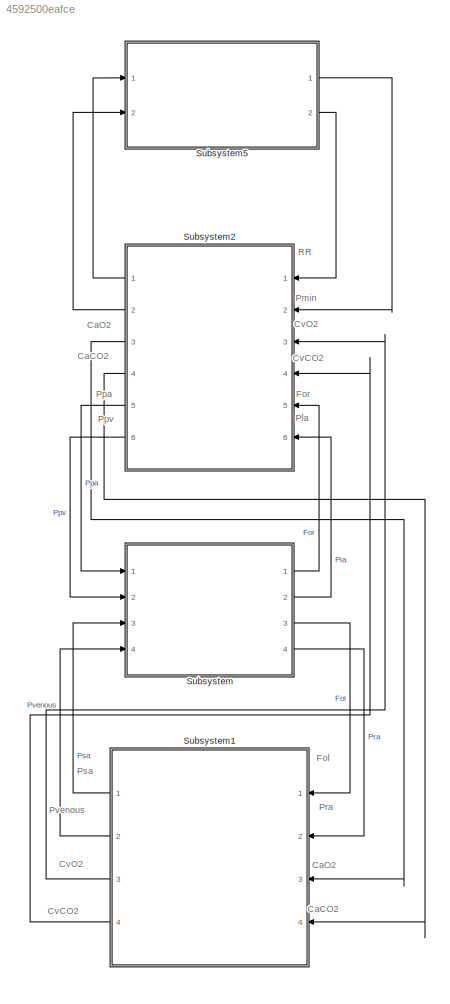
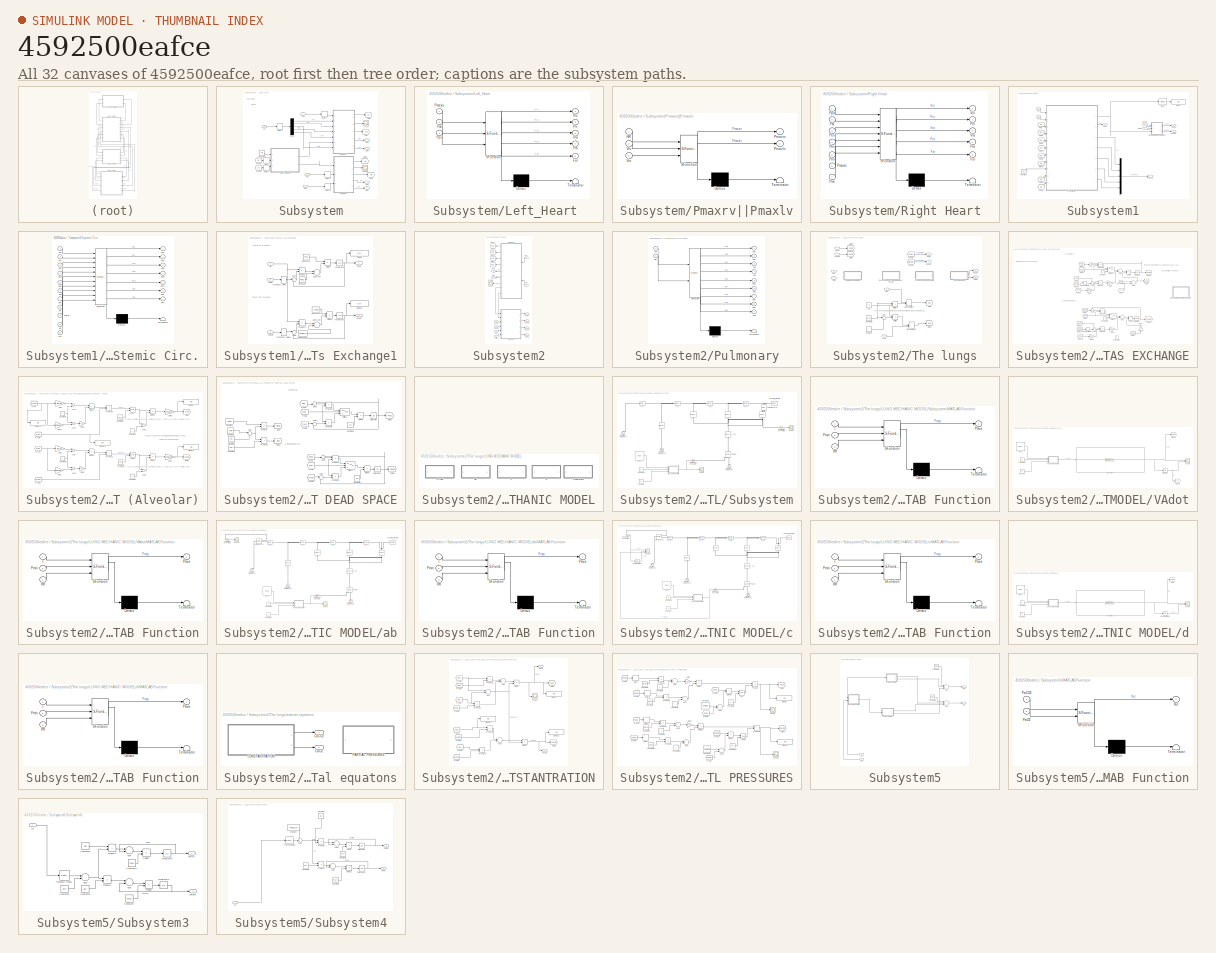
[diagram: thumbnail index - all 32 canvases of the model, root first then tree order]
MODEL slx_4592500eafce
KIND model
CONFIG AbsTol = auto
CONFIG EnableMultiTasking = off
CONFIG FixedStep = 0.01
CONFIG MaxStep = auto
CONFIG MinStep = auto
CONFIG RelTol = 1e-3
CONFIG SampleTimeConstraint = Unconstrained
CONFIG Solver = VariableStepAuto
CONFIG SolverName = VariableStepAuto
CONFIG StartTime = 0.0
CONFIG StopTime = 300
BLOCK [SubSystem] Subsystem
  Ports = [4, 4]
  RequestExecContextInheritance = off
BLOCK [Constant] Subsystem/Constant1
  Value = HR
BLOCK [Delay] Subsystem/Delay
  DelayLength = 1
  InputPortMap = u0
  Ports = [1, 1]
  SampleTime = Tsamp
BLOCK [Delay] Subsystem/Delay1
  DelayLength = 1
  InputPortMap = u0
  Ports = [1, 1]
  SampleTime = Tsamp
BLOCK [Delay] Subsystem/Delay2
  DelayLength = 1
  InputPortMap = u0
  Ports = [1, 1]
  SampleTime = Tsamp
BLOCK [Delay] Subsystem/Delay3
  DelayLength = 1
  InputPortMap = u0
  Ports = [1, 1]
  SampleTime = Tsamp
BLOCK [Delay] Subsystem/Delay4
  DelayLength = 1
  InputPortMap = u0
  Ports = [1, 1]
  SampleTime = Tsamp
BLOCK [Delay] Subsystem/Delay5
  DelayLength = 1
  InputPortMap = u0
  Ports = [1, 1]
  SampleTime = Tsamp
BLOCK [Demux] Subsystem/Demux
  DisplayOption = bar
  Outputs = 5
  Ports = [1, 5]
BLOCK [From] Subsystem/From6
  GotoTag = Vrv
  TagVisibility = global
BLOCK [From] Subsystem/From7
  GotoTag = Vlv
  TagVisibility = global
BLOCK [Goto] Subsystem/Goto
  GotoTag = Vrv
  TagVisibility = global
BLOCK [Goto] Subsystem/Goto1
  GotoTag = Vra
  TagVisibility = global
BLOCK [Goto] Subsystem/Goto2
  GotoTag = Vlv
  TagVisibility = global
BLOCK [Goto] Subsystem/Goto3
  GotoTag = Vla
  TagVisibility = global
BLOCK [Inport] Subsystem/In2
  IconDisplay = Port number
  Port = 4
BLOCK [Inport] Subsystem/In5
  IconDisplay = Port number
  Port = 2
BLOCK [SubSystem] Subsystem/Left_Heart 
  ErrorFcn = Stateflow.Translate.translate
  PermitHierarchicalResolution = ExplicitOnly
  Ports = [3, 5]
  RequestExecContextInheritance = off
  SFBlockType = MATLAB Function
  SystemSampleTime = Tsamp
  TreatAsAtomicUnit = on
BLOCK [Demux] Subsystem/Left_Heart / Demux 
  Outputs = 1
  Ports = [1, 1]
BLOCK [S-Function] Subsystem/Left_Heart / SFunction 
  EnableBusSupport = on
  FunctionName = sf_sfun
  Parameters = Cla,Rla,Rpv,Vula,Vulv,dt,kRlv
  PortCounts = [3 6]
  Ports = [3, 6]
  SFcnIsStateOwnerBlock = off
  SFunctionDeploymentMode = off
  Tag = Stateflow S-Function 2
BLOCK [Terminator] Subsystem/Left_Heart / Terminator 
BLOCK [Outport] Subsystem/Left_Heart /Fol
  IconDisplay = Port number
  Port = 5
BLOCK [Outport] Subsystem/Left_Heart /Pla
  IconDisplay = Port number
  Port = 4
BLOCK [Outport] Subsystem/Left_Heart /Plv
  IconDisplay = Port number
  Port = 2
BLOCK [Inport] Subsystem/Left_Heart /Pmaxlv
  IconDisplay = Port number
BLOCK [Inport] Subsystem/Left_Heart /Ppv
  IconDisplay = Port number
  Port = 3
BLOCK [Inport] Subsystem/Left_Heart /Psa
  IconDisplay = Port number
  Port = 2
BLOCK [Outport] Subsystem/Left_Heart /Vla
  IconDisplay = Port number
  Port = 3
BLOCK [Outport] Subsystem/Left_Heart /Vlv
  IconDisplay = Port number
BLOCK [Outport] Subsystem/Out1
  IconDisplay = Port number
  Port = 3
BLOCK [Outport] Subsystem/Out2
  IconDisplay = Port number
  Port = 4
BLOCK [Outport] Subsystem/Out3
  IconDisplay = Port number
BLOCK [Outport] Subsystem/Out4
  IconDisplay = Port number
  Port = 2
BLOCK [SubSystem] Subsystem/Pmaxrv||Pmaxlv
  ErrorFcn = Stateflow.Translate.translate
  PermitHierarchicalResolution = ExplicitOnly
  Ports = [3, 2]
  RequestExecContextInheritance = off
  SFBlockType = MATLAB Function
  SystemSampleTime = Tsamp
  TreatAsAtomicUnit = on
BLOCK [Demux] Subsystem/Pmaxrv||Pmaxlv/ Demux 
  Outputs = 1
  Ports = [1, 1]
BLOCK [S-Function] Subsystem/Pmaxrv||Pmaxlv/ SFunction 
  EnableBusSupport = on
  FunctionName = sf_sfun
  Parameters = Emaxlv,Emaxrv,P0lv,P0rv,Tsys0,Vulv,Vurv,dt,kElv,kErv,ksys
  PortCounts = [3 3]
  Ports = [3, 3]
  SFcnIsStateOwnerBlock = off
  SFunctionDeploymentMode = off
  Tag = Stateflow S-Function 3
BLOCK [Terminator] Subsystem/Pmaxrv||Pmaxlv/ Terminator 
BLOCK [Inport] Subsystem/Pmaxrv||Pmaxlv/HR
  IconDisplay = Port number
BLOCK [Outport] Subsystem/Pmaxrv||Pmaxlv/Pmaxlv
  IconDisplay = Port number
  Port = 2
BLOCK [Outport] Subsystem/Pmaxrv||Pmaxlv/Pmaxrv
  IconDisplay = Port number
BLOCK [Inport] Subsystem/Pmaxrv||Pmaxlv/Vlv
  IconDisplay = Port number
  Port = 2
BLOCK [Inport] Subsystem/Pmaxrv||Pmaxlv/Vrv
  IconDisplay = Port number
  Port = 3
BLOCK [Inport] Subsystem/Ppa
  IconDisplay = Port number
BLOCK [Scope] Subsystem/Prv
  Floating = off
  NumInputPorts = 1
  Ports = [1]
  ScopeSpecificationString = Simulink.scopes.TimeScopeBlockCfg('CurrentConfiguration', extmgr.ConfigurationSet(extmgr.Configuration('Core','General UI',true),extmgr.Configuration('Core','Source UI',true),extmgr.Configuration('Sources','WiredSimulink',true),extmgr.Configuration('Visuals','Time Domain',true,'SerializedDisplays',{struct('MinYLimReal','-3.51385','MaxYLimReal','0.39043','YLabelReal','','MinYLimMag','0.00000','MaxY...<+1387ch>
BLOCK [Inport] Subsystem/Psa
  IconDisplay = Port number
  Port = 3
BLOCK [SubSystem] Subsystem/Right Heart
  ErrorFcn = Stateflow.Translate.translate
  PermitHierarchicalResolution = ExplicitOnly
  Ports = [7, 5]
  RequestExecContextInheritance = off
  SFBlockType = MATLAB Function
  SystemSampleTime = Tsamp
  TreatAsAtomicUnit = on
BLOCK [Demux] Subsystem/Right Heart/ Demux 
  Outputs = 1
  Ports = [1, 1]
BLOCK [S-Function] Subsystem/Right Heart/ SFunction 
  EnableBusSupport = on
  FunctionName = sf_sfun
  Parameters = Cra,Rbv,Rev,Rhv,Rmv,Rra,Rsv,Vura,Vurv,dt,kRrv
  PortCounts = [7 6]
  Ports = [7, 6]
  SFcnIsStateOwnerBlock = off
  SFunctionDeploymentMode = off
  Tag = Stateflow S-Function 1
BLOCK [Terminator] Subsystem/Right Heart/ Terminator 
BLOCK [Outport] Subsystem/Right Heart/For
  IconDisplay = Port number
  Port = 5
BLOCK [Inport] Subsystem/Right Heart/Pbv
  IconDisplay = Port number
  Port = 4
BLOCK [Inport] Subsystem/Right Heart/Pev
  IconDisplay = Port number
  Port = 3
BLOCK [Inport] Subsystem/Right Heart/Phv
  IconDisplay = Port number
  Port = 5
BLOCK [Inport] Subsystem/Right Heart/Pmaxrv
  IconDisplay = Port number
  Port = 6
BLOCK [Inport] Subsystem/Right Heart/Pmv
  IconDisplay = Port number
  Port = 7
BLOCK [Inport] Subsystem/Right Heart/Ppa
  IconDisplay = Port number
BLOCK [Outport] Subsystem/Right Heart/Pra
  IconDisplay = Port number
  Port = 4
BLOCK [Outport] Subsystem/Right Heart/Prv
  IconDisplay = Port number
  Port = 2
BLOCK [Inport] Subsystem/Right Heart/Psv
  IconDisplay = Port number
  Port = 2
BLOCK [Outport] Subsystem/Right Heart/Vra
  IconDisplay = Port number
  Port = 3
BLOCK [Outport] Subsystem/Right Heart/Vrv
  IconDisplay = Port number
BLOCK [Scope] Subsystem/Scope
  Floating = off
  NumInputPorts = 1
  Ports = [1]
  ScopeSpecificationString = Simulink.scopes.TimeScopeBlockCfg('CurrentConfiguration', extmgr.ConfigurationSet(extmgr.Configuration('Core','General UI',true),extmgr.Configuration('Core','Source UI',true),extmgr.Configuration('Sources','WiredSimulink',true,'DataLoggingVariableName','ScopeData1'),extmgr.Configuration('Visuals','Time Domain',true,'SerializedDisplays',{struct('MinYLimReal','-13.7344','MaxYLimReal','123.60956','YL...<+1414ch>
BLOCK [SubSystem] Subsystem1
  Ports = [4, 4]
  RequestExecContextInheritance = off
BLOCK [Inport] Subsystem1/CaCO2
  IconDisplay = Port number
  Port = 4
BLOCK [Inport] Subsystem1/CaO2
  IconDisplay = Port number
  Port = 3
BLOCK [Constant] Subsystem1/Constant
  SampleTime = Tsamp
  Value = Vt0
  VectorParams1D = off
BLOCK [Outport] Subsystem1/CvCO2
  IconDisplay = Port number
  Port = 4
BLOCK [Outport] Subsystem1/CvO2
  IconDisplay = Port number
  Port = 3
BLOCK [Display] Subsystem1/Display
  Decimation = 1
  Ports = [1]
BLOCK [Inport] Subsystem1/Fol
  IconDisplay = Port number
BLOCK [From] Subsystem1/From
  GotoTag = Vrv
  TagVisibility = global
BLOCK [From] Subsystem1/From1
  GotoTag = Vlv
  TagVisibility = global
BLOCK [From] Subsystem1/From2
  GotoTag = Vpa
  TagVisibility = global
BLOCK [From] Subsystem1/From3
  GotoTag = Vpp
  TagVisibility = global
BLOCK [From] Subsystem1/From4
  GotoTag = Vps
  TagVisibility = global
BLOCK [From] Subsystem1/From5
  GotoTag = Vpv
  TagVisibility = global
BLOCK [From] Subsystem1/From8
  GotoTag = Vla
  TagVisibility = global
BLOCK [From] Subsystem1/From9
  GotoTag = Vra
  TagVisibility = global
BLOCK [Reference] Subsystem1/Mean  REF=powerlib_meascontrol/Measurements/Mean
  Ports = [1, 1]
  SourceBlock = powerlib_meascontrol/Measurements/Mean
  SourceProductBaseCode = PS
  SourceProductName = Simscape Electrical
  SourceType = Mean
BLOCK [Mux] Subsystem1/Mux
  DisplayOption = bar
  Inputs = 5
  Ports = [5, 1]
BLOCK [Inport] Subsystem1/Pra
  IconDisplay = Port number
  Port = 2
BLOCK [Outport] Subsystem1/Psa
  IconDisplay = Port number
BLOCK [Outport] Subsystem1/Pvenous
  IconDisplay = Port number
  Port = 2
BLOCK [SubSystem] Subsystem1/Systemic Circ.
  ErrorFcn = Stateflow.Translate.translate
  PermitHierarchicalResolution = ExplicitOnly
  Ports = [11, 7]
  RequestExecContextInheritance = off
  SFBlockType = MATLAB Function
  SystemSampleTime = Tsamp
  TreatAsAtomicUnit = on
BLOCK [Demux] Subsystem1/Systemic Circ./ Demux 
  Outputs = 1
  Ports = [1, 1]
BLOCK [S-Function] Subsystem1/Systemic Circ./ SFunction 
  EnableBusSupport = on
  FunctionName = sf_sfun
  Parameters = Cbp,Cbv,Cep,Cev,Chp,Chv,Cmp,Cmv,Csa,Csp,Csv,D1,D2,K1_tv,K2_tv,KR,Kxp,Kxv,Lsa,Rbp,Rbv,Rep,Rev,Rhp,Rhv,Rmp,Rmv,Rsa,Rsp,Rsv,Rtv0,Vtvmax,Vtvmin,Vubp,Vubv,Vuep,Vuev,Vuhp,Vuhv,Vump,Vumv,Vusa,Vusp,Vusv,Vutv,dt
  PortCounts = [11 8]
  Ports = [11, 8]
  SFcnIsStateOwnerBlock = off
  SFunctionDeploymentMode = off
  Tag = Stateflow S-Function 4
BLOCK [Terminator] Subsystem1/Systemic Circ./ Terminator 
BLOCK [Inport] Subsystem1/Systemic Circ./Fol
  IconDisplay = Port number
BLOCK [Outport] Subsystem1/Systemic Circ./Fsa
  IconDisplay = Port number
BLOCK [Outport] Subsystem1/Systemic Circ./Pbv
  IconDisplay = Port number
  Port = 6
BLOCK [Outport] Subsystem1/Systemic Circ./Pev
  IconDisplay = Port number
  Port = 4
BLOCK [Outport] Subsystem1/Systemic Circ./Phv
  IconDisplay = Port number
  Port = 7
BLOCK [Outport] Subsystem1/Systemic Circ./Pmv
  IconDisplay = Port number
  Port = 5
BLOCK [Inport] Subsystem1/Systemic Circ./Pra
  IconDisplay = Port number
  Port = 2
BLOCK [Outport] Subsystem1/Systemic Circ./Psa
  IconDisplay = Port number
  Port = 2
BLOCK [Outport] Subsystem1/Systemic Circ./Psv
  IconDisplay = Port number
  Port = 3
BLOCK [Inport] Subsystem1/Systemic Circ./Vla
  IconDisplay = Port number
  Port = 10
BLOCK [Inport] Subsystem1/Systemic Circ./Vlv
  IconDisplay = Port number
  Port = 8
BLOCK [Inport] Subsystem1/Systemic Circ./Vpa
  IconDisplay = Port number
  Port = 4
BLOCK [Inport] Subsystem1/Systemic Circ./Vpp
  IconDisplay = Port number
  Port = 5
BLOCK [Inport] Subsystem1/Systemic Circ./Vps
  IconDisplay = Port number
  Port = 6
BLOCK [Inport] Subsystem1/Systemic Circ./Vpv
  IconDisplay = Port number
  Port = 7
BLOCK [Inport] Subsystem1/Systemic Circ./Vra
  IconDisplay = Port number
  Port = 11
BLOCK [Inport] Subsystem1/Systemic Circ./Vrv
  IconDisplay = Port number
  Port = 3
BLOCK [Inport] Subsystem1/Systemic Circ./Vtotal
  IconDisplay = Port number
  Port = 9
BLOCK [SubSystem] Subsystem1/Tissue Gas Exchange1
  Ports = [3, 2]
  RequestExecContextInheritance = off
BLOCK [Inport] Subsystem1/Tissue Gas Exchange1/CaCO2
  IconDisplay = Port number
BLOCK [Inport] Subsystem1/Tissue Gas Exchange1/CaO2
  IconDisplay = Port number
  Port = 2
BLOCK [Constant] Subsystem1/Tissue Gas Exchange1/Constant
  Value = MRO2
BLOCK [Constant] Subsystem1/Tissue Gas Exchange1/Constant1
  Value = VTO2
BLOCK [Constant] Subsystem1/Tissue Gas Exchange1/Constant2
  Value = MRCO2
BLOCK [Constant] Subsystem1/Tissue Gas Exchange1/Constant3
  Value = VTCO2
BLOCK [Outport] Subsystem1/Tissue Gas Exchange1/CvCO2
  IconDisplay = Port number
  Port = 2
  VectorParamsAs1DForOutWhenUnconnected = off
BLOCK [Outport] Subsystem1/Tissue Gas Exchange1/CvO2
  IconDisplay = Port number
  VectorParamsAs1DForOutWhenUnconnected = off
BLOCK [Display] Subsystem1/Tissue Gas Exchange1/Display
  Decimation = 1
  Ports = [1]
BLOCK [Display] Subsystem1/Tissue Gas Exchange1/Display1
  Decimation = 1
  Ports = [1]
BLOCK [Product] Subsystem1/Tissue Gas Exchange1/Divide
  InputSameDT = off
  Inputs = /*
  OutDataTypeStr = Inherit: Inherit via internal rule
  Ports = [2, 1]
  RndMeth = Floor
  SaturateOnIntegerOverflow = off
BLOCK [Product] Subsystem1/Tissue Gas Exchange1/Divide1
  InputSameDT = off
  Inputs = /*
  OutDataTypeStr = Inherit: Inherit via internal rule
  Ports = [2, 1]
  RndMeth = Floor
  SaturateOnIntegerOverflow = off
BLOCK [Inport] Subsystem1/Tissue Gas Exchange1/Fs
  IconDisplay = Port number
  Port = 3
BLOCK [Integrator] Subsystem1/Tissue Gas Exchange1/Integrator
  InitialCondition = CvO2_IC
  Ports = [1, 1]
BLOCK [Integrator] Subsystem1/Tissue Gas Exchange1/Integrator1
  InitialCondition = CvCO2_IC
  Ports = [1, 1]
BLOCK [Product] Subsystem1/Tissue Gas Exchange1/Product
  InputSameDT = off
  OutDataTypeStr = Inherit: Inherit via internal rule
  Ports = [2, 1]
  RndMeth = Floor
  SaturateOnIntegerOverflow = off
BLOCK [Product] Subsystem1/Tissue Gas Exchange1/Product1
  InputSameDT = off
  OutDataTypeStr = Inherit: Inherit via internal rule
  Ports = [2, 1]
  RndMeth = Floor
  SaturateOnIntegerOverflow = off
BLOCK [Sum] Subsystem1/Tissue Gas Exchange1/Subtract
  InputSameDT = off
  Inputs = +-
  OutDataTypeStr = Inherit: Inherit via internal rule
  Ports = [2, 1]
  SaturateOnIntegerOverflow = off
BLOCK [Sum] Subsystem1/Tissue Gas Exchange1/Subtract2
  InputSameDT = off
  OutDataTypeStr = Inherit: Inherit via internal rule
  Ports = [2, 1]
  SaturateOnIntegerOverflow = off
BLOCK [Sum] Subsystem1/Tissue Gas Exchange1/Sum
  IconShape = round
  InputSameDT = off
  Inputs = |+-
  OutDataTypeStr = Inherit: Inherit via internal rule
  Ports = [2, 1]
  SaturateOnIntegerOverflow = off
BLOCK [Sum] Subsystem1/Tissue Gas Exchange1/Sum1
  IconShape = round
  InputSameDT = off
  Inputs = |+-
  OutDataTypeStr = Inherit: Inherit via internal rule
  Ports = [2, 1]
  SaturateOnIntegerOverflow = off
BLOCK [TransportDelay] Subsystem1/Tissue Gas Exchange1/Transport Delay
  DelayTime = Tau_LT
  InitialOutput = CaO2_IC
  Ports = [1, 1]
BLOCK [TransportDelay] Subsystem1/Tissue Gas Exchange1/Transport Delay1
  DelayTime = Tau_LT
  InitialOutput = CaCO2_IC
  Ports = [1, 1]
BLOCK [SubSystem] Subsystem2
  Ports = [6, 6]
  RequestExecContextInheritance = off
BLOCK [Outport] Subsystem2/CaCO2
  IconDisplay = Port number
  Port = 4
BLOCK [Outport] Subsystem2/CaO2
  IconDisplay = Port number
  Port = 3
BLOCK [Inport] Subsystem2/CvCO2
  IconDisplay = Port number
  Port = 4
BLOCK [Inport] Subsystem2/CvO2
  IconDisplay = Port number
  Port = 3
BLOCK [Inport] Subsystem2/For
  IconDisplay = Port number
  Port = 5
BLOCK [Goto] Subsystem2/Goto4
  GotoTag = Vpa
  TagVisibility = global
BLOCK [Goto] Subsystem2/Goto5
  GotoTag = Vpp
  TagVisibility = global
BLOCK [Goto] Subsystem2/Goto6
  GotoTag = Vps
  TagVisibility = global
BLOCK [Goto] Subsystem2/Goto7
  GotoTag = Vpv
  TagVisibility = global
BLOCK [Outport] Subsystem2/PaCO2
  IconDisplay = Port number
BLOCK [Outport] Subsystem2/PaO2
  IconDisplay = Port number
  Port = 2
BLOCK [Inport] Subsystem2/Pla
  IconDisplay = Port number
  Port = 6
BLOCK [Inport] Subsystem2/Pmin
  IconDisplay = Port number
  Port = 2
BLOCK [Outport] Subsystem2/Ppa
  IconDisplay = Port number
  Port = 5
BLOCK [Outport] Subsystem2/Ppv
  IconDisplay = Port number
  Port = 6
BLOCK [SubSystem] Subsystem2/Pulmonary
  ErrorFcn = Stateflow.Translate.translate
  PermitHierarchicalResolution = ExplicitOnly
  Ports = [2, 9]
  RequestExecContextInheritance = off
  SFBlockType = MATLAB Function
  SystemSampleTime = Tsamp
  TreatAsAtomicUnit = on
BLOCK [Demux] Subsystem2/Pulmonary/ Demux 
  Outputs = 1
  Ports = [1, 1]
BLOCK [S-Function] Subsystem2/Pulmonary/ SFunction 
  EnableBusSupport = on
  FunctionName = sf_sfun
  Parameters = Cpa,Cpp,Cps,Cpv,Lpa,Rpa,Rpp,Rps,Rpv,Vupa,Vupp,Vups,Vupv,dt
  PortCounts = [2 10]
  Ports = [2, 10]
  SFcnIsStateOwnerBlock = off
  SFunctionDeploymentMode = off
  Tag = Stateflow S-Function 5
BLOCK [Terminator] Subsystem2/Pulmonary/ Terminator 
BLOCK [Inport] Subsystem2/Pulmonary/For
  IconDisplay = Port number
BLOCK [Outport] Subsystem2/Pulmonary/Fpa
  IconDisplay = Port number
  Port = 7
BLOCK [Outport] Subsystem2/Pulmonary/Fpp
  IconDisplay = Port number
  Port = 8
BLOCK [Outport] Subsystem2/Pulmonary/Fps
  IconDisplay = Port number
  Port = 9
BLOCK [Inport] Subsystem2/Pulmonary/Pla
  IconDisplay = Port number
  Port = 2
BLOCK [Outport] Subsystem2/Pulmonary/Ppa
  IconDisplay = Port number
  Port = 5
BLOCK [Outport] Subsystem2/Pulmonary/Ppv
  IconDisplay = Port number
  Port = 6
BLOCK [Outport] Subsystem2/Pulmonary/Vpa
  IconDisplay = Port number
BLOCK [Outport] Subsystem2/Pulmonary/Vpp
  IconDisplay = Port number
  Port = 2
BLOCK [Outport] Subsystem2/Pulmonary/Vps
  IconDisplay = Port number
  Port = 3
BLOCK [Outport] Subsystem2/Pulmonary/Vpv
  IconDisplay = Port number
  Port = 4
BLOCK [Inport] Subsystem2/RR
  IconDisplay = Port number
BLOCK [Scope] Subsystem2/Scope
  Floating = off
  NumInputPorts = 1
  Ports = [1]
  ScopeSpecificationString = Simulink.scopes.TimeScopeBlockCfg('CurrentConfiguration', extmgr.ConfigurationSet(extmgr.Configuration('Core','General UI',true),extmgr.Configuration('Core','Source UI',true),extmgr.Configuration('Sources','WiredSimulink',true,'DataLoggingVariableName','ScopeData1'),extmgr.Configuration('Visuals','Time Domain',true),extmgr.Configuration('Tools','Plot Navigation',true),extmgr.Configuration('Tools',...<+40ch>
BLOCK [SubSystem] Subsystem2/The lungs
  Ports = [6, 4]
  RequestExecContextInheritance = off
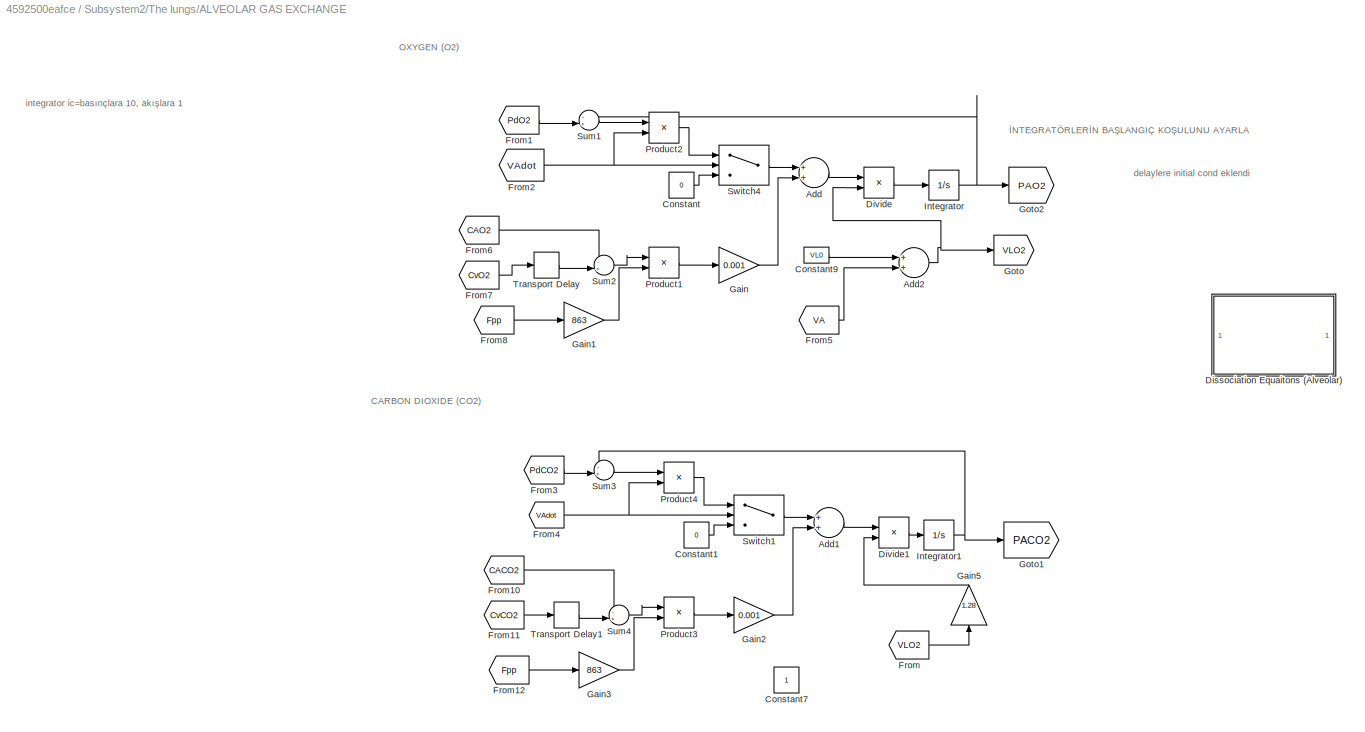
BLOCK [SubSystem] Subsystem2/The lungs/ALVEOLAR GAS EXCHANGE
  Ports = []
  RequestExecContextInheritance = off
BLOCK [Sum] Subsystem2/The lungs/ALVEOLAR GAS EXCHANGE/Add
  InputSameDT = off
  OutDataTypeStr = Inherit: Inherit via internal rule
  Ports = [2, 1]
  SaturateOnIntegerOverflow = off
BLOCK [Sum] Subsystem2/The lungs/ALVEOLAR GAS EXCHANGE/Add1
  InputSameDT = off
  OutDataTypeStr = Inherit: Inherit via internal rule
  Ports = [2, 1]
  SaturateOnIntegerOverflow = off
BLOCK [Sum] Subsystem2/The lungs/ALVEOLAR GAS EXCHANGE/Add2
  InputSameDT = off
  OutDataTypeStr = Inherit: Inherit via internal rule
  Ports = [2, 1]
  SaturateOnIntegerOverflow = off
BLOCK [Constant] Subsystem2/The lungs/ALVEOLAR GAS EXCHANGE/Constant
  Value = 0
BLOCK [Constant] Subsystem2/The lungs/ALVEOLAR GAS EXCHANGE/Constant1
  Value = 0
BLOCK [Constant] Subsystem2/The lungs/ALVEOLAR GAS EXCHANGE/Constant7
BLOCK [Constant] Subsystem2/The lungs/ALVEOLAR GAS EXCHANGE/Constant9
  Value = VL0
BLOCK [SubSystem] Subsystem2/The lungs/ALVEOLAR GAS EXCHANGE/Dissociation Equaitons (Alveolar)
  Ports = []
  RequestExecContextInheritance = off
BLOCK [Sum] Subsystem2/The lungs/ALVEOLAR GAS EXCHANGE/Dissociation Equaitons (Alveolar)/Add1
  InputSameDT = off
  OutDataTypeStr = Inherit: Inherit via internal rule
  Ports = [2, 1]
  SaturateOnIntegerOverflow = off
BLOCK [Sum] Subsystem2/The lungs/ALVEOLAR GAS EXCHANGE/Dissociation Equaitons (Alveolar)/Add2
  InputSameDT = off
  OutDataTypeStr = Inherit: Inherit via internal rule
  Ports = [2, 1]
  SaturateOnIntegerOverflow = off
BLOCK [Sum] Subsystem2/The lungs/ALVEOLAR GAS EXCHANGE/Dissociation Equaitons (Alveolar)/Add3
  InputSameDT = off
  OutDataTypeStr = Inherit: Inherit via internal rule
  Ports = [2, 1]
  SaturateOnIntegerOverflow = off
BLOCK [Sum] Subsystem2/The lungs/ALVEOLAR GAS EXCHANGE/Dissociation Equaitons (Alveolar)/Add4
  InputSameDT = off
  OutDataTypeStr = Inherit: Inherit via internal rule
  Ports = [2, 1]
  SaturateOnIntegerOverflow = off
BLOCK [Sum] Subsystem2/The lungs/ALVEOLAR GAS EXCHANGE/Dissociation Equaitons (Alveolar)/Add5
  InputSameDT = off
  OutDataTypeStr = Inherit: Inherit via internal rule
  Ports = [2, 1]
  SaturateOnIntegerOverflow = off
BLOCK [Sum] Subsystem2/The lungs/ALVEOLAR GAS EXCHANGE/Dissociation Equaitons (Alveolar)/Add6
  InputSameDT = off
  OutDataTypeStr = Inherit: Inherit via internal rule
  Ports = [2, 1]
  SaturateOnIntegerOverflow = off
BLOCK [Constant] Subsystem2/The lungs/ALVEOLAR GAS EXCHANGE/Dissociation Equaitons (Alveolar)/Constant1
BLOCK [Constant] Subsystem2/The lungs/ALVEOLAR GAS EXCHANGE/Dissociation Equaitons (Alveolar)/Constant2
  Value = 1/h1
BLOCK [Constant] Subsystem2/The lungs/ALVEOLAR GAS EXCHANGE/Dissociation Equaitons (Alveolar)/Constant3
BLOCK [Constant] Subsystem2/The lungs/ALVEOLAR GAS EXCHANGE/Dissociation Equaitons (Alveolar)/Constant4
BLOCK [Constant] Subsystem2/The lungs/ALVEOLAR GAS EXCHANGE/Dissociation Equaitons (Alveolar)/Constant5
  Value = 1/h2
BLOCK [Constant] Subsystem2/The lungs/ALVEOLAR GAS EXCHANGE/Dissociation Equaitons (Alveolar)/Constant6
BLOCK [Display] Subsystem2/The lungs/ALVEOLAR GAS EXCHANGE/Dissociation Equaitons (Alveolar)/Display
  Decimation = 1
  Ports = [1]
BLOCK [Display] Subsystem2/The lungs/ALVEOLAR GAS EXCHANGE/Dissociation Equaitons (Alveolar)/Display1
  Decimation = 1
  Ports = [1]
BLOCK [Display] Subsystem2/The lungs/ALVEOLAR GAS EXCHANGE/Dissociation Equaitons (Alveolar)/Display2
  Decimation = 1
  Ports = [1]
BLOCK [Display] Subsystem2/The lungs/ALVEOLAR GAS EXCHANGE/Dissociation Equaitons (Alveolar)/Display3
  Decimation = 1
  Ports = [1]
BLOCK [Product] Subsystem2/The lungs/ALVEOLAR GAS EXCHANGE/Dissociation Equaitons (Alveolar)/Divide1
  InputSameDT = off
  Inputs = */
  OutDataTypeStr = Inherit: Inherit via internal rule
  Ports = [2, 1]
  RndMeth = Floor
  SaturateOnIntegerOverflow = off
BLOCK [Product] Subsystem2/The lungs/ALVEOLAR GAS EXCHANGE/Dissociation Equaitons (Alveolar)/Divide2
  InputSameDT = off
  Inputs = */
  OutDataTypeStr = Inherit: Inherit via internal rule
  Ports = [2, 1]
  RndMeth = Floor
  SaturateOnIntegerOverflow = off
BLOCK [Product] Subsystem2/The lungs/ALVEOLAR GAS EXCHANGE/Dissociation Equaitons (Alveolar)/Divide3
  InputSameDT = off
  Inputs = */
  OutDataTypeStr = Inherit: Inherit via internal rule
  Ports = [2, 1]
  RndMeth = Floor
  SaturateOnIntegerOverflow = off
BLOCK [Product] Subsystem2/The lungs/ALVEOLAR GAS EXCHANGE/Dissociation Equaitons (Alveolar)/Divide4
  InputSameDT = off
  Inputs = */
  OutDataTypeStr = Inherit: Inherit via internal rule
  Ports = [2, 1]
  RndMeth = Floor
  SaturateOnIntegerOverflow = off
BLOCK [From] Subsystem2/The lungs/ALVEOLAR GAS EXCHANGE/Dissociation Equaitons (Alveolar)/From
  GotoTag = PACO2
  TagVisibility = global
BLOCK [From] Subsystem2/The lungs/ALVEOLAR GAS EXCHANGE/Dissociation Equaitons (Alveolar)/From1
  GotoTag = PAO2
  TagVisibility = global
BLOCK [From] Subsystem2/The lungs/ALVEOLAR GAS EXCHANGE/Dissociation Equaitons (Alveolar)/From3
  GotoTag = PACO2
  TagVisibility = global
BLOCK [From] Subsystem2/The lungs/ALVEOLAR GAS EXCHANGE/Dissociation Equaitons (Alveolar)/From4
  GotoTag = PAO2
  TagVisibility = global
BLOCK [Gain] Subsystem2/The lungs/ALVEOLAR GAS EXCHANGE/Dissociation Equaitons (Alveolar)/Gain
  Gain = beta1
  OutDataTypeStr = Inherit: Inherit via internal rule
  ParamDataTypeStr = Inherit: Inherit via internal rule
  SaturateOnIntegerOverflow = off
BLOCK [Gain] Subsystem2/The lungs/ALVEOLAR GAS EXCHANGE/Dissociation Equaitons (Alveolar)/Gain1
  Gain = beta2
  OutDataTypeStr = Inherit: Inherit via internal rule
  ParamDataTypeStr = Inherit: Inherit via internal rule
  SaturateOnIntegerOverflow = off
BLOCK [Gain] Subsystem2/The lungs/ALVEOLAR GAS EXCHANGE/Dissociation Equaitons (Alveolar)/Gain2
  Gain = K2
  OutDataTypeStr = Inherit: Inherit via internal rule
  ParamDataTypeStr = Inherit: Inherit via internal rule
  SaturateOnIntegerOverflow = off
BLOCK [Gain] Subsystem2/The lungs/ALVEOLAR GAS EXCHANGE/Dissociation Equaitons (Alveolar)/Gain3
  Gain = K1
  OutDataTypeStr = Inherit: Inherit via internal rule
  ParamDataTypeStr = Inherit: Inherit via internal rule
  SaturateOnIntegerOverflow = off
BLOCK [Gain] Subsystem2/The lungs/ALVEOLAR GAS EXCHANGE/Dissociation Equaitons (Alveolar)/Gain4
  Gain = alpha1
  OutDataTypeStr = Inherit: Inherit via internal rule
  ParamDataTypeStr = Inherit: Inherit via internal rule
  SaturateOnIntegerOverflow = off
BLOCK [Gain] Subsystem2/The lungs/ALVEOLAR GAS EXCHANGE/Dissociation Equaitons (Alveolar)/Gain5
  Gain = CsatO2
  OutDataTypeStr = Inherit: Inherit via internal rule
  ParamDataTypeStr = Inherit: Inherit via internal rule
  SaturateOnIntegerOverflow = off
BLOCK [Gain] Subsystem2/The lungs/ALVEOLAR GAS EXCHANGE/Dissociation Equaitons (Alveolar)/Gain6
  Gain = alpha2
  OutDataTypeStr = Inherit: Inherit via internal rule
  ParamDataTypeStr = Inherit: Inherit via internal rule
  SaturateOnIntegerOverflow = off
BLOCK [Gain] Subsystem2/The lungs/ALVEOLAR GAS EXCHANGE/Dissociation Equaitons (Alveolar)/Gain7
  Gain = CsatCO2
  OutDataTypeStr = Inherit: Inherit via internal rule
  ParamDataTypeStr = Inherit: Inherit via internal rule
  SaturateOnIntegerOverflow = off
BLOCK [Goto] Subsystem2/The lungs/ALVEOLAR GAS EXCHANGE/Dissociation Equaitons (Alveolar)/Goto
  GotoTag = CAO2
  TagVisibility = global
BLOCK [Goto] Subsystem2/The lungs/ALVEOLAR GAS EXCHANGE/Dissociation Equaitons (Alveolar)/Goto1
  GotoTag = CACO2
  TagVisibility = global
BLOCK [Math] Subsystem2/The lungs/ALVEOLAR GAS EXCHANGE/Dissociation Equaitons (Alveolar)/Pow
  Operator = pow
  Ports = [2, 1]
  RndMeth = Zero
BLOCK [Math] Subsystem2/The lungs/ALVEOLAR GAS EXCHANGE/Dissociation Equaitons (Alveolar)/Pow1
  Operator = pow
  Ports = [2, 1]
  RndMeth = Zero
BLOCK [Product] Subsystem2/The lungs/ALVEOLAR GAS EXCHANGE/Dissociation Equaitons (Alveolar)/Product1
  InputSameDT = off
  OutDataTypeStr = Inherit: Inherit via internal rule
  Ports = [2, 1]
  RndMeth = Floor
  SaturateOnIntegerOverflow = off
BLOCK [Product] Subsystem2/The lungs/ALVEOLAR GAS EXCHANGE/Dissociation Equaitons (Alveolar)/Product3
  InputSameDT = off
  OutDataTypeStr = Inherit: Inherit via internal rule
  Ports = [2, 1]
  RndMeth = Floor
  SaturateOnIntegerOverflow = off
BLOCK [Product] Subsystem2/The lungs/ALVEOLAR GAS EXCHANGE/Divide
  InputSameDT = off
  Inputs = */
  OutDataTypeStr = Inherit: Inherit via internal rule
  Ports = [2, 1]
  RndMeth = Floor
  SaturateOnIntegerOverflow = off
BLOCK [Product] Subsystem2/The lungs/ALVEOLAR GAS EXCHANGE/Divide1
  InputSameDT = off
  Inputs = */
  OutDataTypeStr = Inherit: Inherit via internal rule
  Ports = [2, 1]
  RndMeth = Floor
  SaturateOnIntegerOverflow = off
BLOCK [From] Subsystem2/The lungs/ALVEOLAR GAS EXCHANGE/From
  GotoTag = VLO2
  TagVisibility = global
BLOCK [From] Subsystem2/The lungs/ALVEOLAR GAS EXCHANGE/From1
  GotoTag = PdO2
  TagVisibility = global
BLOCK [From] Subsystem2/The lungs/ALVEOLAR GAS EXCHANGE/From10
  GotoTag = CACO2
  TagVisibility = global
BLOCK [From] Subsystem2/The lungs/ALVEOLAR GAS EXCHANGE/From11
  GotoTag = CvCO2
  TagVisibility = global
BLOCK [From] Subsystem2/The lungs/ALVEOLAR GAS EXCHANGE/From12
  GotoTag = Fpp
  TagVisibility = global
BLOCK [From] Subsystem2/The lungs/ALVEOLAR GAS EXCHANGE/From2
  GotoTag = VAdot
  TagVisibility = global
BLOCK [From] Subsystem2/The lungs/ALVEOLAR GAS EXCHANGE/From3
  GotoTag = PdCO2
  TagVisibility = global
BLOCK [From] Subsystem2/The lungs/ALVEOLAR GAS EXCHANGE/From4
  GotoTag = VAdot
  TagVisibility = global
BLOCK [From] Subsystem2/The lungs/ALVEOLAR GAS EXCHANGE/From5
  GotoTag = VA
  TagVisibility = global
BLOCK [From] Subsystem2/The lungs/ALVEOLAR GAS EXCHANGE/From6
  GotoTag = CAO2
  TagVisibility = global
BLOCK [From] Subsystem2/The lungs/ALVEOLAR GAS EXCHANGE/From7
  GotoTag = CvO2
  TagVisibility = global
BLOCK [From] Subsystem2/The lungs/ALVEOLAR GAS EXCHANGE/From8
  GotoTag = Fpp
  TagVisibility = global
BLOCK [Gain] Subsystem2/The lungs/ALVEOLAR GAS EXCHANGE/Gain
  Gain = 0.001
  OutDataTypeStr = Inherit: Inherit via internal rule
  ParamDataTypeStr = Inherit: Inherit via internal rule
  SaturateOnIntegerOverflow = off
BLOCK [Gain] Subsystem2/The lungs/ALVEOLAR GAS EXCHANGE/Gain1
  Gain = 863
  OutDataTypeStr = Inherit: Inherit via internal rule
  ParamDataTypeStr = Inherit: Inherit via internal rule
  SaturateOnIntegerOverflow = off
BLOCK [Gain] Subsystem2/The lungs/ALVEOLAR GAS EXCHANGE/Gain2
  Gain = 0.001
  OutDataTypeStr = Inherit: Inherit via internal rule
  ParamDataTypeStr = Inherit: Inherit via internal rule
  SaturateOnIntegerOverflow = off
BLOCK [Gain] Subsystem2/The lungs/ALVEOLAR GAS EXCHANGE/Gain3
  Gain = 863
  OutDataTypeStr = Inherit: Inherit via internal rule
  ParamDataTypeStr = Inherit: Inherit via internal rule
  SaturateOnIntegerOverflow = off
BLOCK [Gain] Subsystem2/The lungs/ALVEOLAR GAS EXCHANGE/Gain5
  Gain = 1.28
  OutDataTypeStr = Inherit: Inherit via internal rule
  ParamDataTypeStr = Inherit: Inherit via internal rule
  SaturateOnIntegerOverflow = off
BLOCK [Goto] Subsystem2/The lungs/ALVEOLAR GAS EXCHANGE/Goto
  GotoTag = VLO2
  TagVisibility = global
BLOCK [Goto] Subsystem2/The lungs/ALVEOLAR GAS EXCHANGE/Goto1
  GotoTag = PACO2
  TagVisibility = global
BLOCK [Goto] Subsystem2/The lungs/ALVEOLAR GAS EXCHANGE/Goto2
  AttributesFormatString = %<TagVisibility>
  GotoTag = PAO2
  TagVisibility = global
BLOCK [Integrator] Subsystem2/The lungs/ALVEOLAR GAS EXCHANGE/Integrator
  InitialCondition = 10
  Ports = [1, 1]
BLOCK [Integrator] Subsystem2/The lungs/ALVEOLAR GAS EXCHANGE/Integrator1
  InitialCondition = 10
  Ports = [1, 1]
BLOCK [Product] Subsystem2/The lungs/ALVEOLAR GAS EXCHANGE/Product1
  InputSameDT = off
  OutDataTypeStr = Inherit: Inherit via internal rule
  Ports = [2, 1]
  RndMeth = Floor
  SaturateOnIntegerOverflow = off
BLOCK [Product] Subsystem2/The lungs/ALVEOLAR GAS EXCHANGE/Product2
  InputSameDT = off
  OutDataTypeStr = Inherit: Inherit via internal rule
  Ports = [2, 1]
  RndMeth = Floor
  SaturateOnIntegerOverflow = off
BLOCK [Product] Subsystem2/The lungs/ALVEOLAR GAS EXCHANGE/Product3
  InputSameDT = off
  OutDataTypeStr = Inherit: Inherit via internal rule
  Ports = [2, 1]
  RndMeth = Floor
  SaturateOnIntegerOverflow = off
BLOCK [Product] Subsystem2/The lungs/ALVEOLAR GAS EXCHANGE/Product4
  InputSameDT = off
  OutDataTypeStr = Inherit: Inherit via internal rule
  Ports = [2, 1]
  RndMeth = Floor
  SaturateOnIntegerOverflow = off
BLOCK [Sum] Subsystem2/The lungs/ALVEOLAR GAS EXCHANGE/Sum1
  IconShape = round
  InputSameDT = off
  Inputs = -+|
  OutDataTypeStr = Inherit: Inherit via internal rule
  Ports = [2, 1]
  SaturateOnIntegerOverflow = off
BLOCK [Sum] Subsystem2/The lungs/ALVEOLAR GAS EXCHANGE/Sum2
  IconShape = round
  InputSameDT = off
  Inputs = -+|
  OutDataTypeStr = Inherit: Inherit via internal rule
  Ports = [2, 1]
  SaturateOnIntegerOverflow = off
BLOCK [Sum] Subsystem2/The lungs/ALVEOLAR GAS EXCHANGE/Sum3
  IconShape = round
  InputSameDT = off
  Inputs = -+|
  OutDataTypeStr = Inherit: Inherit via internal rule
  Ports = [2, 1]
  SaturateOnIntegerOverflow = off
BLOCK [Sum] Subsystem2/The lungs/ALVEOLAR GAS EXCHANGE/Sum4
  IconShape = round
  InputSameDT = off
  Inputs = -+|
  OutDataTypeStr = Inherit: Inherit via internal rule
  Ports = [2, 1]
  SaturateOnIntegerOverflow = off
BLOCK [Switch] Subsystem2/The lungs/ALVEOLAR GAS EXCHANGE/Switch1
  Criteria = u2 > Threshold
  InputSameDT = off
  SaturateOnIntegerOverflow = off
BLOCK [Switch] Subsystem2/The lungs/ALVEOLAR GAS EXCHANGE/Switch4
  Criteria = u2 > Threshold
  InputSameDT = off
  SaturateOnIntegerOverflow = off
BLOCK [TransportDelay] Subsystem2/The lungs/ALVEOLAR GAS EXCHANGE/Transport Delay
  DelayTime = Tau_TL
  InitialOutput = CvO2_IC
  Ports = [1, 1]
BLOCK [TransportDelay] Subsystem2/The lungs/ALVEOLAR GAS EXCHANGE/Transport Delay1
  DelayTime = Tau_TL
  InitialOutput = CvCO2_IC
  Ports = [1, 1]
BLOCK [Outport] Subsystem2/The lungs/CaCO2
  IconDisplay = Port number
  Port = 3
BLOCK [Outport] Subsystem2/The lungs/CaO2
  IconDisplay = Port number
  Port = 4
BLOCK [Constant] Subsystem2/The lungs/Constant
BLOCK [Constant] Subsystem2/The lungs/Constant1
  Value = shunt
BLOCK [Inport] Subsystem2/The lungs/CvCO2
  IconDisplay = Port number
  Port = 4
BLOCK [Inport] Subsystem2/The lungs/CvO2
  IconDisplay = Port number
  Port = 3
BLOCK [Constant] Subsystem2/The lungs/Fp
  Value = 75
BLOCK [Inport] Subsystem2/The lungs/Fpp
  IconDisplay = Port number
BLOCK [Inport] Subsystem2/The lungs/Fps
  IconDisplay = Port number
  Port = 2
BLOCK [From] Subsystem2/The lungs/From2
  GotoTag = PaO2
  TagVisibility = global
BLOCK [From] Subsystem2/The lungs/From3
  GotoTag = PaCO2
  TagVisibility = global
BLOCK [SubSystem] Subsystem2/The lungs/GAS TRANSPORT THROUGH DEAD SPACE
  Ports = []
  RequestExecContextInheritance = off
BLOCK [Constant] Subsystem2/The lungs/GAS TRANSPORT THROUGH DEAD SPACE/Constant
  Value = FICO2
BLOCK [Constant] Subsystem2/The lungs/GAS TRANSPORT THROUGH DEAD SPACE/Constant1
  Value = Patm
BLOCK [Constant] Subsystem2/The lungs/GAS TRANSPORT THROUGH DEAD SPACE/Constant2
  Value = Pws
BLOCK [Constant] Subsystem2/The lungs/GAS TRANSPORT THROUGH DEAD SPACE/Constant3
  Value = FIO2
BLOCK [Constant] Subsystem2/The lungs/GAS TRANSPORT THROUGH DEAD SPACE/Constant4
  Value = VD
BLOCK [Constant] Subsystem2/The lungs/GAS TRANSPORT THROUGH DEAD SPACE/Constant5
  Value = VD
BLOCK [Product] Subsystem2/The lungs/GAS TRANSPORT THROUGH DEAD SPACE/Divide
  InputSameDT = off
  Inputs = */
  OutDataTypeStr = Inherit: Inherit via internal rule
  Ports = [2, 1]
  RndMeth = Floor
  SaturateOnIntegerOverflow = off
BLOCK [Product] Subsystem2/The lungs/GAS TRANSPORT THROUGH DEAD SPACE/Divide1
  InputSameDT = off
  Inputs = */
  OutDataTypeStr = Inherit: Inherit via internal rule
  Ports = [2, 1]
  RndMeth = Floor
  SaturateOnIntegerOverflow = off
BLOCK [From] Subsystem2/The lungs/GAS TRANSPORT THROUGH DEAD SPACE/From
  GotoTag = PICO2
  TagVisibility = global
BLOCK [From] Subsystem2/The lungs/GAS TRANSPORT THROUGH DEAD SPACE/From1
  GotoTag = PIO2
  TagVisibility = global
BLOCK [From] Subsystem2/The lungs/GAS TRANSPORT THROUGH DEAD SPACE/From2
  GotoTag = Vdot
  TagVisibility = global
BLOCK [From] Subsystem2/The lungs/GAS TRANSPORT THROUGH DEAD SPACE/From3
  GotoTag = PACO2
  TagVisibility = global
BLOCK [From] Subsystem2/The lungs/GAS TRANSPORT THROUGH DEAD SPACE/From4
  GotoTag = Vdot
  TagVisibility = global
BLOCK [From] Subsystem2/The lungs/GAS TRANSPORT THROUGH DEAD SPACE/From5
  GotoTag = PAO2
  TagVisibility = global
BLOCK [Goto] Subsystem2/The lungs/GAS TRANSPORT THROUGH DEAD SPACE/Goto
  GotoTag = PICO2
  TagVisibility = global
BLOCK [Goto] Subsystem2/The lungs/GAS TRANSPORT THROUGH DEAD SPACE/Goto1
  GotoTag = PIO2
  TagVisibility = global
BLOCK [Goto] Subsystem2/The lungs/GAS TRANSPORT THROUGH DEAD SPACE/Goto2
  GotoTag = PdO2
  TagVisibility = global
BLOCK [Goto] Subsystem2/The lungs/GAS TRANSPORT THROUGH DEAD SPACE/Goto3
  GotoTag = PdCO2
  TagVisibility = global
BLOCK [Integrator] Subsystem2/The lungs/GAS TRANSPORT THROUGH DEAD SPACE/Integrator
  InitialCondition = PdO2_IC
  Ports = [1, 1]
BLOCK [Integrator] Subsystem2/The lungs/GAS TRANSPORT THROUGH DEAD SPACE/Integrator1
  InitialCondition = PdCO2_IC
  Ports = [1, 1]
BLOCK [Product] Subsystem2/The lungs/GAS TRANSPORT THROUGH DEAD SPACE/Product
  InputSameDT = off
  OutDataTypeStr = Inherit: Inherit via internal rule
  Ports = [2, 1]
  RndMeth = Floor
  SaturateOnIntegerOverflow = off
BLOCK [Product] Subsystem2/The lungs/GAS TRANSPORT THROUGH DEAD SPACE/Product1
  InputSameDT = off
  OutDataTypeStr = Inherit: Inherit via internal rule
  Ports = [2, 1]
  RndMeth = Floor
  SaturateOnIntegerOverflow = off
BLOCK [Product] Subsystem2/The lungs/GAS TRANSPORT THROUGH DEAD SPACE/Product2
  InputSameDT = off
  OutDataTypeStr = Inherit: Inherit via internal rule
  Ports = [2, 1]
  RndMeth = Floor
  SaturateOnIntegerOverflow = off
BLOCK [Product] Subsystem2/The lungs/GAS TRANSPORT THROUGH DEAD SPACE/Product3
  InputSameDT = off
  OutDataTypeStr = Inherit: Inherit via internal rule
  Ports = [2, 1]
  RndMeth = Floor
  SaturateOnIntegerOverflow = off
BLOCK [Product] Subsystem2/The lungs/GAS TRANSPORT THROUGH DEAD SPACE/Product4
  InputSameDT = off
  OutDataTypeStr = Inherit: Inherit via internal rule
  Ports = [2, 1]
  RndMeth = Floor
  SaturateOnIntegerOverflow = off
BLOCK [Product] Subsystem2/The lungs/GAS TRANSPORT THROUGH DEAD SPACE/Product5
  InputSameDT = off
  OutDataTypeStr = Inherit: Inherit via internal rule
  Ports = [2, 1]
  RndMeth = Floor
  SaturateOnIntegerOverflow = off
BLOCK [Sum] Subsystem2/The lungs/GAS TRANSPORT THROUGH DEAD SPACE/Sum
  IconShape = round
  InputSameDT = off
  Inputs = |+-
  OutDataTypeStr = Inherit: Inherit via internal rule
  Ports = [2, 1]
  SaturateOnIntegerOverflow = off
BLOCK [Sum] Subsystem2/The lungs/GAS TRANSPORT THROUGH DEAD SPACE/Sum1
  IconShape = round
  InputSameDT = off
  Inputs = -+|
  OutDataTypeStr = Inherit: Inherit via internal rule
  Ports = [2, 1]
  SaturateOnIntegerOverflow = off
BLOCK [Sum] Subsystem2/The lungs/GAS TRANSPORT THROUGH DEAD SPACE/Sum2
  IconShape = round
  InputSameDT = off
  Inputs = |-+
  OutDataTypeStr = Inherit: Inherit via internal rule
  Ports = [2, 1]
  SaturateOnIntegerOverflow = off
BLOCK [Sum] Subsystem2/The lungs/GAS TRANSPORT THROUGH DEAD SPACE/Sum3
  IconShape = round
  InputSameDT = off
  Inputs = -+|
  OutDataTypeStr = Inherit: Inherit via internal rule
  Ports = [2, 1]
  SaturateOnIntegerOverflow = off
BLOCK [Sum] Subsystem2/The lungs/GAS TRANSPORT THROUGH DEAD SPACE/Sum4
  IconShape = round
  InputSameDT = off
  Inputs = |-+
  OutDataTypeStr = Inherit: Inherit via internal rule
  Ports = [2, 1]
  SaturateOnIntegerOverflow = off
BLOCK [Switch] Subsystem2/The lungs/GAS TRANSPORT THROUGH DEAD SPACE/Switch1
  InputSameDT = off
  SaturateOnIntegerOverflow = off
BLOCK [Switch] Subsystem2/The lungs/GAS TRANSPORT THROUGH DEAD SPACE/Switch2
  InputSameDT = off
  SaturateOnIntegerOverflow = off
BLOCK [Goto] Subsystem2/The lungs/Goto
  GotoTag = Fps
  TagVisibility = global
BLOCK [Goto] Subsystem2/The lungs/Goto1
  GotoTag = Fpp
  TagVisibility = global
BLOCK [Goto] Subsystem2/The lungs/Goto2
  GotoTag = CvO2
  TagVisibility = global
BLOCK [Goto] Subsystem2/The lungs/Goto3
  GotoTag = CvCO2
  TagVisibility = global
BLOCK [SubSystem] Subsystem2/The lungs/LUNG MECHANIC MODEL
  Ports = []
  RequestExecContextInheritance = off
BLOCK [SubSystem] Subsystem2/The lungs/LUNG MECHANIC MODEL/Subsystem
  Ports = []
  RequestExecContextInheritance = off
BLOCK [Reference] Subsystem2/The lungs/LUNG MECHANIC MODEL/Subsystem/C_A  REF=fl_lib/Electrical/Electrical Elements/Capacitor
  Ports = [0, 0, 0, 0, 0, 1, 1]
  SourceBlock = fl_lib/Electrical/Electrical Elements/Capacitor
  SourceProductBaseCode = SS
  SourceProductName = Simscape
  SourceType = Capacitor
BLOCK [Reference] Subsystem2/The lungs/LUNG MECHANIC MODEL/Subsystem/C_b  REF=fl_lib/Electrical/Electrical Elements/Capacitor
  Ports = [0, 0, 0, 0, 0, 1, 1]
  SourceBlock = fl_lib/Electrical/Electrical Elements/Capacitor
  SourceProductBaseCode = SS
  SourceProductName = Simscape
  SourceType = Capacitor
BLOCK [Reference] Subsystem2/The lungs/LUNG MECHANIC MODEL/Subsystem/C_cw  REF=fl_lib/Electrical/Electrical Elements/Capacitor
  Ports = [0, 0, 0, 0, 0, 1, 1]
  SourceBlock = fl_lib/Electrical/Electrical Elements/Capacitor
  SourceProductBaseCode = SS
  SourceProductName = Simscape
  SourceType = Capacitor
BLOCK [Reference] Subsystem2/The lungs/LUNG MECHANIC MODEL/Subsystem/C_l  REF=fl_lib/Electrical/Electrical Elements/Capacitor
  Ports = [0, 0, 0, 0, 0, 1, 1]
  SourceBlock = fl_lib/Electrical/Electrical Elements/Capacitor
  SourceProductBaseCode = SS
  SourceProductName = Simscape
  SourceType = Capacitor
BLOCK [Reference] Subsystem2/The lungs/LUNG MECHANIC MODEL/Subsystem/C_tr  REF=fl_lib/Electrical/Electrical Elements/Capacitor
  Ports = [0, 0, 0, 0, 0, 1, 1]
  SourceBlock = fl_lib/Electrical/Electrical Elements/Capacitor
  SourceProductBaseCode = SS
  SourceProductName = Simscape
  SourceType = Capacitor
BLOCK [Clock] Subsystem2/The lungs/LUNG MECHANIC MODEL/Subsystem/Clock
  Decimation = 60
  DisplayTime = on
BLOCK [Constant] Subsystem2/The lungs/LUNG MECHANIC MODEL/Subsystem/Constant
  Value = 12
BLOCK [Constant] Subsystem2/The lungs/LUNG MECHANIC MODEL/Subsystem/Constant1
  Value = -5
BLOCK [Reference] Subsystem2/The lungs/LUNG MECHANIC MODEL/Subsystem/Current Sensor1  REF=fl_lib/Electrical/Electrical Sensors/Current Sensor
  Ports = [0, 0, 0, 0, 0, 1, 2]
  SourceBlock = fl_lib/Electrical/Electrical Sensors/Current Sensor
  SourceProductBaseCode = SS
  SourceProductName = Simscape
  SourceType = Current Sensor
BLOCK [Reference] Subsystem2/The lungs/LUNG MECHANIC MODEL/Subsystem/Electrical Reference  REF=fl_lib/Electrical/Electrical Elements/Electrical Reference
  Ports = [0, 0, 0, 0, 0, 1]
  SourceBlock = fl_lib/Electrical/Electrical Elements/Electrical Reference
  SourceProductBaseCode = SS
  SourceProductName = Simscape
  SourceType = Electrical Reference
BLOCK [Reference] Subsystem2/The lungs/LUNG MECHANIC MODEL/Subsystem/Electrical Reference1  REF=fl_lib/Electrical/Electrical Elements/Electrical Reference
  Ports = [0, 0, 0, 0, 0, 1]
  SourceBlock = fl_lib/Electrical/Electrical Elements/Electrical Reference
  SourceProductBaseCode = SS
  SourceProductName = Simscape
  SourceType = Electrical Reference
BLOCK [Reference] Subsystem2/The lungs/LUNG MECHANIC MODEL/Subsystem/Electrical Reference2  REF=fl_lib/Electrical/Electrical Elements/Electrical Reference
  Ports = [0, 0, 0, 0, 0, 1]
  SourceBlock = fl_lib/Electrical/Electrical Elements/Electrical Reference
  SourceProductBaseCode = SS
  SourceProductName = Simscape
  SourceType = Electrical Reference
BLOCK [SubSystem] Subsystem2/The lungs/LUNG MECHANIC MODEL/Subsystem/MATLAB Function
  ErrorFcn = Stateflow.Translate.translate
  PermitHierarchicalResolution = ExplicitOnly
  Ports = [3, 1]
  RequestExecContextInheritance = off
  SFBlockType = MATLAB Function
  TreatAsAtomicUnit = on
BLOCK [Demux] Subsystem2/The lungs/LUNG MECHANIC MODEL/Subsystem/MATLAB Function/ Demux 
  Outputs = 1
  Ports = [1, 1]
BLOCK [S-Function] Subsystem2/The lungs/LUNG MECHANIC MODEL/Subsystem/MATLAB Function/ SFunction 
  EnableBusSupport = on
  FunctionName = sf_sfun
  PortCounts = [3 2]
  Ports = [3, 2]
  SFcnIsStateOwnerBlock = off
  SFunctionDeploymentMode = off
  Tag = Stateflow S-Function 6
BLOCK [Terminator] Subsystem2/The lungs/LUNG MECHANIC MODEL/Subsystem/MATLAB Function/ Terminator 
BLOCK [Inport] Subsystem2/The lungs/LUNG MECHANIC MODEL/Subsystem/MATLAB Function/Pmin
  IconDisplay = Port number
  Port = 2
BLOCK [Outport] Subsystem2/The lungs/LUNG MECHANIC MODEL/Subsystem/MATLAB Function/Pmus
  IconDisplay = Port number
  VectorParamsAs1DForOutWhenUnconnected = off
BLOCK [Inport] Subsystem2/The lungs/LUNG MECHANIC MODEL/Subsystem/MATLAB Function/RR
  IconDisplay = Port number
  Port = 3
BLOCK [Inport] Subsystem2/The lungs/LUNG MECHANIC MODEL/Subsystem/MATLAB Function/t
  IconDisplay = Port number
BLOCK [Reference] Subsystem2/The lungs/LUNG MECHANIC MODEL/Subsystem/PS-Simulink Converter2  REF=nesl_utility/PS-Simulink
Converter
  Ports = [0, 1, 0, 0, 0, 1]
  SourceBlock = nesl_utility/PS-Simulink\nConverter
  SourceProductBaseCode = SS
  SourceProductName = Simscape
  SourceType = PS-Simulink\nConverter
BLOCK [Reference] Subsystem2/The lungs/LUNG MECHANIC MODEL/Subsystem/Pmus(t)  REF=fl_lib/Electrical/Electrical Sources/Controlled Voltage
Source
  Ports = [0, 0, 0, 0, 0, 1, 2]
  SourceBlock = fl_lib/Electrical/Electrical Sources/Controlled Voltage\nSource
  SourceProductBaseCode = SS
  SourceProductName = Simscape
  SourceType = Controlled Voltage\nSource
BLOCK [Reference] Subsystem2/The lungs/LUNG MECHANIC MODEL/Subsystem/R_bA  REF=fl_lib/Electrical/Electrical Elements/Resistor
  Ports = [0, 0, 0, 0, 0, 1, 1]
  SourceBlock = fl_lib/Electrical/Electrical Elements/Resistor
  SourceProductBaseCode = SS
  SourceProductName = Simscape
  SourceType = Resistor
BLOCK [Reference] Subsystem2/The lungs/LUNG MECHANIC MODEL/Subsystem/R_lt  REF=fl_lib/Electrical/Electrical Elements/Resistor
  Ports = [0, 0, 0, 0, 0, 1, 1]
  SourceBlock = fl_lib/Electrical/Electrical Elements/Resistor
  SourceProductBaseCode = SS
  SourceProductName = Simscape
  SourceType = Resistor
BLOCK [Reference] Subsystem2/The lungs/LUNG MECHANIC MODEL/Subsystem/R_ml  REF=fl_lib/Electrical/Electrical Elements/Resistor
  Ports = [0, 0, 0, 0, 0, 1, 1]
  SourceBlock = fl_lib/Electrical/Electrical Elements/Resistor
  SourceProductBaseCode = SS
  SourceProductName = Simscape
  SourceType = Resistor
BLOCK [Reference] Subsystem2/The lungs/LUNG MECHANIC MODEL/Subsystem/R_tb  REF=fl_lib/Electrical/Electrical Elements/Resistor
  Ports = [0, 0, 0, 0, 0, 1, 1]
  SourceBlock = fl_lib/Electrical/Electrical Elements/Resistor
  SourceProductBaseCode = SS
  SourceProductName = Simscape
  SourceType = Resistor
BLOCK [Scope] Subsystem2/The lungs/LUNG MECHANIC MODEL/Subsystem/Scope
  Floating = off
  NumInputPorts = 1
  Ports = [1]
  ScopeSpecificationString = Simulink.scopes.TimeScopeBlockCfg('CurrentConfiguration', extmgr.ConfigurationSet(extmgr.Configuration('Core','General UI',true),extmgr.Configuration('Core','Source UI',true),extmgr.Configuration('Sources','WiredSimulink',true,'DataLoggingVariableName','ScopeData8'),extmgr.Configuration('Visuals','Time Domain',true,'SerializedDisplays',{struct('MinYLimReal','-5.62499','MaxYLimReal','0.625','YLabel...<+1370ch>
BLOCK [Scope] Subsystem2/The lungs/LUNG MECHANIC MODEL/Subsystem/Scope2
  Floating = off
  NumInputPorts = 1
  Ports = [1]
  ScopeSpecificationString = Simulink.scopes.TimeScopeBlockCfg('CurrentConfiguration', extmgr.ConfigurationSet(extmgr.Configuration('Core','General UI',true),extmgr.Configuration('Core','Source UI',true),extmgr.Configuration('Sources','WiredSimulink',true,'DataLoggingVariableName','ScopeData7'),extmgr.Configuration('Visuals','Time Domain',true,'SerializedDisplays',{struct('MinYLimReal','-0.81689','MaxYLimReal','0.48859','YLab...<+1381ch>
BLOCK [Reference] Subsystem2/The lungs/LUNG MECHANIC MODEL/Subsystem/Simulink-PS Converter  REF=nesl_utility/Simulink-PS
Converter
  Ports = [1, 0, 0, 0, 0, 0, 1]
  SourceBlock = nesl_utility/Simulink-PS\nConverter
  SourceProductBaseCode = SS
  SourceProductName = Simscape
  SourceType = Simulink-PS\nConverter
BLOCK [Reference] Subsystem2/The lungs/LUNG MECHANIC MODEL/Subsystem/Solver Configuration  REF=nesl_utility/Solver
Configuration
  Ports = [0, 0, 0, 0, 0, 0, 1]
  SourceBlock = nesl_utility/Solver\nConfiguration
  SourceProductBaseCode = SS
  SourceProductName = Simscape
  SourceType = Solver\nConfiguration
BLOCK [SubSystem] Subsystem2/The lungs/LUNG MECHANIC MODEL/VAdot
  Ports = []
  RequestExecContextInheritance = off
BLOCK [Clock] Subsystem2/The lungs/LUNG MECHANIC MODEL/VAdot/Clock
  Decimation = 5
  DisplayTime = on
BLOCK [Constant] Subsystem2/The lungs/LUNG MECHANIC MODEL/VAdot/Constant
  Value = 12
BLOCK [Constant] Subsystem2/The lungs/LUNG MECHANIC MODEL/VAdot/Constant1
  Value = -5
BLOCK [Goto] Subsystem2/The lungs/LUNG MECHANIC MODEL/VAdot/Goto1
  GotoTag = VAdot
  TagVisibility = global
BLOCK [Goto] Subsystem2/The lungs/LUNG MECHANIC MODEL/VAdot/Goto2
  GotoTag = VA
  TagVisibility = global
BLOCK [Integrator] Subsystem2/The lungs/LUNG MECHANIC MODEL/VAdot/Integrator
  Ports = [1, 1]
BLOCK [SubSystem] Subsystem2/The lungs/LUNG MECHANIC MODEL/VAdot/MATLAB Function
  ErrorFcn = Stateflow.Translate.translate
  PermitHierarchicalResolution = ExplicitOnly
  Ports = [3, 1]
  RequestExecContextInheritance = off
  SFBlockType = MATLAB Function
  TreatAsAtomicUnit = on
BLOCK [Demux] Subsystem2/The lungs/LUNG MECHANIC MODEL/VAdot/MATLAB Function/ Demux 
  Outputs = 1
  Ports = [1, 1]
BLOCK [S-Function] Subsystem2/The lungs/LUNG MECHANIC MODEL/VAdot/MATLAB Function/ SFunction 
  EnableBusSupport = on
  FunctionName = sf_sfun
  PortCounts = [3 2]
  Ports = [3, 2]
  SFcnIsStateOwnerBlock = off
  SFunctionDeploymentMode = off
  Tag = Stateflow S-Function 7
BLOCK [Terminator] Subsystem2/The lungs/LUNG MECHANIC MODEL/VAdot/MATLAB Function/ Terminator 
BLOCK [Inport] Subsystem2/The lungs/LUNG MECHANIC MODEL/VAdot/MATLAB Function/Pmin
  IconDisplay = Port number
  Port = 2
BLOCK [Outport] Subsystem2/The lungs/LUNG MECHANIC MODEL/VAdot/MATLAB Function/Pmus
  IconDisplay = Port number
  VectorParamsAs1DForOutWhenUnconnected = off
BLOCK [Inport] Subsystem2/The lungs/LUNG MECHANIC MODEL/VAdot/MATLAB Function/RR
  IconDisplay = Port number
  Port = 3
BLOCK [Inport] Subsystem2/The lungs/LUNG MECHANIC MODEL/VAdot/MATLAB Function/t
  IconDisplay = Port number
BLOCK [Scope] Subsystem2/The lungs/LUNG MECHANIC MODEL/VAdot/Scope
  Floating = off
  NumInputPorts = 2
  Ports = [2]
  ScopeSpecificationString = Simulink.scopes.TimeScopeBlockCfg('CurrentConfiguration', extmgr.ConfigurationSet(extmgr.Configuration('Core','General UI',true),extmgr.Configuration('Core','Source UI',true),extmgr.Configuration('Sources','WiredSimulink',true,'DataLoggingVariableName','ScopeData4'),extmgr.Configuration('Visuals','Time Domain',true,'SerializedDisplays',{struct('MinYLimReal','-0.74996','MaxYLimReal','0.44772','YLab...<+2609ch>
BLOCK [TransferFcn] Subsystem2/The lungs/LUNG MECHANIC MODEL/VAdot/Transfer Fcn
  Denominator = [1 6996 1.213*10^7 5.615*10^9 3.273*10^10]
  Numerator = [-3.804*10^6 -2.934*10^9 -7.057*10^-5]
BLOCK [SubSystem] Subsystem2/The lungs/LUNG MECHANIC MODEL/ab
  Ports = []
  RequestExecContextInheritance = off
BLOCK [Reference] Subsystem2/The lungs/LUNG MECHANIC MODEL/ab/C_A  REF=fl_lib/Electrical/Electrical Elements/Capacitor
  Ports = [0, 0, 0, 0, 0, 1, 1]
  SourceBlock = fl_lib/Electrical/Electrical Elements/Capacitor
  SourceProductBaseCode = SS
  SourceProductName = Simscape
  SourceType = Capacitor
BLOCK [Reference] Subsystem2/The lungs/LUNG MECHANIC MODEL/ab/C_b  REF=fl_lib/Electrical/Electrical Elements/Capacitor
  Ports = [0, 0, 0, 0, 0, 1, 1]
  SourceBlock = fl_lib/Electrical/Electrical Elements/Capacitor
  SourceProductBaseCode = SS
  SourceProductName = Simscape
  SourceType = Capacitor
BLOCK [Reference] Subsystem2/The lungs/LUNG MECHANIC MODEL/ab/C_cw  REF=fl_lib/Electrical/Electrical Elements/Capacitor
  Ports = [0, 0, 0, 0, 0, 1, 1]
  SourceBlock = fl_lib/Electrical/Electrical Elements/Capacitor
  SourceProductBaseCode = SS
  SourceProductName = Simscape
  SourceType = Capacitor
BLOCK [Reference] Subsystem2/The lungs/LUNG MECHANIC MODEL/ab/C_l  REF=fl_lib/Electrical/Electrical Elements/Capacitor
  Ports = [0, 0, 0, 0, 0, 1, 1]
  SourceBlock = fl_lib/Electrical/Electrical Elements/Capacitor
  SourceProductBaseCode = SS
  SourceProductName = Simscape
  SourceType = Capacitor
BLOCK [Reference] Subsystem2/The lungs/LUNG MECHANIC MODEL/ab/C_tr  REF=fl_lib/Electrical/Electrical Elements/Capacitor
  Ports = [0, 0, 0, 0, 0, 1, 1]
  SourceBlock = fl_lib/Electrical/Electrical Elements/Capacitor
  SourceProductBaseCode = SS
  SourceProductName = Simscape
  SourceType = Capacitor
BLOCK [Clock] Subsystem2/The lungs/LUNG MECHANIC MODEL/ab/Clock
  Decimation = 60
  DisplayTime = on
BLOCK [Constant] Subsystem2/The lungs/LUNG MECHANIC MODEL/ab/Constant
  Value = 12
BLOCK [Constant] Subsystem2/The lungs/LUNG MECHANIC MODEL/ab/Constant1
  Value = -5
BLOCK [Reference] Subsystem2/The lungs/LUNG MECHANIC MODEL/ab/Current Sensor  REF=fl_lib/Electrical/Electrical Sensors/Current Sensor
  Ports = [0, 0, 0, 0, 0, 1, 2]
  SourceBlock = fl_lib/Electrical/Electrical Sensors/Current Sensor
  SourceProductBaseCode = SS
  SourceProductName = Simscape
  SourceType = Current Sensor
BLOCK [Reference] Subsystem2/The lungs/LUNG MECHANIC MODEL/ab/Electrical Reference  REF=fl_lib/Electrical/Electrical Elements/Electrical Reference
  Ports = [0, 0, 0, 0, 0, 1]
  SourceBlock = fl_lib/Electrical/Electrical Elements/Electrical Reference
  SourceProductBaseCode = SS
  SourceProductName = Simscape
  SourceType = Electrical Reference
BLOCK [Reference] Subsystem2/The lungs/LUNG MECHANIC MODEL/ab/Electrical Reference1  REF=fl_lib/Electrical/Electrical Elements/Electrical Reference
  Ports = [0, 0, 0, 0, 0, 1]
  SourceBlock = fl_lib/Electrical/Electrical Elements/Electrical Reference
  SourceProductBaseCode = SS
  SourceProductName = Simscape
  SourceType = Electrical Reference
BLOCK [Reference] Subsystem2/The lungs/LUNG MECHANIC MODEL/ab/Electrical Reference2  REF=fl_lib/Electrical/Electrical Elements/Electrical Reference
  Ports = [0, 0, 0, 0, 0, 1]
  SourceBlock = fl_lib/Electrical/Electrical Elements/Electrical Reference
  SourceProductBaseCode = SS
  SourceProductName = Simscape
  SourceType = Electrical Reference
BLOCK [SubSystem] Subsystem2/The lungs/LUNG MECHANIC MODEL/ab/MATLAB Function
  ErrorFcn = Stateflow.Translate.translate
  PermitHierarchicalResolution = ExplicitOnly
  Ports = [3, 1]
  RequestExecContextInheritance = off
  SFBlockType = MATLAB Function
  TreatAsAtomicUnit = on
BLOCK [Demux] Subsystem2/The lungs/LUNG MECHANIC MODEL/ab/MATLAB Function/ Demux 
  Outputs = 1
  Ports = [1, 1]
BLOCK [S-Function] Subsystem2/The lungs/LUNG MECHANIC MODEL/ab/MATLAB Function/ SFunction 
  EnableBusSupport = on
  FunctionName = sf_sfun
  PortCounts = [3 2]
  Ports = [3, 2]
  SFcnIsStateOwnerBlock = off
  SFunctionDeploymentMode = off
  Tag = Stateflow S-Function 8
BLOCK [Terminator] Subsystem2/The lungs/LUNG MECHANIC MODEL/ab/MATLAB Function/ Terminator 
BLOCK [Inport] Subsystem2/The lungs/LUNG MECHANIC MODEL/ab/MATLAB Function/Pmin
  IconDisplay = Port number
  Port = 2
BLOCK [Outport] Subsystem2/The lungs/LUNG MECHANIC MODEL/ab/MATLAB Function/Pmus
  IconDisplay = Port number
  VectorParamsAs1DForOutWhenUnconnected = off
BLOCK [Inport] Subsystem2/The lungs/LUNG MECHANIC MODEL/ab/MATLAB Function/RR
  IconDisplay = Port number
  Port = 3
BLOCK [Inport] Subsystem2/The lungs/LUNG MECHANIC MODEL/ab/MATLAB Function/t
  IconDisplay = Port number
BLOCK [Reference] Subsystem2/The lungs/LUNG MECHANIC MODEL/ab/PS-Simulink Converter1  REF=nesl_utility/PS-Simulink
Converter
  Ports = [0, 1, 0, 0, 0, 1]
  SourceBlock = nesl_utility/PS-Simulink\nConverter
  SourceProductBaseCode = SS
  SourceProductName = Simscape
  SourceType = PS-Simulink\nConverter
BLOCK [Reference] Subsystem2/The lungs/LUNG MECHANIC MODEL/ab/Pmus(t)  REF=fl_lib/Electrical/Electrical Sources/Controlled Voltage
Source
  Ports = [0, 0, 0, 0, 0, 1, 2]
  SourceBlock = fl_lib/Electrical/Electrical Sources/Controlled Voltage\nSource
  SourceProductBaseCode = SS
  SourceProductName = Simscape
  SourceType = Controlled Voltage\nSource
BLOCK [Reference] Subsystem2/The lungs/LUNG MECHANIC MODEL/ab/R_bA  REF=fl_lib/Electrical/Electrical Elements/Resistor
  Ports = [0, 0, 0, 0, 0, 1, 1]
  SourceBlock = fl_lib/Electrical/Electrical Elements/Resistor
  SourceProductBaseCode = SS
  SourceProductName = Simscape
  SourceType = Resistor
BLOCK [Reference] Subsystem2/The lungs/LUNG MECHANIC MODEL/ab/R_lt  REF=fl_lib/Electrical/Electrical Elements/Resistor
  Ports = [0, 0, 0, 0, 0, 1, 1]
  SourceBlock = fl_lib/Electrical/Electrical Elements/Resistor
  SourceProductBaseCode = SS
  SourceProductName = Simscape
  SourceType = Resistor
BLOCK [Reference] Subsystem2/The lungs/LUNG MECHANIC MODEL/ab/R_ml  REF=fl_lib/Electrical/Electrical Elements/Resistor
  Ports = [0, 0, 0, 0, 0, 1, 1]
  SourceBlock = fl_lib/Electrical/Electrical Elements/Resistor
  SourceProductBaseCode = SS
  SourceProductName = Simscape
  SourceType = Resistor
BLOCK [Reference] Subsystem2/The lungs/LUNG MECHANIC MODEL/ab/R_tb  REF=fl_lib/Electrical/Electrical Elements/Resistor
  Ports = [0, 0, 0, 0, 0, 1, 1]
  SourceBlock = fl_lib/Electrical/Electrical Elements/Resistor
  SourceProductBaseCode = SS
  SourceProductName = Simscape
  SourceType = Resistor
BLOCK [Scope] Subsystem2/The lungs/LUNG MECHANIC MODEL/ab/Scope
  Floating = off
  NumInputPorts = 1
  Ports = [1]
  ScopeSpecificationString = Simulink.scopes.TimeScopeBlockCfg('CurrentConfiguration', extmgr.ConfigurationSet(extmgr.Configuration('Core','General UI',true),extmgr.Configuration('Core','Source UI',true),extmgr.Configuration('Sources','WiredSimulink',true,'DataLoggingVariableName','ScopeData2'),extmgr.Configuration('Visuals','Time Domain',true,'SerializedDisplays',{struct('MinYLimReal','-5.62499','MaxYLimReal','0.625','YLabel...<+1370ch>
BLOCK [Scope] Subsystem2/The lungs/LUNG MECHANIC MODEL/ab/Scope1
  Floating = off
  NumInputPorts = 1
  Ports = [1]
  ScopeSpecificationString = Simulink.scopes.TimeScopeBlockCfg('CurrentConfiguration', extmgr.ConfigurationSet(extmgr.Configuration('Core','General UI',true),extmgr.Configuration('Core','Source UI',true),extmgr.Configuration('Sources','WiredSimulink',true,'DataLoggingVariableName','ScopeData3'),extmgr.Configuration('Visuals','Time Domain',true,'SerializedDisplays',{struct('MinYLimReal','-0.81689','MaxYLimReal','0.48859','YLab...<+1381ch>
BLOCK [Reference] Subsystem2/The lungs/LUNG MECHANIC MODEL/ab/Simulink-PS Converter  REF=nesl_utility/Simulink-PS
Converter
  Ports = [1, 0, 0, 0, 0, 0, 1]
  SourceBlock = nesl_utility/Simulink-PS\nConverter
  SourceProductBaseCode = SS
  SourceProductName = Simscape
  SourceType = Simulink-PS\nConverter
BLOCK [Reference] Subsystem2/The lungs/LUNG MECHANIC MODEL/ab/Solver Configuration  REF=nesl_utility/Solver
Configuration
  Ports = [0, 0, 0, 0, 0, 0, 1]
  SourceBlock = nesl_utility/Solver\nConfiguration
  SourceProductBaseCode = SS
  SourceProductName = Simscape
  SourceType = Solver\nConfiguration
BLOCK [SubSystem] Subsystem2/The lungs/LUNG MECHANIC MODEL/c
  Ports = []
  RequestExecContextInheritance = off
BLOCK [Reference] Subsystem2/The lungs/LUNG MECHANIC MODEL/c/C_A  REF=fl_lib/Electrical/Electrical Elements/Capacitor
  Ports = [0, 0, 0, 0, 0, 1, 1]
  SourceBlock = fl_lib/Electrical/Electrical Elements/Capacitor
  SourceProductBaseCode = SS
  SourceProductName = Simscape
  SourceType = Capacitor
BLOCK [Reference] Subsystem2/The lungs/LUNG MECHANIC MODEL/c/C_b  REF=fl_lib/Electrical/Electrical Elements/Capacitor
  Ports = [0, 0, 0, 0, 0, 1, 1]
  SourceBlock = fl_lib/Electrical/Electrical Elements/Capacitor
  SourceProductBaseCode = SS
  SourceProductName = Simscape
  SourceType = Capacitor
BLOCK [Reference] Subsystem2/The lungs/LUNG MECHANIC MODEL/c/C_cw  REF=fl_lib/Electrical/Electrical Elements/Capacitor
  Ports = [0, 0, 0, 0, 0, 1, 1]
  SourceBlock = fl_lib/Electrical/Electrical Elements/Capacitor
  SourceProductBaseCode = SS
  SourceProductName = Simscape
  SourceType = Capacitor
BLOCK [Reference] Subsystem2/The lungs/LUNG MECHANIC MODEL/c/C_l  REF=fl_lib/Electrical/Electrical Elements/Capacitor
  Ports = [0, 0, 0, 0, 0, 1, 1]
  SourceBlock = fl_lib/Electrical/Electrical Elements/Capacitor
  SourceProductBaseCode = SS
  SourceProductName = Simscape
  SourceType = Capacitor
BLOCK [Reference] Subsystem2/The lungs/LUNG MECHANIC MODEL/c/C_tr  REF=fl_lib/Electrical/Electrical Elements/Capacitor
  Ports = [0, 0, 0, 0, 0, 1, 1]
  SourceBlock = fl_lib/Electrical/Electrical Elements/Capacitor
  SourceProductBaseCode = SS
  SourceProductName = Simscape
  SourceType = Capacitor
BLOCK [Clock] Subsystem2/The lungs/LUNG MECHANIC MODEL/c/Clock
  Decimation = 5
  DisplayTime = on
BLOCK [Constant] Subsystem2/The lungs/LUNG MECHANIC MODEL/c/Constant
  Value = 12
BLOCK [Constant] Subsystem2/The lungs/LUNG MECHANIC MODEL/c/Constant1
  Value = -5
BLOCK [Reference] Subsystem2/The lungs/LUNG MECHANIC MODEL/c/Current Sensor  REF=fl_lib/Electrical/Electrical Sensors/Current Sensor
  Ports = [0, 0, 0, 0, 0, 1, 2]
  SourceBlock = fl_lib/Electrical/Electrical Sensors/Current Sensor
  SourceProductBaseCode = SS
  SourceProductName = Simscape
  SourceType = Current Sensor
BLOCK [Reference] Subsystem2/The lungs/LUNG MECHANIC MODEL/c/Electrical Reference  REF=fl_lib/Electrical/Electrical Elements/Electrical Reference
  Ports = [0, 0, 0, 0, 0, 1]
  SourceBlock = fl_lib/Electrical/Electrical Elements/Electrical Reference
  SourceProductBaseCode = SS
  SourceProductName = Simscape
  SourceType = Electrical Reference
BLOCK [Reference] Subsystem2/The lungs/LUNG MECHANIC MODEL/c/Electrical Reference1  REF=fl_lib/Electrical/Electrical Elements/Electrical Reference
  Ports = [0, 0, 0, 0, 0, 1]
  SourceBlock = fl_lib/Electrical/Electrical Elements/Electrical Reference
  SourceProductBaseCode = SS
  SourceProductName = Simscape
  SourceType = Electrical Reference
BLOCK [Reference] Subsystem2/The lungs/LUNG MECHANIC MODEL/c/Electrical Reference2  REF=fl_lib/Electrical/Electrical Elements/Electrical Reference
  Ports = [0, 0, 0, 0, 0, 1]
  SourceBlock = fl_lib/Electrical/Electrical Elements/Electrical Reference
  SourceProductBaseCode = SS
  SourceProductName = Simscape
  SourceType = Electrical Reference
BLOCK [Integrator] Subsystem2/The lungs/LUNG MECHANIC MODEL/c/Integrator Limited
  LimitOutput = on
  LowerSaturationLimit = 0
  Ports = [1, 1]
  UpperSaturationLimit = 1
BLOCK [SubSystem] Subsystem2/The lungs/LUNG MECHANIC MODEL/c/MATLAB Function
  ErrorFcn = Stateflow.Translate.translate
  PermitHierarchicalResolution = ExplicitOnly
  Ports = [3, 1]
  RequestExecContextInheritance = off
  SFBlockType = MATLAB Function
  TreatAsAtomicUnit = on
BLOCK [Demux] Subsystem2/The lungs/LUNG MECHANIC MODEL/c/MATLAB Function/ Demux 
  Outputs = 1
  Ports = [1, 1]
BLOCK [S-Function] Subsystem2/The lungs/LUNG MECHANIC MODEL/c/MATLAB Function/ SFunction 
  EnableBusSupport = on
  FunctionName = sf_sfun
  PortCounts = [3 2]
  Ports = [3, 2]
  SFcnIsStateOwnerBlock = off
  SFunctionDeploymentMode = off
  Tag = Stateflow S-Function 9
BLOCK [Terminator] Subsystem2/The lungs/LUNG MECHANIC MODEL/c/MATLAB Function/ Terminator 
BLOCK [Inport] Subsystem2/The lungs/LUNG MECHANIC MODEL/c/MATLAB Function/Pmin
  IconDisplay = Port number
  Port = 2
BLOCK [Outport] Subsystem2/The lungs/LUNG MECHANIC MODEL/c/MATLAB Function/Pmus
  IconDisplay = Port number
  VectorParamsAs1DForOutWhenUnconnected = off
BLOCK [Inport] Subsystem2/The lungs/LUNG MECHANIC MODEL/c/MATLAB Function/RR
  IconDisplay = Port number
  Port = 3
BLOCK [Inport] Subsystem2/The lungs/LUNG MECHANIC MODEL/c/MATLAB Function/t
  IconDisplay = Port number
BLOCK [Reference] Subsystem2/The lungs/LUNG MECHANIC MODEL/c/PS-Simulink Converter1  REF=nesl_utility/PS-Simulink
Converter
  Ports = [0, 1, 0, 0, 0, 1]
  SourceBlock = nesl_utility/PS-Simulink\nConverter
  SourceProductBaseCode = SS
  SourceProductName = Simscape
  SourceType = PS-Simulink\nConverter
BLOCK [Reference] Subsystem2/The lungs/LUNG MECHANIC MODEL/c/Pmus(t)  REF=fl_lib/Electrical/Electrical Sources/Controlled Voltage
Source
  Ports = [0, 0, 0, 0, 0, 1, 2]
  SourceBlock = fl_lib/Electrical/Electrical Sources/Controlled Voltage\nSource
  SourceProductBaseCode = SS
  SourceProductName = Simscape
  SourceType = Controlled Voltage\nSource
BLOCK [Reference] Subsystem2/The lungs/LUNG MECHANIC MODEL/c/R_bA  REF=fl_lib/Electrical/Electrical Elements/Resistor
  Ports = [0, 0, 0, 0, 0, 1, 1]
  SourceBlock = fl_lib/Electrical/Electrical Elements/Resistor
  SourceProductBaseCode = SS
  SourceProductName = Simscape
  SourceType = Resistor
BLOCK [Reference] Subsystem2/The lungs/LUNG MECHANIC MODEL/c/R_lt  REF=fl_lib/Electrical/Electrical Elements/Resistor
  Ports = [0, 0, 0, 0, 0, 1, 1]
  SourceBlock = fl_lib/Electrical/Electrical Elements/Resistor
  SourceProductBaseCode = SS
  SourceProductName = Simscape
  SourceType = Resistor
BLOCK [Reference] Subsystem2/The lungs/LUNG MECHANIC MODEL/c/R_ml  REF=fl_lib/Electrical/Electrical Elements/Resistor
  Ports = [0, 0, 0, 0, 0, 1, 1]
  SourceBlock = fl_lib/Electrical/Electrical Elements/Resistor
  SourceProductBaseCode = SS
  SourceProductName = Simscape
  SourceType = Resistor
BLOCK [Reference] Subsystem2/The lungs/LUNG MECHANIC MODEL/c/R_tb  REF=fl_lib/Electrical/Electrical Elements/Resistor
  Ports = [0, 0, 0, 0, 0, 1, 1]
  SourceBlock = fl_lib/Electrical/Electrical Elements/Resistor
  SourceProductBaseCode = SS
  SourceProductName = Simscape
  SourceType = Resistor
BLOCK [Scope] Subsystem2/The lungs/LUNG MECHANIC MODEL/c/Scope1
  Floating = off
  NumInputPorts = 3
  Ports = [3]
  ScopeSpecificationString = Simulink.scopes.TimeScopeBlockCfg('CurrentConfiguration', extmgr.ConfigurationSet(extmgr.Configuration('Core','General UI',true,'FigureColor',[0.247058823529412 0.247058823529412 0.247058823529412]),extmgr.Configuration('Core','Source UI',true),extmgr.Configuration('Sources','WiredSimulink',true,'DataLoggingVariableName','ScopeData1'),extmgr.Configuration('Visuals','Time Domain',true,'SerializedDi...<+1719ch>
BLOCK [Reference] Subsystem2/The lungs/LUNG MECHANIC MODEL/c/Simulink-PS Converter  REF=nesl_utility/Simulink-PS
Converter
  Ports = [1, 0, 0, 0, 0, 0, 1]
  SourceBlock = nesl_utility/Simulink-PS\nConverter
  SourceProductBaseCode = SS
  SourceProductName = Simscape
  SourceType = Simulink-PS\nConverter
BLOCK [Reference] Subsystem2/The lungs/LUNG MECHANIC MODEL/c/Solver Configuration  REF=nesl_utility/Solver
Configuration
  Ports = [0, 0, 0, 0, 0, 0, 1]
  SourceBlock = nesl_utility/Solver\nConfiguration
  SourceProductBaseCode = SS
  SourceProductName = Simscape
  SourceType = Solver\nConfiguration
BLOCK [SubSystem] Subsystem2/The lungs/LUNG MECHANIC MODEL/d
  Ports = []
  RequestExecContextInheritance = off
BLOCK [Clock] Subsystem2/The lungs/LUNG MECHANIC MODEL/d/Clock
  Decimation = 5
  DisplayTime = on
BLOCK [Constant] Subsystem2/The lungs/LUNG MECHANIC MODEL/d/Constant
  Value = 12
BLOCK [Constant] Subsystem2/The lungs/LUNG MECHANIC MODEL/d/Constant1
  Value = -5
BLOCK [Goto] Subsystem2/The lungs/LUNG MECHANIC MODEL/d/Goto
  GotoTag = Vdot
  TagVisibility = global
BLOCK [Integrator] Subsystem2/The lungs/LUNG MECHANIC MODEL/d/Integrator Limited
  LimitOutput = on
  LowerSaturationLimit = 0
  Ports = [1, 1]
  UpperSaturationLimit = 1
BLOCK [SubSystem] Subsystem2/The lungs/LUNG MECHANIC MODEL/d/MATLAB Function
  ErrorFcn = Stateflow.Translate.translate
  PermitHierarchicalResolution = ExplicitOnly
  Ports = [3, 1]
  RequestExecContextInheritance = off
  SFBlockType = MATLAB Function
  TreatAsAtomicUnit = on
BLOCK [Demux] Subsystem2/The lungs/LUNG MECHANIC MODEL/d/MATLAB Function/ Demux 
  Outputs = 1
  Ports = [1, 1]
BLOCK [S-Function] Subsystem2/The lungs/LUNG MECHANIC MODEL/d/MATLAB Function/ SFunction 
  EnableBusSupport = on
  FunctionName = sf_sfun
  PortCounts = [3 2]
  Ports = [3, 2]
  SFcnIsStateOwnerBlock = off
  SFunctionDeploymentMode = off
  Tag = Stateflow S-Function 10
BLOCK [Terminator] Subsystem2/The lungs/LUNG MECHANIC MODEL/d/MATLAB Function/ Terminator 
BLOCK [Inport] Subsystem2/The lungs/LUNG MECHANIC MODEL/d/MATLAB Function/Pmin
  IconDisplay = Port number
  Port = 2
BLOCK [Outport] Subsystem2/The lungs/LUNG MECHANIC MODEL/d/MATLAB Function/Pmus
  IconDisplay = Port number
  VectorParamsAs1DForOutWhenUnconnected = off
BLOCK [Inport] Subsystem2/The lungs/LUNG MECHANIC MODEL/d/MATLAB Function/RR
  IconDisplay = Port number
  Port = 3
BLOCK [Inport] Subsystem2/The lungs/LUNG MECHANIC MODEL/d/MATLAB Function/t
  IconDisplay = Port number
BLOCK [Scope] Subsystem2/The lungs/LUNG MECHANIC MODEL/d/Scope
  Floating = off
  NumInputPorts = 2
  Ports = [2]
  ScopeSpecificationString = Simulink.scopes.TimeScopeBlockCfg('CurrentConfiguration', extmgr.ConfigurationSet(extmgr.Configuration('Core','General UI',true),extmgr.Configuration('Core','Source UI',true),extmgr.Configuration('Sources','WiredSimulink',true),extmgr.Configuration('Visuals','Time Domain',true,'SerializedDisplays',{struct('MinYLimReal','-0.8155','MaxYLimReal','0.48727','YLabelReal','','MinYLimMag','0.00000','MaxYL...<+2170ch>
BLOCK [TransferFcn] Subsystem2/The lungs/LUNG MECHANIC MODEL/d/Transfer Fcn
  Denominator = [1 6996 1.213*10^7 5.615*10^9 3.273*10^10]
  Numerator = [-2289 -6.01*10^6 -3.193*10^9 0]
BLOCK [ManualSwitch] Subsystem2/The lungs/Manual Switch
BLOCK [ManualSwitch] Subsystem2/The lungs/Manual Switch1
  CurrentSetting = 0
BLOCK [Product] Subsystem2/The lungs/Multiply
  InputSameDT = off
  OutDataTypeStr = Inherit: Inherit via internal rule
  Ports = [2, 1]
  RndMeth = Floor
  SaturateOnIntegerOverflow = off
BLOCK [Product] Subsystem2/The lungs/Multiply1
  InputSameDT = off
  OutDataTypeStr = Inherit: Inherit via internal rule
  Ports = [2, 1]
  RndMeth = Floor
  SaturateOnIntegerOverflow = off
BLOCK [Outport] Subsystem2/The lungs/PaCO2
  IconDisplay = Port number
  Port = 2
  VectorParamsAs1DForOutWhenUnconnected = off
BLOCK [Outport] Subsystem2/The lungs/PaO2
  IconDisplay = Port number
  VectorParamsAs1DForOutWhenUnconnected = off
BLOCK [Inport] Subsystem2/The lungs/Pmin
  IconDisplay = Port number
  Port = 6
BLOCK [Inport] Subsystem2/The lungs/RR
  IconDisplay = Port number
  Port = 5
BLOCK [Sum] Subsystem2/The lungs/Sum
  IconShape = round
  InputSameDT = off
  Inputs = |-+
  OutDataTypeStr = Inherit: Inherit via internal rule
  Ports = [2, 1]
  SaturateOnIntegerOverflow = off
BLOCK [SubSystem] Subsystem2/The lungs/arterial equatons
  Ports = [0, 2]
  RequestExecContextInheritance = off
BLOCK [SubSystem] Subsystem2/The lungs/arterial equatons/CONSTANTRATION
  Ports = [0, 2]
  RequestExecContextInheritance = off
BLOCK [Sum] Subsystem2/The lungs/arterial equatons/CONSTANTRATION/Add
  InputSameDT = off
  OutDataTypeStr = Inherit: Inherit via internal rule
  Ports = [2, 1]
  SaturateOnIntegerOverflow = off
BLOCK [Sum] Subsystem2/The lungs/arterial equatons/CONSTANTRATION/Add4
  InputSameDT = off
  OutDataTypeStr = Inherit: Inherit via internal rule
  Ports = [2, 1]
  SaturateOnIntegerOverflow = off
BLOCK [Sum] Subsystem2/The lungs/arterial equatons/CONSTANTRATION/Add5
  InputSameDT = off
  OutDataTypeStr = Inherit: Inherit via internal rule
  Ports = [2, 1]
  SaturateOnIntegerOverflow = off
BLOCK [Outport] Subsystem2/The lungs/arterial equatons/CONSTANTRATION/CaCO2
  IconDisplay = Port number
BLOCK [Outport] Subsystem2/The lungs/arterial equatons/CONSTANTRATION/CaO2
  IconDisplay = Port number
  Port = 2
BLOCK [Display] Subsystem2/The lungs/arterial equatons/CONSTANTRATION/Display
  Decimation = 1
  Ports = [1]
BLOCK [Display] Subsystem2/The lungs/arterial equatons/CONSTANTRATION/Display1
  Decimation = 1
  Ports = [1]
BLOCK [Display] Subsystem2/The lungs/arterial equatons/CONSTANTRATION/Display2
  Decimation = 1
  Ports = [1]
BLOCK [Product] Subsystem2/The lungs/arterial equatons/CONSTANTRATION/Divide
  InputSameDT = off
  Inputs = */
  OutDataTypeStr = Inherit: Inherit via internal rule
  Ports = [2, 1]
  RndMeth = Floor
  SaturateOnIntegerOverflow = off
BLOCK [Product] Subsystem2/The lungs/arterial equatons/CONSTANTRATION/Divide3
  InputSameDT = off
  Inputs = */
  OutDataTypeStr = Inherit: Inherit via internal rule
  Ports = [2, 1]
  RndMeth = Floor
  SaturateOnIntegerOverflow = off
BLOCK [From] Subsystem2/The lungs/arterial equatons/CONSTANTRATION/From1
  GotoTag = Fps
  TagVisibility = global
BLOCK [From] Subsystem2/The lungs/arterial equatons/CONSTANTRATION/From2
  GotoTag = Fpp
  TagVisibility = global
BLOCK [From] Subsystem2/The lungs/arterial equatons/CONSTANTRATION/From3
  GotoTag = Fps
  TagVisibility = global
BLOCK [From] Subsystem2/The lungs/arterial equatons/CONSTANTRATION/From4
  GotoTag = CvO2
  TagVisibility = global
BLOCK [From] Subsystem2/The lungs/arterial equatons/CONSTANTRATION/From5
  GotoTag = CvCO2
  TagVisibility = global
BLOCK [From] Subsystem2/The lungs/arterial equatons/CONSTANTRATION/From6
  GotoTag = CAO2
  TagVisibility = global
BLOCK [From] Subsystem2/The lungs/arterial equatons/CONSTANTRATION/From7
  GotoTag = Fpp
  TagVisibility = global
BLOCK [From] Subsystem2/The lungs/arterial equatons/CONSTANTRATION/From8
  GotoTag = CACO2
  TagVisibility = global
BLOCK [Goto] Subsystem2/The lungs/arterial equatons/CONSTANTRATION/Goto
  GotoTag = CaO2
  TagVisibility = global
BLOCK [Goto] Subsystem2/The lungs/arterial equatons/CONSTANTRATION/Goto1
  GotoTag = CaCO2
  TagVisibility = global
BLOCK [Product] Subsystem2/The lungs/arterial equatons/CONSTANTRATION/Product1
  InputSameDT = off
  OutDataTypeStr = Inherit: Inherit via internal rule
  Ports = [2, 1]
  RndMeth = Floor
  SaturateOnIntegerOverflow = off
BLOCK [Product] Subsystem2/The lungs/arterial equatons/CONSTANTRATION/Product2
  InputSameDT = off
  OutDataTypeStr = Inherit: Inherit via internal rule
  Ports = [2, 1]
  RndMeth = Floor
  SaturateOnIntegerOverflow = off
BLOCK [Product] Subsystem2/The lungs/arterial equatons/CONSTANTRATION/Product3
  InputSameDT = off
  OutDataTypeStr = Inherit: Inherit via internal rule
  Ports = [2, 1]
  RndMeth = Floor
  SaturateOnIntegerOverflow = off
BLOCK [Product] Subsystem2/The lungs/arterial equatons/CONSTANTRATION/Product4
  InputSameDT = off
  OutDataTypeStr = Inherit: Inherit via internal rule
  Ports = [2, 1]
  RndMeth = Floor
  SaturateOnIntegerOverflow = off
BLOCK [Scope] Subsystem2/The lungs/arterial equatons/CONSTANTRATION/Scope
  Floating = off
  NumInputPorts = 1
  Ports = [1]
  ScopeSpecificationString = Simulink.scopes.TimeScopeBlockCfg('CurrentConfiguration', extmgr.ConfigurationSet(extmgr.Configuration('Core','General UI',true),extmgr.Configuration('Core','Source UI',true),extmgr.Configuration('Sources','WiredSimulink',true,'DataLoggingVariableName','ScopeData6'),extmgr.Configuration('Visuals','Time Domain',true,'SerializedDisplays',{struct('MinYLimReal','0.02771','MaxYLimReal','0.21726','YLabe...<+1363ch>
BLOCK [Outport] Subsystem2/The lungs/arterial equatons/CaCO2
  IconDisplay = Port number
BLOCK [Outport] Subsystem2/The lungs/arterial equatons/CaO2
  IconDisplay = Port number
  Port = 2
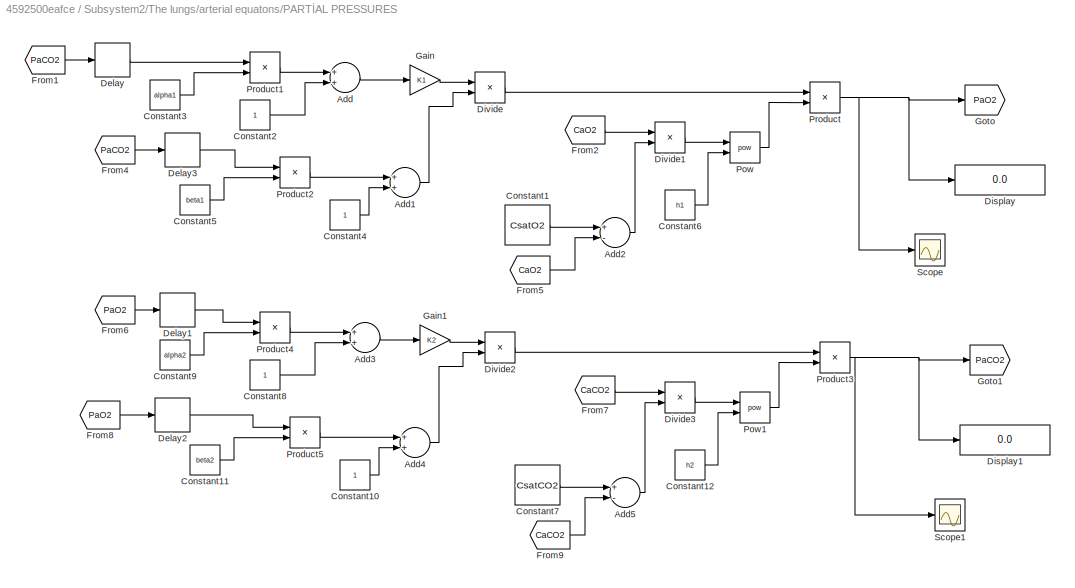
BLOCK [SubSystem] Subsystem2/The lungs/arterial equatons/PARTİAL PRESSURES
  Ports = []
  RequestExecContextInheritance = off
BLOCK [Sum] Subsystem2/The lungs/arterial equatons/PARTİAL PRESSURES/Add
  InputSameDT = off
  OutDataTypeStr = Inherit: Inherit via internal rule
  Ports = [2, 1]
  SaturateOnIntegerOverflow = off
BLOCK [Sum] Subsystem2/The lungs/arterial equatons/PARTİAL PRESSURES/Add1
  InputSameDT = off
  OutDataTypeStr = Inherit: Inherit via internal rule
  Ports = [2, 1]
  SaturateOnIntegerOverflow = off
BLOCK [Sum] Subsystem2/The lungs/arterial equatons/PARTİAL PRESSURES/Add2
  InputSameDT = off
  Inputs = +-
  OutDataTypeStr = Inherit: Inherit via internal rule
  Ports = [2, 1]
  SaturateOnIntegerOverflow = off
BLOCK [Sum] Subsystem2/The lungs/arterial equatons/PARTİAL PRESSURES/Add3
  InputSameDT = off
  OutDataTypeStr = Inherit: Inherit via internal rule
  Ports = [2, 1]
  SaturateOnIntegerOverflow = off
BLOCK [Sum] Subsystem2/The lungs/arterial equatons/PARTİAL PRESSURES/Add4
  InputSameDT = off
  OutDataTypeStr = Inherit: Inherit via internal rule
  Ports = [2, 1]
  SaturateOnIntegerOverflow = off
BLOCK [Sum] Subsystem2/The lungs/arterial equatons/PARTİAL PRESSURES/Add5
  InputSameDT = off
  Inputs = +-
  OutDataTypeStr = Inherit: Inherit via internal rule
  Ports = [2, 1]
  SaturateOnIntegerOverflow = off
BLOCK [Constant] Subsystem2/The lungs/arterial equatons/PARTİAL PRESSURES/Constant1
  Value = CsatO2
BLOCK [Constant] Subsystem2/The lungs/arterial equatons/PARTİAL PRESSURES/Constant10
BLOCK [Constant] Subsystem2/The lungs/arterial equatons/PARTİAL PRESSURES/Constant11
  Value = beta2
BLOCK [Constant] Subsystem2/The lungs/arterial equatons/PARTİAL PRESSURES/Constant12
  Value = h2
BLOCK [Constant] Subsystem2/The lungs/arterial equatons/PARTİAL PRESSURES/Constant2
BLOCK [Constant] Subsystem2/The lungs/arterial equatons/PARTİAL PRESSURES/Constant3
  Value = alpha1
BLOCK [Constant] Subsystem2/The lungs/arterial equatons/PARTİAL PRESSURES/Constant4
BLOCK [Constant] Subsystem2/The lungs/arterial equatons/PARTİAL PRESSURES/Constant5
  Value = beta1
BLOCK [Constant] Subsystem2/The lungs/arterial equatons/PARTİAL PRESSURES/Constant6
  Value = h1
BLOCK [Constant] Subsystem2/The lungs/arterial equatons/PARTİAL PRESSURES/Constant7
  Value = CsatCO2
BLOCK [Constant] Subsystem2/The lungs/arterial equatons/PARTİAL PRESSURES/Constant8
BLOCK [Constant] Subsystem2/The lungs/arterial equatons/PARTİAL PRESSURES/Constant9
  Value = alpha2
BLOCK [Delay] Subsystem2/The lungs/arterial equatons/PARTİAL PRESSURES/Delay
  DelayLength = 1
  InputPortMap = u0
  Ports = [1, 1]
  SampleTime = Tsamp
BLOCK [Delay] Subsystem2/The lungs/arterial equatons/PARTİAL PRESSURES/Delay1
  DelayLength = 1
  InputPortMap = u0
  Ports = [1, 1]
  SampleTime = Tsamp
BLOCK [Delay] Subsystem2/The lungs/arterial equatons/PARTİAL PRESSURES/Delay2
  DelayLength = 1
  InputPortMap = u0
  Ports = [1, 1]
  SampleTime = Tsamp
BLOCK [Delay] Subsystem2/The lungs/arterial equatons/PARTİAL PRESSURES/Delay3
  DelayLength = 1
  InputPortMap = u0
  Ports = [1, 1]
  SampleTime = Tsamp
BLOCK [Display] Subsystem2/The lungs/arterial equatons/PARTİAL PRESSURES/Display
  Decimation = 1
  Ports = [1]
BLOCK [Display] Subsystem2/The lungs/arterial equatons/PARTİAL PRESSURES/Display1
  Decimation = 1
  Ports = [1]
BLOCK [Product] Subsystem2/The lungs/arterial equatons/PARTİAL PRESSURES/Divide
  InputSameDT = off
  Inputs = */
  OutDataTypeStr = Inherit: Inherit via internal rule
  Ports = [2, 1]
  RndMeth = Floor
  SaturateOnIntegerOverflow = off
BLOCK [Product] Subsystem2/The lungs/arterial equatons/PARTİAL PRESSURES/Divide1
  InputSameDT = off
  Inputs = */
  OutDataTypeStr = Inherit: Inherit via internal rule
  Ports = [2, 1]
  RndMeth = Floor
  SaturateOnIntegerOverflow = off
BLOCK [Product] Subsystem2/The lungs/arterial equatons/PARTİAL PRESSURES/Divide2
  InputSameDT = off
  Inputs = */
  OutDataTypeStr = Inherit: Inherit via internal rule
  Ports = [2, 1]
  RndMeth = Floor
  SaturateOnIntegerOverflow = off
BLOCK [Product] Subsystem2/The lungs/arterial equatons/PARTİAL PRESSURES/Divide3
  InputSameDT = off
  Inputs = */
  OutDataTypeStr = Inherit: Inherit via internal rule
  Ports = [2, 1]
  RndMeth = Floor
  SaturateOnIntegerOverflow = off
BLOCK [From] Subsystem2/The lungs/arterial equatons/PARTİAL PRESSURES/From1
  GotoTag = PaCO2
  TagVisibility = global
BLOCK [From] Subsystem2/The lungs/arterial equatons/PARTİAL PRESSURES/From2
  GotoTag = CaO2
  TagVisibility = global
BLOCK [From] Subsystem2/The lungs/arterial equatons/PARTİAL PRESSURES/From4
  GotoTag = PaCO2
  TagVisibility = global
BLOCK [From] Subsystem2/The lungs/arterial equatons/PARTİAL PRESSURES/From5
  GotoTag = CaO2
  TagVisibility = global
BLOCK [From] Subsystem2/The lungs/arterial equatons/PARTİAL PRESSURES/From6
  GotoTag = PaO2
  TagVisibility = global
BLOCK [From] Subsystem2/The lungs/arterial equatons/PARTİAL PRESSURES/From7
  GotoTag = CaCO2
  TagVisibility = global
BLOCK [From] Subsystem2/The lungs/arterial equatons/PARTİAL PRESSURES/From8
  GotoTag = PaO2
  TagVisibility = global
BLOCK [From] Subsystem2/The lungs/arterial equatons/PARTİAL PRESSURES/From9
  GotoTag = CaCO2
  TagVisibility = global
BLOCK [Gain] Subsystem2/The lungs/arterial equatons/PARTİAL PRESSURES/Gain
  Gain = K1
  OutDataTypeStr = Inherit: Inherit via internal rule
  ParamDataTypeStr = Inherit: Inherit via internal rule
  SaturateOnIntegerOverflow = off
BLOCK [Gain] Subsystem2/The lungs/arterial equatons/PARTİAL PRESSURES/Gain1
  Gain = K2
  OutDataTypeStr = Inherit: Inherit via internal rule
  ParamDataTypeStr = Inherit: Inherit via internal rule
  SaturateOnIntegerOverflow = off
BLOCK [Goto] Subsystem2/The lungs/arterial equatons/PARTİAL PRESSURES/Goto
  GotoTag = PaO2
  TagVisibility = global
BLOCK [Goto] Subsystem2/The lungs/arterial equatons/PARTİAL PRESSURES/Goto1
  GotoTag = PaCO2
  TagVisibility = global
BLOCK [Math] Subsystem2/The lungs/arterial equatons/PARTİAL PRESSURES/Pow
  Operator = pow
  Ports = [2, 1]
  RndMeth = Zero
BLOCK [Math] Subsystem2/The lungs/arterial equatons/PARTİAL PRESSURES/Pow1
  Operator = pow
  Ports = [2, 1]
  RndMeth = Zero
BLOCK [Product] Subsystem2/The lungs/arterial equatons/PARTİAL PRESSURES/Product
  InputSameDT = off
  OutDataTypeStr = Inherit: Inherit via internal rule
  Ports = [2, 1]
  RndMeth = Floor
  SaturateOnIntegerOverflow = off
BLOCK [Product] Subsystem2/The lungs/arterial equatons/PARTİAL PRESSURES/Product1
  InputSameDT = off
  OutDataTypeStr = Inherit: Inherit via internal rule
  Ports = [2, 1]
  RndMeth = Floor
  SaturateOnIntegerOverflow = off
BLOCK [Product] Subsystem2/The lungs/arterial equatons/PARTİAL PRESSURES/Product2
  InputSameDT = off
  OutDataTypeStr = Inherit: Inherit via internal rule
  Ports = [2, 1]
  RndMeth = Floor
  SaturateOnIntegerOverflow = off
BLOCK [Product] Subsystem2/The lungs/arterial equatons/PARTİAL PRESSURES/Product3
  InputSameDT = off
  OutDataTypeStr = Inherit: Inherit via internal rule
  Ports = [2, 1]
  RndMeth = Floor
  SaturateOnIntegerOverflow = off
BLOCK [Product] Subsystem2/The lungs/arterial equatons/PARTİAL PRESSURES/Product4
  InputSameDT = off
  OutDataTypeStr = Inherit: Inherit via internal rule
  Ports = [2, 1]
  RndMeth = Floor
  SaturateOnIntegerOverflow = off
BLOCK [Product] Subsystem2/The lungs/arterial equatons/PARTİAL PRESSURES/Product5
  InputSameDT = off
  OutDataTypeStr = Inherit: Inherit via internal rule
  Ports = [2, 1]
  RndMeth = Floor
  SaturateOnIntegerOverflow = off
BLOCK [Scope] Subsystem2/The lungs/arterial equatons/PARTİAL PRESSURES/Scope
  Floating = off
  NumInputPorts = 1
  Ports = [1]
  ScopeSpecificationString = Simulink.scopes.TimeScopeBlockCfg('CurrentConfiguration', extmgr.ConfigurationSet(extmgr.Configuration('Core','General UI',true),extmgr.Configuration('Core','Source UI',true),extmgr.Configuration('Sources','WiredSimulink',true,'DataLoggingVariableName','ScopeData5'),extmgr.Configuration('Visuals','Time Domain',true,'SerializedDisplays',{struct('MinYLimReal','1.20473','MaxYLimReal','93.05359','YLab...<+1472ch>
BLOCK [Scope] Subsystem2/The lungs/arterial equatons/PARTİAL PRESSURES/Scope1
  Floating = off
  NumInputPorts = 1
  Ports = [1]
  ScopeSpecificationString = Simulink.scopes.TimeScopeBlockCfg('CurrentConfiguration', extmgr.ConfigurationSet(extmgr.Configuration('Core','General UI',true),extmgr.Configuration('Core','Source UI',true),extmgr.Configuration('Sources','WiredSimulink',true,'DataLoggingVariableName','ScopeData2'),extmgr.Configuration('Visuals','Time Domain',true,'SerializedDisplays',{struct('MinYLimReal','6.71349','MaxYLimReal','42.55661','YLab...<+1427ch>
BLOCK [SubSystem] Subsystem5
  Ports = [2, 2]
  RequestExecContextInheritance = off
BLOCK [Sum] Subsystem5/Add1
  InputSameDT = off
  Inputs = +++
  OutDataTypeStr = Inherit: Inherit via internal rule
  Ports = [3, 1]
  SaturateOnIntegerOverflow = off
BLOCK [Sum] Subsystem5/Add5
  InputSameDT = off
  Inputs = +--
  OutDataTypeStr = Inherit: Inherit via internal rule
  Ports = [3, 1]
  SaturateOnIntegerOverflow = off
BLOCK [Constant] Subsystem5/Constant
  Value = Pmin0
BLOCK [Constant] Subsystem5/Constant1
  Value = RR0
BLOCK [Inport] Subsystem5/In1
  IconDisplay = Port number
BLOCK [Inport] Subsystem5/In2
  IconDisplay = Port number
  Port = 2
BLOCK [SubSystem] Subsystem5/MATLAB Function
  ErrorFcn = Stateflow.Translate.translate
  PermitHierarchicalResolution = ExplicitOnly
  Ports = [2, 1]
  RequestExecContextInheritance = off
  SFBlockType = MATLAB Function
  TreatAsAtomicUnit = on
BLOCK [Demux] Subsystem5/MATLAB Function/ Demux 
  Outputs = 1
  Ports = [1, 1]
BLOCK [S-Function] Subsystem5/MATLAB Function/ SFunction 
  EnableBusSupport = on
  FunctionName = sf_sfun
  Parameters = KH,PO2ac,PaCO2n,Tau_ac,dt,f,fac_max,fac_min,kac
  PortCounts = [2 2]
  Ports = [2, 2]
  SFcnIsStateOwnerBlock = off
  SFunctionDeploymentMode = off
  Tag = Stateflow S-Function 11
BLOCK [Terminator] Subsystem5/MATLAB Function/ Terminator 
BLOCK [Inport] Subsystem5/MATLAB Function/PaCO2
  IconDisplay = Port number
BLOCK [Inport] Subsystem5/MATLAB Function/PaO2
  IconDisplay = Port number
  Port = 2
BLOCK [Outport] Subsystem5/MATLAB Function/fac
  IconDisplay = Port number
BLOCK [Outport] Subsystem5/Pmin
  IconDisplay = Port number
BLOCK [Outport] Subsystem5/RR
  IconDisplay = Port number
  Port = 2
BLOCK [SubSystem] Subsystem5/Subsystem3
  Ports = [1, 2]
  RequestExecContextInheritance = off
BLOCK [Sum] Subsystem5/Subsystem3/Add2
  InputSameDT = off
  Inputs = +-
  OutDataTypeStr = Inherit: Inherit via internal rule
  Ports = [2, 1]
  SaturateOnIntegerOverflow = off
BLOCK [Sum] Subsystem5/Subsystem3/Add3
  InputSameDT = off
  Inputs = +-
  OutDataTypeStr = Inherit: Inherit via internal rule
  Ports = [2, 1]
  SaturateOnIntegerOverflow = off
BLOCK [Sum] Subsystem5/Subsystem3/Add4
  InputSameDT = off
  Inputs = +-
  OutDataTypeStr = Inherit: Inherit via internal rule
  Ports = [2, 1]
  SaturateOnIntegerOverflow = off
BLOCK [Constant] Subsystem5/Subsystem3/Constant5
  Value = facn
BLOCK [Constant] Subsystem5/Subsystem3/Constant6
  Value = GpA
BLOCK [Constant] Subsystem5/Subsystem3/Constant7
  Value = TaupA
BLOCK [Constant] Subsystem5/Subsystem3/Constant8
  Value = Gpf
BLOCK [Constant] Subsystem5/Subsystem3/Constant9
  Value = Taupf
BLOCK [Product] Subsystem5/Subsystem3/Divide2
  InputSameDT = off
  Inputs = */
  OutDataTypeStr = Inherit: Inherit via internal rule
  Ports = [2, 1]
  RndMeth = Floor
  SaturateOnIntegerOverflow = off
BLOCK [Product] Subsystem5/Subsystem3/Divide3
  InputSameDT = off
  Inputs = */
  OutDataTypeStr = Inherit: Inherit via internal rule
  Ports = [2, 1]
  RndMeth = Floor
  SaturateOnIntegerOverflow = off
BLOCK [Inport] Subsystem5/Subsystem3/In1
  IconDisplay = Port number
BLOCK [Integrator] Subsystem5/Subsystem3/Integrator2
  Ports = [1, 1]
BLOCK [Integrator] Subsystem5/Subsystem3/Integrator3
  Ports = [1, 1]
BLOCK [Product] Subsystem5/Subsystem3/Product2
  InputSameDT = off
  OutDataTypeStr = Inherit: Inherit via internal rule
  Ports = [2, 1]
  RndMeth = Floor
  SaturateOnIntegerOverflow = off
BLOCK [Product] Subsystem5/Subsystem3/Product4
  InputSameDT = off
  OutDataTypeStr = Inherit: Inherit via internal rule
  Ports = [2, 1]
  RndMeth = Floor
  SaturateOnIntegerOverflow = off
BLOCK [TransportDelay] Subsystem5/Subsystem3/Transport Delay1
  DelayTime = Dp
  Ports = [1, 1]
BLOCK [Outport] Subsystem5/Subsystem3/dPminP
  IconDisplay = Port number
  Port = 2
BLOCK [Outport] Subsystem5/Subsystem3/dRRp
  IconDisplay = Port number
BLOCK [SubSystem] Subsystem5/Subsystem4
  Ports = [1, 2]
  RequestExecContextInheritance = off
BLOCK [Sum] Subsystem5/Subsystem4/Add1
  InputSameDT = off
  Inputs = +-
  OutDataTypeStr = Inherit: Inherit via internal rule
  Ports = [2, 1]
  SaturateOnIntegerOverflow = off
BLOCK [Sum] Subsystem5/Subsystem4/Add5
  InputSameDT = off
  Inputs = +-
  OutDataTypeStr = Inherit: Inherit via internal rule
  Ports = [2, 1]
  SaturateOnIntegerOverflow = off
BLOCK [Constant] Subsystem5/Subsystem4/Constant
  Value = PaCO2n
BLOCK [Constant] Subsystem5/Subsystem4/Constant1
  Value = GcA
BLOCK [Constant] Subsystem5/Subsystem4/Constant2
  Value = TaucA
BLOCK [Constant] Subsystem5/Subsystem4/Constant3
  Value = Gcf
BLOCK [Constant] Subsystem5/Subsystem4/Constant4
  Value = Taucf
BLOCK [Product] Subsystem5/Subsystem4/Divide
  InputSameDT = off
  Inputs = */
  OutDataTypeStr = Inherit: Inherit via internal rule
  Ports = [2, 1]
  RndMeth = Floor
  SaturateOnIntegerOverflow = off
BLOCK [Product] Subsystem5/Subsystem4/Divide1
  InputSameDT = off
  Inputs = */
  OutDataTypeStr = Inherit: Inherit via internal rule
  Ports = [2, 1]
  RndMeth = Floor
  SaturateOnIntegerOverflow = off
BLOCK [Inport] Subsystem5/Subsystem4/In1
  IconDisplay = Port number
BLOCK [Integrator] Subsystem5/Subsystem4/Integrator
  Ports = [1, 1]
BLOCK [Integrator] Subsystem5/Subsystem4/Integrator1
  Ports = [1, 1]
BLOCK [Product] Subsystem5/Subsystem4/Product1
  InputSameDT = off
  OutDataTypeStr = Inherit: Inherit via internal rule
  Ports = [2, 1]
  RndMeth = Floor
  SaturateOnIntegerOverflow = off
BLOCK [Product] Subsystem5/Subsystem4/Product3
  InputSameDT = off
  OutDataTypeStr = Inherit: Inherit via internal rule
  Ports = [2, 1]
  RndMeth = Floor
  SaturateOnIntegerOverflow = off
BLOCK [Sum] Subsystem5/Subsystem4/Sum
  IconShape = round
  InputSameDT = off
  Inputs = -+|
  OutDataTypeStr = Inherit: Inherit via internal rule
  Ports = [2, 1]
  SaturateOnIntegerOverflow = off
BLOCK [TransportDelay] Subsystem5/Subsystem4/Transport Delay
  DelayTime = Dc
  Ports = [1, 1]
BLOCK [Outport] Subsystem5/Subsystem4/dPminc
  IconDisplay = Port number
  Port = 2
BLOCK [Outport] Subsystem5/Subsystem4/dRRc
  IconDisplay = Port number
ANNOTATION (root): RR
ANNOTATION (root): CaCO2
ANNOTATION (root): CaO2
ANNOTATION (root): CvCO2
ANNOTATION (root): CvO2
ANNOTATION (root): Fol
ANNOTATION (root): For
ANNOTATION (root): Pla
ANNOTATION (root): Pmin
ANNOTATION (root): Ppa
ANNOTATION (root): Ppv
ANNOTATION (root): Pra
ANNOTATION (root): Psa
ANNOTATION (root): Pvenous
ANNOTATION Subsystem: HEART
ANNOTATION Subsystem: Subsystem
ANNOTATION Subsystem1/Tissue Gas Exchange1: Tissue CO2 Transport
ANNOTATION Subsystem1/Tissue Gas Exchange1: Tissue O2 Transport
ANNOTATION Subsystem2/The lungs: Fps ve Fpp yi dolaşım sisteminden çekmek için switchler girişlere bağlı olacak, b2 nin soruları için x bloğuna
ANNOTATION Subsystem2/The lungs/ALVEOLAR GAS EXCHANGE: integrator ic=basınçlara 10, akışlara 1
ANNOTATION Subsystem2/The lungs/ALVEOLAR GAS EXCHANGE: CARBON DIOXIDE (CO2)
ANNOTATION Subsystem2/The lungs/ALVEOLAR GAS EXCHANGE: OXYGEN (O2)
ANNOTATION Subsystem2/The lungs/ALVEOLAR GAS EXCHANGE: delaylere initial cond eklendi
ANNOTATION Subsystem2/The lungs/ALVEOLAR GAS EXCHANGE: İNTEGRATÖRLERİN BAŞLANGIÇ KOŞULUNU AYARLA
ANNOTATION Subsystem2/The lungs/ALVEOLAR GAS EXCHANGE/Dissociation Equaitons (Alveolar): PACO2=123 VEPAO2=100 VEREREK DENENDİ ONAYLANDI
ANNOTATION Subsystem2/The lungs/ALVEOLAR GAS EXCHANGE/Dissociation Equaitons (Alveolar): CsatCO2*(((123*(1+beta2*100)/(K2*(1+alpha2*100)))^(1/h2))/(1+(123*(1+beta2*100)/(K2*(1+alpha2*100)))^(1/h2)))
ANNOTATION Subsystem2/The lungs/ALVEOLAR GAS EXCHANGE/Dissociation Equaitons (Alveolar): CsatO2*(((100*(1+beta1*123)/(K1*(1+alpha1*123)))^(1/h1))/(1+(100*(1+beta1*123)/(K1*(1+alpha1*123)))^(1/h1)))
ANNOTATION Subsystem2/The lungs/ALVEOLAR GAS EXCHANGE/Dissociation Equaitons (Alveolar): Yanlışssa Fromları kontrol et
ANNOTATION Subsystem2/The lungs/GAS TRANSPORT THROUGH DEAD SPACE: CARBON DIOXIDE (CO2)
ANNOTATION Subsystem2/The lungs/GAS TRANSPORT THROUGH DEAD SPACE: OXYGEN (O2)
LINE Subsystem/Constant1:1 -> Subsystem/Pmaxrv||Pmaxlv:1
LINE Subsystem/Delay1:1 -> Subsystem/Pmaxrv||Pmaxlv:3
LINE Subsystem/Delay2:1 -> Subsystem/Demux:1
LINE Subsystem/Delay3:1 -> Subsystem/Right Heart:1
LINE Subsystem/Delay4:1 -> Subsystem/Left_Heart :2
LINE Subsystem/Delay5:1 -> Subsystem/Left_Heart :3
LINE Subsystem/Delay:1 -> Subsystem/Pmaxrv||Pmaxlv:2
LINE Subsystem/Demux:1 -> Subsystem/Right Heart:2
LINE Subsystem/Demux:2 -> Subsystem/Right Heart:3
LINE Subsystem/Demux:3 -> Subsystem/Right Heart:7
LINE Subsystem/Demux:4 -> Subsystem/Right Heart:4
LINE Subsystem/Demux:5 -> Subsystem/Right Heart:5
LINE Subsystem/From6:1 -> Subsystem/Delay1:1
LINE Subsystem/From7:1 -> Subsystem/Delay:1
LINE Subsystem/In2:1 -> Subsystem/Delay2:1
LINE Subsystem/In5:1 -> Subsystem/Delay5:1
LINE Subsystem/Left_Heart :1 -> Subsystem/Goto2:1
LINE Subsystem/Left_Heart :2 -> Subsystem/Scope:1
LINE Subsystem/Left_Heart :3 -> Subsystem/Goto3:1
LINE Subsystem/Left_Heart :4 -> Subsystem/Out4:1
LINE Subsystem/Left_Heart :5 -> Subsystem/Out1:1
LINE Subsystem/Pmaxrv||Pmaxlv:1 -> Subsystem/Right Heart:6
LINE Subsystem/Pmaxrv||Pmaxlv:2 -> Subsystem/Left_Heart :1
LINE Subsystem/Ppa:1 -> Subsystem/Delay3:1
LINE Subsystem/Psa:1 -> Subsystem/Delay4:1
LINE Subsystem/Right Heart:1 -> Subsystem/Goto:1
LINE Subsystem/Right Heart:2 -> Subsystem/Prv:1
LINE Subsystem/Right Heart:3 -> Subsystem/Goto1:1
LINE Subsystem/Right Heart:4 -> Subsystem/Out2:1
LINE Subsystem/Right Heart:5 -> Subsystem/Out3:1
LINE Subsystem1/CaCO2:1 -> Subsystem1/Tissue Gas Exchange1:1
LINE Subsystem1/CaO2:1 -> Subsystem1/Tissue Gas Exchange1:2
LINE Subsystem1/Constant:1 -> Subsystem1/Systemic Circ.:9
LINE Subsystem1/Fol:1 -> Subsystem1/Systemic Circ.:1
LINE Subsystem1/From1:1 -> Subsystem1/Systemic Circ.:8
LINE Subsystem1/From2:1 -> Subsystem1/Systemic Circ.:4
LINE Subsystem1/From3:1 -> Subsystem1/Systemic Circ.:5
LINE Subsystem1/From4:1 -> Subsystem1/Systemic Circ.:6
LINE Subsystem1/From5:1 -> Subsystem1/Systemic Circ.:7
LINE Subsystem1/From8:1 -> Subsystem1/Systemic Circ.:10
LINE Subsystem1/From9:1 -> Subsystem1/Systemic Circ.:11
LINE Subsystem1/From:1 -> Subsystem1/Systemic Circ.:3
LINE Subsystem1/Mean:1 -> Subsystem1/Display:1
LINE Subsystem1/Mux:1 -> Subsystem1/Pvenous:1
LINE Subsystem1/Pra:1 -> Subsystem1/Systemic Circ.:2
NET Subsystem1/Systemic Circ.:1 -> Subsystem1/Mean:1, Subsystem1/Tissue Gas Exchange1:3
LINE Subsystem1/Systemic Circ.:2 -> Subsystem1/Psa:1
LINE Subsystem1/Systemic Circ.:3 -> Subsystem1/Mux:1
LINE Subsystem1/Systemic Circ.:4 -> Subsystem1/Mux:2
LINE Subsystem1/Systemic Circ.:5 -> Subsystem1/Mux:3
LINE Subsystem1/Systemic Circ.:6 -> Subsystem1/Mux:4
LINE Subsystem1/Systemic Circ.:7 -> Subsystem1/Mux:5
LINE Subsystem1/Tissue Gas Exchange1/CaCO2:1 -> Subsystem1/Tissue Gas Exchange1/Transport Delay1:1
LINE Subsystem1/Tissue Gas Exchange1/CaO2:1 -> Subsystem1/Tissue Gas Exchange1/Transport Delay:1
LINE Subsystem1/Tissue Gas Exchange1/Constant1:1 -> Subsystem1/Tissue Gas Exchange1/Divide:1
LINE Subsystem1/Tissue Gas Exchange1/Constant2:1 -> Subsystem1/Tissue Gas Exchange1/Subtract2:2
LINE Subsystem1/Tissue Gas Exchange1/Constant3:1 -> Subsystem1/Tissue Gas Exchange1/Divide1:1
LINE Subsystem1/Tissue Gas Exchange1/Constant:1 -> Subsystem1/Tissue Gas Exchange1/Subtract:2
LINE Subsystem1/Tissue Gas Exchange1/Divide1:1 -> Subsystem1/Tissue Gas Exchange1/Integrator1:1
LINE Subsystem1/Tissue Gas Exchange1/Divide:1 -> Subsystem1/Tissue Gas Exchange1/Integrator:1
NET Subsystem1/Tissue Gas Exchange1/Fs:1 -> Subsystem1/Tissue Gas Exchange1/Product1:1, Subsystem1/Tissue Gas Exchange1/Product:1
NET Subsystem1/Tissue Gas Exchange1/Integrator1:1 -> Subsystem1/Tissue Gas Exchange1/CvCO2:1, Subsystem1/Tissue Gas Exchange1/Display1:1, Subsystem1/Tissue Gas Exchange1/Sum1:2
NET Subsystem1/Tissue Gas Exchange1/Integrator:1 -> Subsystem1/Tissue Gas Exchange1/CvO2:1, Subsystem1/Tissue Gas Exchange1/Display:1, Subsystem1/Tissue Gas Exchange1/Sum:2
LINE Subsystem1/Tissue Gas Exchange1/Product1:1 -> Subsystem1/Tissue Gas Exchange1/Subtract2:1
LINE Subsystem1/Tissue Gas Exchange1/Product:1 -> Subsystem1/Tissue Gas Exchange1/Subtract:1
LINE Subsystem1/Tissue Gas Exchange1/Subtract2:1 -> Subsystem1/Tissue Gas Exchange1/Divide1:2
LINE Subsystem1/Tissue Gas Exchange1/Subtract:1 -> Subsystem1/Tissue Gas Exchange1/Divide:2
LINE Subsystem1/Tissue Gas Exchange1/Sum1:1 -> Subsystem1/Tissue Gas Exchange1/Product1:2
LINE Subsystem1/Tissue Gas Exchange1/Sum:1 -> Subsystem1/Tissue Gas Exchange1/Product:2
LINE Subsystem1/Tissue Gas Exchange1/Transport Delay1:1 -> Subsystem1/Tissue Gas Exchange1/Sum1:1
LINE Subsystem1/Tissue Gas Exchange1/Transport Delay:1 -> Subsystem1/Tissue Gas Exchange1/Sum:1
LINE Subsystem1/Tissue Gas Exchange1:1 -> Subsystem1/CvO2:1
LINE Subsystem1/Tissue Gas Exchange1:2 -> Subsystem1/CvCO2:1
LINE Subsystem1:1 -> Subsystem:3
LINE Subsystem1:2 -> Subsystem:4
LINE Subsystem1:3 -> Subsystem2:3
LINE Subsystem1:4 -> Subsystem2:4
LINE Subsystem2/CvCO2:1 -> Subsystem2/The lungs:4
LINE Subsystem2/CvO2:1 -> Subsystem2/The lungs:3
LINE Subsystem2/For:1 -> Subsystem2/Pulmonary:1
LINE Subsystem2/Pla:1 -> Subsystem2/Pulmonary:2
LINE Subsystem2/Pmin:1 -> Subsystem2/The lungs:6
LINE Subsystem2/Pulmonary:1 -> Subsystem2/Goto4:1
LINE Subsystem2/Pulmonary:2 -> Subsystem2/Goto5:1
LINE Subsystem2/Pulmonary:3 -> Subsystem2/Goto6:1
LINE Subsystem2/Pulmonary:4 -> Subsystem2/Goto7:1
LINE Subsystem2/Pulmonary:5 -> Subsystem2/Ppa:1
LINE Subsystem2/Pulmonary:6 -> Subsystem2/Ppv:1
LINE Subsystem2/Pulmonary:7 -> Subsystem2/Scope:1
LINE Subsystem2/Pulmonary:8 -> Subsystem2/The lungs:1
LINE Subsystem2/Pulmonary:9 -> Subsystem2/The lungs:2
LINE Subsystem2/RR:1 -> Subsystem2/The lungs:5
LINE Subsystem2/The lungs/ALVEOLAR GAS EXCHANGE/Add1:1 -> Subsystem2/The lungs/ALVEOLAR GAS EXCHANGE/Divide1:1
NET Subsystem2/The lungs/ALVEOLAR GAS EXCHANGE/Add2:1 -> Subsystem2/The lungs/ALVEOLAR GAS EXCHANGE/Divide:2, Subsystem2/The lungs/ALVEOLAR GAS EXCHANGE/Goto:1
LINE Subsystem2/The lungs/ALVEOLAR GAS EXCHANGE/Add:1 -> Subsystem2/The lungs/ALVEOLAR GAS EXCHANGE/Divide:1
LINE Subsystem2/The lungs/ALVEOLAR GAS EXCHANGE/Constant1:1 -> Subsystem2/The lungs/ALVEOLAR GAS EXCHANGE/Switch1:3
LINE Subsystem2/The lungs/ALVEOLAR GAS EXCHANGE/Constant9:1 -> Subsystem2/The lungs/ALVEOLAR GAS EXCHANGE/Add2:1
LINE Subsystem2/The lungs/ALVEOLAR GAS EXCHANGE/Constant:1 -> Subsystem2/The lungs/ALVEOLAR GAS EXCHANGE/Switch4:3
LINE Subsystem2/The lungs/ALVEOLAR GAS EXCHANGE/Dissociation Equaitons (Alveolar)/Add1:1 -> Subsystem2/The lungs/ALVEOLAR GAS EXCHANGE/Dissociation Equaitons (Alveolar)/Divide1:1
LINE Subsystem2/The lungs/ALVEOLAR GAS EXCHANGE/Dissociation Equaitons (Alveolar)/Add2:1 -> Subsystem2/The lungs/ALVEOLAR GAS EXCHANGE/Dissociation Equaitons (Alveolar)/Gain3:1
LINE Subsystem2/The lungs/ALVEOLAR GAS EXCHANGE/Dissociation Equaitons (Alveolar)/Add3:1 -> Subsystem2/The lungs/ALVEOLAR GAS EXCHANGE/Dissociation Equaitons (Alveolar)/Divide2:2
LINE Subsystem2/The lungs/ALVEOLAR GAS EXCHANGE/Dissociation Equaitons (Alveolar)/Add4:1 -> Subsystem2/The lungs/ALVEOLAR GAS EXCHANGE/Dissociation Equaitons (Alveolar)/Divide3:1
LINE Subsystem2/The lungs/ALVEOLAR GAS EXCHANGE/Dissociation Equaitons (Alveolar)/Add5:1 -> Subsystem2/The lungs/ALVEOLAR GAS EXCHANGE/Dissociation Equaitons (Alveolar)/Gain2:1
LINE Subsystem2/The lungs/ALVEOLAR GAS EXCHANGE/Dissociation Equaitons (Alveolar)/Add6:1 -> Subsystem2/The lungs/ALVEOLAR GAS EXCHANGE/Dissociation Equaitons (Alveolar)/Divide4:2
NET Subsystem2/The lungs/ALVEOLAR GAS EXCHANGE/Dissociation Equaitons (Alveolar)/Constant1:1 -> Subsystem2/The lungs/ALVEOLAR GAS EXCHANGE/Dissociation Equaitons (Alveolar)/Add1:2, Subsystem2/The lungs/ALVEOLAR GAS EXCHANGE/Dissociation Equaitons (Alveolar)/Add2:1
LINE Subsystem2/The lungs/ALVEOLAR GAS EXCHANGE/Dissociation Equaitons (Alveolar)/Constant2:1 -> Subsystem2/The lungs/ALVEOLAR GAS EXCHANGE/Dissociation Equaitons (Alveolar)/Pow:2
LINE Subsystem2/The lungs/ALVEOLAR GAS EXCHANGE/Dissociation Equaitons (Alveolar)/Constant3:1 -> Subsystem2/The lungs/ALVEOLAR GAS EXCHANGE/Dissociation Equaitons (Alveolar)/Add3:2
NET Subsystem2/The lungs/ALVEOLAR GAS EXCHANGE/Dissociation Equaitons (Alveolar)/Constant4:1 -> Subsystem2/The lungs/ALVEOLAR GAS EXCHANGE/Dissociation Equaitons (Alveolar)/Add4:2, Subsystem2/The lungs/ALVEOLAR GAS EXCHANGE/Dissociation Equaitons (Alveolar)/Add5:1
LINE Subsystem2/The lungs/ALVEOLAR GAS EXCHANGE/Dissociation Equaitons (Alveolar)/Constant5:1 -> Subsystem2/The lungs/ALVEOLAR GAS EXCHANGE/Dissociation Equaitons (Alveolar)/Pow1:2
LINE Subsystem2/The lungs/ALVEOLAR GAS EXCHANGE/Dissociation Equaitons (Alveolar)/Constant6:1 -> Subsystem2/The lungs/ALVEOLAR GAS EXCHANGE/Dissociation Equaitons (Alveolar)/Add6:2
LINE Subsystem2/The lungs/ALVEOLAR GAS EXCHANGE/Dissociation Equaitons (Alveolar)/Divide1:1 -> Subsystem2/The lungs/ALVEOLAR GAS EXCHANGE/Dissociation Equaitons (Alveolar)/Product3:1
LINE Subsystem2/The lungs/ALVEOLAR GAS EXCHANGE/Dissociation Equaitons (Alveolar)/Divide2:1 -> Subsystem2/The lungs/ALVEOLAR GAS EXCHANGE/Dissociation Equaitons (Alveolar)/Gain5:1
LINE Subsystem2/The lungs/ALVEOLAR GAS EXCHANGE/Dissociation Equaitons (Alveolar)/Divide3:1 -> Subsystem2/The lungs/ALVEOLAR GAS EXCHANGE/Dissociation Equaitons (Alveolar)/Product1:1
LINE Subsystem2/The lungs/ALVEOLAR GAS EXCHANGE/Dissociation Equaitons (Alveolar)/Divide4:1 -> Subsystem2/The lungs/ALVEOLAR GAS EXCHANGE/Dissociation Equaitons (Alveolar)/Gain7:1
NET Subsystem2/The lungs/ALVEOLAR GAS EXCHANGE/Dissociation Equaitons (Alveolar)/From1:1 -> Subsystem2/The lungs/ALVEOLAR GAS EXCHANGE/Dissociation Equaitons (Alveolar)/Display3:1, Subsystem2/The lungs/ALVEOLAR GAS EXCHANGE/Dissociation Equaitons (Alveolar)/Product3:2
LINE Subsystem2/The lungs/ALVEOLAR GAS EXCHANGE/Dissociation Equaitons (Alveolar)/From3:1 -> Subsystem2/The lungs/ALVEOLAR GAS EXCHANGE/Dissociation Equaitons (Alveolar)/Product1:2
NET Subsystem2/The lungs/ALVEOLAR GAS EXCHANGE/Dissociation Equaitons (Alveolar)/From4:1 -> Subsystem2/The lungs/ALVEOLAR GAS EXCHANGE/Dissociation Equaitons (Alveolar)/Gain1:1, Subsystem2/The lungs/ALVEOLAR GAS EXCHANGE/Dissociation Equaitons (Alveolar)/Gain6:1
NET Subsystem2/The lungs/ALVEOLAR GAS EXCHANGE/Dissociation Equaitons (Alveolar)/From:1 -> Subsystem2/The lungs/ALVEOLAR GAS EXCHANGE/Dissociation Equaitons (Alveolar)/Display2:1, Subsystem2/The lungs/ALVEOLAR GAS EXCHANGE/Dissociation Equaitons (Alveolar)/Gain4:1, Subsystem2/The lungs/ALVEOLAR GAS EXCHANGE/Dissociation Equaitons (Alveolar)/Gain:1
LINE Subsystem2/The lungs/ALVEOLAR GAS EXCHANGE/Dissociation Equaitons (Alveolar)/Gain1:1 -> Subsystem2/The lungs/ALVEOLAR GAS EXCHANGE/Dissociation Equaitons (Alveolar)/Add4:1
LINE Subsystem2/The lungs/ALVEOLAR GAS EXCHANGE/Dissociation Equaitons (Alveolar)/Gain2:1 -> Subsystem2/The lungs/ALVEOLAR GAS EXCHANGE/Dissociation Equaitons (Alveolar)/Divide3:2
LINE Subsystem2/The lungs/ALVEOLAR GAS EXCHANGE/Dissociation Equaitons (Alveolar)/Gain3:1 -> Subsystem2/The lungs/ALVEOLAR GAS EXCHANGE/Dissociation Equaitons (Alveolar)/Divide1:2
LINE Subsystem2/The lungs/ALVEOLAR GAS EXCHANGE/Dissociation Equaitons (Alveolar)/Gain4:1 -> Subsystem2/The lungs/ALVEOLAR GAS EXCHANGE/Dissociation Equaitons (Alveolar)/Add2:2
NET Subsystem2/The lungs/ALVEOLAR GAS EXCHANGE/Dissociation Equaitons (Alveolar)/Gain5:1 -> Subsystem2/The lungs/ALVEOLAR GAS EXCHANGE/Dissociation Equaitons (Alveolar)/Display:1, Subsystem2/The lungs/ALVEOLAR GAS EXCHANGE/Dissociation Equaitons (Alveolar)/Goto:1
LINE Subsystem2/The lungs/ALVEOLAR GAS EXCHANGE/Dissociation Equaitons (Alveolar)/Gain6:1 -> Subsystem2/The lungs/ALVEOLAR GAS EXCHANGE/Dissociation Equaitons (Alveolar)/Add5:2
NET Subsystem2/The lungs/ALVEOLAR GAS EXCHANGE/Dissociation Equaitons (Alveolar)/Gain7:1 -> Subsystem2/The lungs/ALVEOLAR GAS EXCHANGE/Dissociation Equaitons (Alveolar)/Display1:1, Subsystem2/The lungs/ALVEOLAR GAS EXCHANGE/Dissociation Equaitons (Alveolar)/Goto1:1
LINE Subsystem2/The lungs/ALVEOLAR GAS EXCHANGE/Dissociation Equaitons (Alveolar)/Gain:1 -> Subsystem2/The lungs/ALVEOLAR GAS EXCHANGE/Dissociation Equaitons (Alveolar)/Add1:1
NET Subsystem2/The lungs/ALVEOLAR GAS EXCHANGE/Dissociation Equaitons (Alveolar)/Pow1:1 -> Subsystem2/The lungs/ALVEOLAR GAS EXCHANGE/Dissociation Equaitons (Alveolar)/Add6:1, Subsystem2/The lungs/ALVEOLAR GAS EXCHANGE/Dissociation Equaitons (Alveolar)/Divide4:1
NET Subsystem2/The lungs/ALVEOLAR GAS EXCHANGE/Dissociation Equaitons (Alveolar)/Pow:1 -> Subsystem2/The lungs/ALVEOLAR GAS EXCHANGE/Dissociation Equaitons (Alveolar)/Add3:1, Subsystem2/The lungs/ALVEOLAR GAS EXCHANGE/Dissociation Equaitons (Alveolar)/Divide2:1
LINE Subsystem2/The lungs/ALVEOLAR GAS EXCHANGE/Dissociation Equaitons (Alveolar)/Product1:1 -> Subsystem2/The lungs/ALVEOLAR GAS EXCHANGE/Dissociation Equaitons (Alveolar)/Pow1:1
LINE Subsystem2/The lungs/ALVEOLAR GAS EXCHANGE/Dissociation Equaitons (Alveolar)/Product3:1 -> Subsystem2/The lungs/ALVEOLAR GAS EXCHANGE/Dissociation Equaitons (Alveolar)/Pow:1
LINE Subsystem2/The lungs/ALVEOLAR GAS EXCHANGE/Divide1:1 -> Subsystem2/The lungs/ALVEOLAR GAS EXCHANGE/Integrator1:1
LINE Subsystem2/The lungs/ALVEOLAR GAS EXCHANGE/Divide:1 -> Subsystem2/The lungs/ALVEOLAR GAS EXCHANGE/Integrator:1
LINE Subsystem2/The lungs/ALVEOLAR GAS EXCHANGE/From10:1 -> Subsystem2/The lungs/ALVEOLAR GAS EXCHANGE/Sum4:1
LINE Subsystem2/The lungs/ALVEOLAR GAS EXCHANGE/From11:1 -> Subsystem2/The lungs/ALVEOLAR GAS EXCHANGE/Transport Delay1:1
LINE Subsystem2/The lungs/ALVEOLAR GAS EXCHANGE/From12:1 -> Subsystem2/The lungs/ALVEOLAR GAS EXCHANGE/Gain3:1
LINE Subsystem2/The lungs/ALVEOLAR GAS EXCHANGE/From1:1 -> Subsystem2/The lungs/ALVEOLAR GAS EXCHANGE/Sum1:2
NET Subsystem2/The lungs/ALVEOLAR GAS EXCHANGE/From2:1 -> Subsystem2/The lungs/ALVEOLAR GAS EXCHANGE/Product2:2, Subsystem2/The lungs/ALVEOLAR GAS EXCHANGE/Switch4:2
LINE Subsystem2/The lungs/ALVEOLAR GAS EXCHANGE/From3:1 -> Subsystem2/The lungs/ALVEOLAR GAS EXCHANGE/Sum3:2
NET Subsystem2/The lungs/ALVEOLAR GAS EXCHANGE/From4:1 -> Subsystem2/The lungs/ALVEOLAR GAS EXCHANGE/Product4:2, Subsystem2/The lungs/ALVEOLAR GAS EXCHANGE/Switch1:2
LINE Subsystem2/The lungs/ALVEOLAR GAS EXCHANGE/From5:1 -> Subsystem2/The lungs/ALVEOLAR GAS EXCHANGE/Add2:2
LINE Subsystem2/The lungs/ALVEOLAR GAS EXCHANGE/From6:1 -> Subsystem2/The lungs/ALVEOLAR GAS EXCHANGE/Sum2:1
LINE Subsystem2/The lungs/ALVEOLAR GAS EXCHANGE/From7:1 -> Subsystem2/The lungs/ALVEOLAR GAS EXCHANGE/Transport Delay:1
LINE Subsystem2/The lungs/ALVEOLAR GAS EXCHANGE/From8:1 -> Subsystem2/The lungs/ALVEOLAR GAS EXCHANGE/Gain1:1
LINE Subsystem2/The lungs/ALVEOLAR GAS EXCHANGE/From:1 -> Subsystem2/The lungs/ALVEOLAR GAS EXCHANGE/Gain5:1
LINE Subsystem2/The lungs/ALVEOLAR GAS EXCHANGE/Gain1:1 -> Subsystem2/The lungs/ALVEOLAR GAS EXCHANGE/Product1:2
LINE Subsystem2/The lungs/ALVEOLAR GAS EXCHANGE/Gain2:1 -> Subsystem2/The lungs/ALVEOLAR GAS EXCHANGE/Add1:2
LINE Subsystem2/The lungs/ALVEOLAR GAS EXCHANGE/Gain3:1 -> Subsystem2/The lungs/ALVEOLAR GAS EXCHANGE/Product3:2
LINE Subsystem2/The lungs/ALVEOLAR GAS EXCHANGE/Gain5:1 -> Subsystem2/The lungs/ALVEOLAR GAS EXCHANGE/Divide1:2
LINE Subsystem2/The lungs/ALVEOLAR GAS EXCHANGE/Gain:1 -> Subsystem2/The lungs/ALVEOLAR GAS EXCHANGE/Add:2
NET Subsystem2/The lungs/ALVEOLAR GAS EXCHANGE/Integrator1:1 -> Subsystem2/The lungs/ALVEOLAR GAS EXCHANGE/Goto1:1, Subsystem2/The lungs/ALVEOLAR GAS EXCHANGE/Sum3:1
NET Subsystem2/The lungs/ALVEOLAR GAS EXCHANGE/Integrator:1 -> Subsystem2/The lungs/ALVEOLAR GAS EXCHANGE/Goto2:1, Subsystem2/The lungs/ALVEOLAR GAS EXCHANGE/Sum1:1
LINE Subsystem2/The lungs/ALVEOLAR GAS EXCHANGE/Product1:1 -> Subsystem2/The lungs/ALVEOLAR GAS EXCHANGE/Gain:1
LINE Subsystem2/The lungs/ALVEOLAR GAS EXCHANGE/Product2:1 -> Subsystem2/The lungs/ALVEOLAR GAS EXCHANGE/Switch4:1
LINE Subsystem2/The lungs/ALVEOLAR GAS EXCHANGE/Product3:1 -> Subsystem2/The lungs/ALVEOLAR GAS EXCHANGE/Gain2:1
LINE Subsystem2/The lungs/ALVEOLAR GAS EXCHANGE/Product4:1 -> Subsystem2/The lungs/ALVEOLAR GAS EXCHANGE/Switch1:1
LINE Subsystem2/The lungs/ALVEOLAR GAS EXCHANGE/Sum1:1 -> Subsystem2/The lungs/ALVEOLAR GAS EXCHANGE/Product2:1
LINE Subsystem2/The lungs/ALVEOLAR GAS EXCHANGE/Sum2:1 -> Subsystem2/The lungs/ALVEOLAR GAS EXCHANGE/Product1:1
LINE Subsystem2/The lungs/ALVEOLAR GAS EXCHANGE/Sum3:1 -> Subsystem2/The lungs/ALVEOLAR GAS EXCHANGE/Product4:1
LINE Subsystem2/The lungs/ALVEOLAR GAS EXCHANGE/Sum4:1 -> Subsystem2/The lungs/ALVEOLAR GAS EXCHANGE/Product3:1
LINE Subsystem2/The lungs/ALVEOLAR GAS EXCHANGE/Switch1:1 -> Subsystem2/The lungs/ALVEOLAR GAS EXCHANGE/Add1:1
LINE Subsystem2/The lungs/ALVEOLAR GAS EXCHANGE/Switch4:1 -> Subsystem2/The lungs/ALVEOLAR GAS EXCHANGE/Add:1
LINE Subsystem2/The lungs/ALVEOLAR GAS EXCHANGE/Transport Delay1:1 -> Subsystem2/The lungs/ALVEOLAR GAS EXCHANGE/Sum4:2
LINE Subsystem2/The lungs/ALVEOLAR GAS EXCHANGE/Transport Delay:1 -> Subsystem2/The lungs/ALVEOLAR GAS EXCHANGE/Sum2:2
NET Subsystem2/The lungs/Constant1:1 -> Subsystem2/The lungs/Multiply1:1, Subsystem2/The lungs/Sum:1
LINE Subsystem2/The lungs/Constant:1 -> Subsystem2/The lungs/Sum:2
LINE Subsystem2/The lungs/CvCO2:1 -> Subsystem2/The lungs/Goto3:1
LINE Subsystem2/The lungs/CvO2:1 -> Subsystem2/The lungs/Goto2:1
NET Subsystem2/The lungs/Fp:1 -> Subsystem2/The lungs/Multiply1:2, Subsystem2/The lungs/Multiply:1
LINE Subsystem2/The lungs/Fpp:1 -> Subsystem2/The lungs/Manual Switch1:2
LINE Subsystem2/The lungs/Fps:1 -> Subsystem2/The lungs/Manual Switch:1
LINE Subsystem2/The lungs/From2:1 -> Subsystem2/The lungs/PaO2:1
LINE Subsystem2/The lungs/From3:1 -> Subsystem2/The lungs/PaCO2:1
LINE Subsystem2/The lungs/GAS TRANSPORT THROUGH DEAD SPACE/Constant1:1 -> Subsystem2/The lungs/GAS TRANSPORT THROUGH DEAD SPACE/Sum:1
LINE Subsystem2/The lungs/GAS TRANSPORT THROUGH DEAD SPACE/Constant2:1 -> Subsystem2/The lungs/GAS TRANSPORT THROUGH DEAD SPACE/Sum:2
LINE Subsystem2/The lungs/GAS TRANSPORT THROUGH DEAD SPACE/Constant3:1 -> Subsystem2/The lungs/GAS TRANSPORT THROUGH DEAD SPACE/Product1:2
LINE Subsystem2/The lungs/GAS TRANSPORT THROUGH DEAD SPACE/Constant4:1 -> Subsystem2/The lungs/GAS TRANSPORT THROUGH DEAD SPACE/Divide:2
LINE Subsystem2/The lungs/GAS TRANSPORT THROUGH DEAD SPACE/Constant5:1 -> Subsystem2/The lungs/GAS TRANSPORT THROUGH DEAD SPACE/Divide1:2
LINE Subsystem2/The lungs/GAS TRANSPORT THROUGH DEAD SPACE/Constant:1 -> Subsystem2/The lungs/GAS TRANSPORT THROUGH DEAD SPACE/Product:1
LINE Subsystem2/The lungs/GAS TRANSPORT THROUGH DEAD SPACE/Divide1:1 -> Subsystem2/The lungs/GAS TRANSPORT THROUGH DEAD SPACE/Integrator1:1
LINE Subsystem2/The lungs/GAS TRANSPORT THROUGH DEAD SPACE/Divide:1 -> Subsystem2/The lungs/GAS TRANSPORT THROUGH DEAD SPACE/Integrator:1
LINE Subsystem2/The lungs/GAS TRANSPORT THROUGH DEAD SPACE/From1:1 -> Subsystem2/The lungs/GAS TRANSPORT THROUGH DEAD SPACE/Sum1:2
NET Subsystem2/The lungs/GAS TRANSPORT THROUGH DEAD SPACE/From2:1 -> Subsystem2/The lungs/GAS TRANSPORT THROUGH DEAD SPACE/Product2:2, Subsystem2/The lungs/GAS TRANSPORT THROUGH DEAD SPACE/Product3:1, Subsystem2/The lungs/GAS TRANSPORT THROUGH DEAD SPACE/Switch2:2
LINE Subsystem2/The lungs/GAS TRANSPORT THROUGH DEAD SPACE/From3:1 -> Subsystem2/The lungs/GAS TRANSPORT THROUGH DEAD SPACE/Sum4:1
NET Subsystem2/The lungs/GAS TRANSPORT THROUGH DEAD SPACE/From4:1 -> Subsystem2/The lungs/GAS TRANSPORT THROUGH DEAD SPACE/Product4:2, Subsystem2/The lungs/GAS TRANSPORT THROUGH DEAD SPACE/Product5:1, Subsystem2/The lungs/GAS TRANSPORT THROUGH DEAD SPACE/Switch1:2
LINE Subsystem2/The lungs/GAS TRANSPORT THROUGH DEAD SPACE/From5:1 -> Subsystem2/The lungs/GAS TRANSPORT THROUGH DEAD SPACE/Sum2:1
LINE Subsystem2/The lungs/GAS TRANSPORT THROUGH DEAD SPACE/From:1 -> Subsystem2/The lungs/GAS TRANSPORT THROUGH DEAD SPACE/Sum3:2
NET Subsystem2/The lungs/GAS TRANSPORT THROUGH DEAD SPACE/Integrator1:1 -> Subsystem2/The lungs/GAS TRANSPORT THROUGH DEAD SPACE/Goto3:1, Subsystem2/The lungs/GAS TRANSPORT THROUGH DEAD SPACE/Sum3:1, Subsystem2/The lungs/GAS TRANSPORT THROUGH DEAD SPACE/Sum4:2
NET Subsystem2/The lungs/GAS TRANSPORT THROUGH DEAD SPACE/Integrator:1 -> Subsystem2/The lungs/GAS TRANSPORT THROUGH DEAD SPACE/Goto2:1, Subsystem2/The lungs/GAS TRANSPORT THROUGH DEAD SPACE/Sum1:1, Subsystem2/The lungs/GAS TRANSPORT THROUGH DEAD SPACE/Sum2:2
LINE Subsystem2/The lungs/GAS TRANSPORT THROUGH DEAD SPACE/Product1:1 -> Subsystem2/The lungs/GAS TRANSPORT THROUGH DEAD SPACE/Goto1:1
LINE Subsystem2/The lungs/GAS TRANSPORT THROUGH DEAD SPACE/Product2:1 -> Subsystem2/The lungs/GAS TRANSPORT THROUGH DEAD SPACE/Switch2:1
LINE Subsystem2/The lungs/GAS TRANSPORT THROUGH DEAD SPACE/Product3:1 -> Subsystem2/The lungs/GAS TRANSPORT THROUGH DEAD SPACE/Switch2:3
LINE Subsystem2/The lungs/GAS TRANSPORT THROUGH DEAD SPACE/Product4:1 -> Subsystem2/The lungs/GAS TRANSPORT THROUGH DEAD SPACE/Switch1:1
LINE Subsystem2/The lungs/GAS TRANSPORT THROUGH DEAD SPACE/Product5:1 -> Subsystem2/The lungs/GAS TRANSPORT THROUGH DEAD SPACE/Switch1:3
LINE Subsystem2/The lungs/GAS TRANSPORT THROUGH DEAD SPACE/Product:1 -> Subsystem2/The lungs/GAS TRANSPORT THROUGH DEAD SPACE/Goto:1
LINE Subsystem2/The lungs/GAS TRANSPORT THROUGH DEAD SPACE/Sum1:1 -> Subsystem2/The lungs/GAS TRANSPORT THROUGH DEAD SPACE/Product2:1
LINE Subsystem2/The lungs/GAS TRANSPORT THROUGH DEAD SPACE/Sum2:1 -> Subsystem2/The lungs/GAS TRANSPORT THROUGH DEAD SPACE/Product3:2
LINE Subsystem2/The lungs/GAS TRANSPORT THROUGH DEAD SPACE/Sum3:1 -> Subsystem2/The lungs/GAS TRANSPORT THROUGH DEAD SPACE/Product4:1
LINE Subsystem2/The lungs/GAS TRANSPORT THROUGH DEAD SPACE/Sum4:1 -> Subsystem2/The lungs/GAS TRANSPORT THROUGH DEAD SPACE/Product5:2
NET Subsystem2/The lungs/GAS TRANSPORT THROUGH DEAD SPACE/Sum:1 -> Subsystem2/The lungs/GAS TRANSPORT THROUGH DEAD SPACE/Product1:1, Subsystem2/The lungs/GAS TRANSPORT THROUGH DEAD SPACE/Product:2
LINE Subsystem2/The lungs/GAS TRANSPORT THROUGH DEAD SPACE/Switch1:1 -> Subsystem2/The lungs/GAS TRANSPORT THROUGH DEAD SPACE/Divide1:1
LINE Subsystem2/The lungs/GAS TRANSPORT THROUGH DEAD SPACE/Switch2:1 -> Subsystem2/The lungs/GAS TRANSPORT THROUGH DEAD SPACE/Divide:1
LINE Subsystem2/The lungs/LUNG MECHANIC MODEL/Subsystem/Clock:1 -> Subsystem2/The lungs/LUNG MECHANIC MODEL/Subsystem/MATLAB Function:1
LINE Subsystem2/The lungs/LUNG MECHANIC MODEL/Subsystem/Constant1:1 -> Subsystem2/The lungs/LUNG MECHANIC MODEL/Subsystem/MATLAB Function:2
LINE Subsystem2/The lungs/LUNG MECHANIC MODEL/Subsystem/Constant:1 -> Subsystem2/The lungs/LUNG MECHANIC MODEL/Subsystem/MATLAB Function:3
NET Subsystem2/The lungs/LUNG MECHANIC MODEL/Subsystem/MATLAB Function:1 -> Subsystem2/The lungs/LUNG MECHANIC MODEL/Subsystem/Scope:1, Subsystem2/The lungs/LUNG MECHANIC MODEL/Subsystem/Simulink-PS Converter:1
LINE Subsystem2/The lungs/LUNG MECHANIC MODEL/Subsystem/PS-Simulink Converter2:1 -> Subsystem2/The lungs/LUNG MECHANIC MODEL/Subsystem/Scope2:1
LINE Subsystem2/The lungs/LUNG MECHANIC MODEL/VAdot/Clock:1 -> Subsystem2/The lungs/LUNG MECHANIC MODEL/VAdot/MATLAB Function:1
LINE Subsystem2/The lungs/LUNG MECHANIC MODEL/VAdot/Constant1:1 -> Subsystem2/The lungs/LUNG MECHANIC MODEL/VAdot/MATLAB Function:2
LINE Subsystem2/The lungs/LUNG MECHANIC MODEL/VAdot/Constant:1 -> Subsystem2/The lungs/LUNG MECHANIC MODEL/VAdot/MATLAB Function:3
NET Subsystem2/The lungs/LUNG MECHANIC MODEL/VAdot/Integrator:1 -> Subsystem2/The lungs/LUNG MECHANIC MODEL/VAdot/Goto2:1, Subsystem2/The lungs/LUNG MECHANIC MODEL/VAdot/Scope:2
LINE Subsystem2/The lungs/LUNG MECHANIC MODEL/VAdot/MATLAB Function:1 -> Subsystem2/The lungs/LUNG MECHANIC MODEL/VAdot/Transfer Fcn:1
NET Subsystem2/The lungs/LUNG MECHANIC MODEL/VAdot/Transfer Fcn:1 -> Subsystem2/The lungs/LUNG MECHANIC MODEL/VAdot/Goto1:1, Subsystem2/The lungs/LUNG MECHANIC MODEL/VAdot/Integrator:1, Subsystem2/The lungs/LUNG MECHANIC MODEL/VAdot/Scope:1
LINE Subsystem2/The lungs/LUNG MECHANIC MODEL/ab/Clock:1 -> Subsystem2/The lungs/LUNG MECHANIC MODEL/ab/MATLAB Function:1
LINE Subsystem2/The lungs/LUNG MECHANIC MODEL/ab/Constant1:1 -> Subsystem2/The lungs/LUNG MECHANIC MODEL/ab/MATLAB Function:2
LINE Subsystem2/The lungs/LUNG MECHANIC MODEL/ab/Constant:1 -> Subsystem2/The lungs/LUNG MECHANIC MODEL/ab/MATLAB Function:3
NET Subsystem2/The lungs/LUNG MECHANIC MODEL/ab/MATLAB Function:1 -> Subsystem2/The lungs/LUNG MECHANIC MODEL/ab/Scope:1, Subsystem2/The lungs/LUNG MECHANIC MODEL/ab/Simulink-PS Converter:1
LINE Subsystem2/The lungs/LUNG MECHANIC MODEL/ab/PS-Simulink Converter1:1 -> Subsystem2/The lungs/LUNG MECHANIC MODEL/ab/Scope1:1
LINE Subsystem2/The lungs/LUNG MECHANIC MODEL/c/Clock:1 -> Subsystem2/The lungs/LUNG MECHANIC MODEL/c/MATLAB Function:1
LINE Subsystem2/The lungs/LUNG MECHANIC MODEL/c/Constant1:1 -> Subsystem2/The lungs/LUNG MECHANIC MODEL/c/MATLAB Function:2
LINE Subsystem2/The lungs/LUNG MECHANIC MODEL/c/Constant:1 -> Subsystem2/The lungs/LUNG MECHANIC MODEL/c/MATLAB Function:3
LINE Subsystem2/The lungs/LUNG MECHANIC MODEL/c/Integrator Limited:1 -> Subsystem2/The lungs/LUNG MECHANIC MODEL/c/Scope1:2
NET Subsystem2/The lungs/LUNG MECHANIC MODEL/c/MATLAB Function:1 -> Subsystem2/The lungs/LUNG MECHANIC MODEL/c/Scope1:3, Subsystem2/The lungs/LUNG MECHANIC MODEL/c/Simulink-PS Converter:1
NET Subsystem2/The lungs/LUNG MECHANIC MODEL/c/PS-Simulink Converter1:1 -> Subsystem2/The lungs/LUNG MECHANIC MODEL/c/Integrator Limited:1, Subsystem2/The lungs/LUNG MECHANIC MODEL/c/Scope1:1
LINE Subsystem2/The lungs/LUNG MECHANIC MODEL/d/Clock:1 -> Subsystem2/The lungs/LUNG MECHANIC MODEL/d/MATLAB Function:1
LINE Subsystem2/The lungs/LUNG MECHANIC MODEL/d/Constant1:1 -> Subsystem2/The lungs/LUNG MECHANIC MODEL/d/MATLAB Function:2
LINE Subsystem2/The lungs/LUNG MECHANIC MODEL/d/Constant:1 -> Subsystem2/The lungs/LUNG MECHANIC MODEL/d/MATLAB Function:3
LINE Subsystem2/The lungs/LUNG MECHANIC MODEL/d/Integrator Limited:1 -> Subsystem2/The lungs/LUNG MECHANIC MODEL/d/Scope:2
LINE Subsystem2/The lungs/LUNG MECHANIC MODEL/d/MATLAB Function:1 -> Subsystem2/The lungs/LUNG MECHANIC MODEL/d/Transfer Fcn:1
NET Subsystem2/The lungs/LUNG MECHANIC MODEL/d/Transfer Fcn:1 -> Subsystem2/The lungs/LUNG MECHANIC MODEL/d/Goto:1, Subsystem2/The lungs/LUNG MECHANIC MODEL/d/Integrator Limited:1, Subsystem2/The lungs/LUNG MECHANIC MODEL/d/Scope:1
LINE Subsystem2/The lungs/Manual Switch1:1 -> Subsystem2/The lungs/Goto1:1
LINE Subsystem2/The lungs/Manual Switch:1 -> Subsystem2/The lungs/Goto:1
LINE Subsystem2/The lungs/Multiply1:1 -> Subsystem2/The lungs/Manual Switch:2
LINE Subsystem2/The lungs/Multiply:1 -> Subsystem2/The lungs/Manual Switch1:1
LINE Subsystem2/The lungs/Sum:1 -> Subsystem2/The lungs/Multiply:2
NET Subsystem2/The lungs/arterial equatons/CONSTANTRATION/Add4:1 -> Subsystem2/The lungs/arterial equatons/CONSTANTRATION/Divide3:2, Subsystem2/The lungs/arterial equatons/CONSTANTRATION/Divide:2
LINE Subsystem2/The lungs/arterial equatons/CONSTANTRATION/Add5:1 -> Subsystem2/The lungs/arterial equatons/CONSTANTRATION/Divide3:1
LINE Subsystem2/The lungs/arterial equatons/CONSTANTRATION/Add:1 -> Subsystem2/The lungs/arterial equatons/CONSTANTRATION/Divide:1
NET Subsystem2/The lungs/arterial equatons/CONSTANTRATION/Divide3:1 -> Subsystem2/The lungs/arterial equatons/CONSTANTRATION/CaCO2:1, Subsystem2/The lungs/arterial equatons/CONSTANTRATION/Display1:1, Subsystem2/The lungs/arterial equatons/CONSTANTRATION/Goto1:1
NET Subsystem2/The lungs/arterial equatons/CONSTANTRATION/Divide:1 -> Subsystem2/The lungs/arterial equatons/CONSTANTRATION/CaO2:1, Subsystem2/The lungs/arterial equatons/CONSTANTRATION/Display:1, Subsystem2/The lungs/arterial equatons/CONSTANTRATION/Goto:1, Subsystem2/The lungs/arterial equatons/CONSTANTRATION/Scope:1
LINE Subsystem2/The lungs/arterial equatons/CONSTANTRATION/From1:1 -> Subsystem2/The lungs/arterial equatons/CONSTANTRATION/Product3:1
NET Subsystem2/The lungs/arterial equatons/CONSTANTRATION/From2:1 -> Subsystem2/The lungs/arterial equatons/CONSTANTRATION/Add4:1, Subsystem2/The lungs/arterial equatons/CONSTANTRATION/Product1:1
NET Subsystem2/The lungs/arterial equatons/CONSTANTRATION/From3:1 -> Subsystem2/The lungs/arterial equatons/CONSTANTRATION/Add4:2, Subsystem2/The lungs/arterial equatons/CONSTANTRATION/Product2:1
LINE Subsystem2/The lungs/arterial equatons/CONSTANTRATION/From4:1 -> Subsystem2/The lungs/arterial equatons/CONSTANTRATION/Product2:2
LINE Subsystem2/The lungs/arterial equatons/CONSTANTRATION/From5:1 -> Subsystem2/The lungs/arterial equatons/CONSTANTRATION/Product3:2
LINE Subsystem2/The lungs/arterial equatons/CONSTANTRATION/From6:1 -> Subsystem2/The lungs/arterial equatons/CONSTANTRATION/Product1:2
NET Subsystem2/The lungs/arterial equatons/CONSTANTRATION/From7:1 -> Subsystem2/The lungs/arterial equatons/CONSTANTRATION/Display2:1, Subsystem2/The lungs/arterial equatons/CONSTANTRATION/Product4:1
LINE Subsystem2/The lungs/arterial equatons/CONSTANTRATION/From8:1 -> Subsystem2/The lungs/arterial equatons/CONSTANTRATION/Product4:2
LINE Subsystem2/The lungs/arterial equatons/CONSTANTRATION/Product1:1 -> Subsystem2/The lungs/arterial equatons/CONSTANTRATION/Add:1
LINE Subsystem2/The lungs/arterial equatons/CONSTANTRATION/Product2:1 -> Subsystem2/The lungs/arterial equatons/CONSTANTRATION/Add:2
LINE Subsystem2/The lungs/arterial equatons/CONSTANTRATION/Product3:1 -> Subsystem2/The lungs/arterial equatons/CONSTANTRATION/Add5:2
LINE Subsystem2/The lungs/arterial equatons/CONSTANTRATION/Product4:1 -> Subsystem2/The lungs/arterial equatons/CONSTANTRATION/Add5:1
LINE Subsystem2/The lungs/arterial equatons/CONSTANTRATION:1 -> Subsystem2/The lungs/arterial equatons/CaCO2:1
LINE Subsystem2/The lungs/arterial equatons/CONSTANTRATION:2 -> Subsystem2/The lungs/arterial equatons/CaO2:1
LINE Subsystem2/The lungs/arterial equatons/PARTİAL PRESSURES/Add1:1 -> Subsystem2/The lungs/arterial equatons/PARTİAL PRESSURES/Divide:2
LINE Subsystem2/The lungs/arterial equatons/PARTİAL PRESSURES/Add2:1 -> Subsystem2/The lungs/arterial equatons/PARTİAL PRESSURES/Divide1:2
LINE Subsystem2/The lungs/arterial equatons/PARTİAL PRESSURES/Add3:1 -> Subsystem2/The lungs/arterial equatons/PARTİAL PRESSURES/Gain1:1
LINE Subsystem2/The lungs/arterial equatons/PARTİAL PRESSURES/Add4:1 -> Subsystem2/The lungs/arterial equatons/PARTİAL PRESSURES/Divide2:2
LINE Subsystem2/The lungs/arterial equatons/PARTİAL PRESSURES/Add5:1 -> Subsystem2/The lungs/arterial equatons/PARTİAL PRESSURES/Divide3:2
LINE Subsystem2/The lungs/arterial equatons/PARTİAL PRESSURES/Add:1 -> Subsystem2/The lungs/arterial equatons/PARTİAL PRESSURES/Gain:1
LINE Subsystem2/The lungs/arterial equatons/PARTİAL PRESSURES/Constant10:1 -> Subsystem2/The lungs/arterial equatons/PARTİAL PRESSURES/Add4:2
LINE Subsystem2/The lungs/arterial equatons/PARTİAL PRESSURES/Constant11:1 -> Subsystem2/The lungs/arterial equatons/PARTİAL PRESSURES/Product5:2
LINE Subsystem2/The lungs/arterial equatons/PARTİAL PRESSURES/Constant12:1 -> Subsystem2/The lungs/arterial equatons/PARTİAL PRESSURES/Pow1:2
LINE Subsystem2/The lungs/arterial equatons/PARTİAL PRESSURES/Constant1:1 -> Subsystem2/The lungs/arterial equatons/PARTİAL PRESSURES/Add2:1
LINE Subsystem2/The lungs/arterial equatons/PARTİAL PRESSURES/Constant2:1 -> Subsystem2/The lungs/arterial equatons/PARTİAL PRESSURES/Add:2
LINE Subsystem2/The lungs/arterial equatons/PARTİAL PRESSURES/Constant3:1 -> Subsystem2/The lungs/arterial equatons/PARTİAL PRESSURES/Product1:2
LINE Subsystem2/The lungs/arterial equatons/PARTİAL PRESSURES/Constant4:1 -> Subsystem2/The lungs/arterial equatons/PARTİAL PRESSURES/Add1:2
LINE Subsystem2/The lungs/arterial equatons/PARTİAL PRESSURES/Constant5:1 -> Subsystem2/The lungs/arterial equatons/PARTİAL PRESSURES/Product2:2
LINE Subsystem2/The lungs/arterial equatons/PARTİAL PRESSURES/Constant6:1 -> Subsystem2/The lungs/arterial equatons/PARTİAL PRESSURES/Pow:2
LINE Subsystem2/The lungs/arterial equatons/PARTİAL PRESSURES/Constant7:1 -> Subsystem2/The lungs/arterial equatons/PARTİAL PRESSURES/Add5:1
LINE Subsystem2/The lungs/arterial equatons/PARTİAL PRESSURES/Constant8:1 -> Subsystem2/The lungs/arterial equatons/PARTİAL PRESSURES/Add3:2
LINE Subsystem2/The lungs/arterial equatons/PARTİAL PRESSURES/Constant9:1 -> Subsystem2/The lungs/arterial equatons/PARTİAL PRESSURES/Product4:2
LINE Subsystem2/The lungs/arterial equatons/PARTİAL PRESSURES/Delay1:1 -> Subsystem2/The lungs/arterial equatons/PARTİAL PRESSURES/Product4:1
LINE Subsystem2/The lungs/arterial equatons/PARTİAL PRESSURES/Delay2:1 -> Subsystem2/The lungs/arterial equatons/PARTİAL PRESSURES/Product5:1
LINE Subsystem2/The lungs/arterial equatons/PARTİAL PRESSURES/Delay3:1 -> Subsystem2/The lungs/arterial equatons/PARTİAL PRESSURES/Product2:1
LINE Subsystem2/The lungs/arterial equatons/PARTİAL PRESSURES/Delay:1 -> Subsystem2/The lungs/arterial equatons/PARTİAL PRESSURES/Product1:1
LINE Subsystem2/The lungs/arterial equatons/PARTİAL PRESSURES/Divide1:1 -> Subsystem2/The lungs/arterial equatons/PARTİAL PRESSURES/Pow:1
LINE Subsystem2/The lungs/arterial equatons/PARTİAL PRESSURES/Divide2:1 -> Subsystem2/The lungs/arterial equatons/PARTİAL PRESSURES/Product3:1
LINE Subsystem2/The lungs/arterial equatons/PARTİAL PRESSURES/Divide3:1 -> Subsystem2/The lungs/arterial equatons/PARTİAL PRESSURES/Pow1:1
LINE Subsystem2/The lungs/arterial equatons/PARTİAL PRESSURES/Divide:1 -> Subsystem2/The lungs/arterial equatons/PARTİAL PRESSURES/Product:1
LINE Subsystem2/The lungs/arterial equatons/PARTİAL PRESSURES/From1:1 -> Subsystem2/The lungs/arterial equatons/PARTİAL PRESSURES/Delay:1
LINE Subsystem2/The lungs/arterial equatons/PARTİAL PRESSURES/From2:1 -> Subsystem2/The lungs/arterial equatons/PARTİAL PRESSURES/Divide1:1
LINE Subsystem2/The lungs/arterial equatons/PARTİAL PRESSURES/From4:1 -> Subsystem2/The lungs/arterial equatons/PARTİAL PRESSURES/Delay3:1
LINE Subsystem2/The lungs/arterial equatons/PARTİAL PRESSURES/From5:1 -> Subsystem2/The lungs/arterial equatons/PARTİAL PRESSURES/Add2:2
LINE Subsystem2/The lungs/arterial equatons/PARTİAL PRESSURES/From6:1 -> Subsystem2/The lungs/arterial equatons/PARTİAL PRESSURES/Delay1:1
LINE Subsystem2/The lungs/arterial equatons/PARTİAL PRESSURES/From7:1 -> Subsystem2/The lungs/arterial equatons/PARTİAL PRESSURES/Divide3:1
LINE Subsystem2/The lungs/arterial equatons/PARTİAL PRESSURES/From8:1 -> Subsystem2/The lungs/arterial equatons/PARTİAL PRESSURES/Delay2:1
LINE Subsystem2/The lungs/arterial equatons/PARTİAL PRESSURES/From9:1 -> Subsystem2/The lungs/arterial equatons/PARTİAL PRESSURES/Add5:2
LINE Subsystem2/The lungs/arterial equatons/PARTİAL PRESSURES/Gain1:1 -> Subsystem2/The lungs/arterial equatons/PARTİAL PRESSURES/Divide2:1
LINE Subsystem2/The lungs/arterial equatons/PARTİAL PRESSURES/Gain:1 -> Subsystem2/The lungs/arterial equatons/PARTİAL PRESSURES/Divide:1
LINE Subsystem2/The lungs/arterial equatons/PARTİAL PRESSURES/Pow1:1 -> Subsystem2/The lungs/arterial equatons/PARTİAL PRESSURES/Product3:2
LINE Subsystem2/The lungs/arterial equatons/PARTİAL PRESSURES/Pow:1 -> Subsystem2/The lungs/arterial equatons/PARTİAL PRESSURES/Product:2
LINE Subsystem2/The lungs/arterial equatons/PARTİAL PRESSURES/Product1:1 -> Subsystem2/The lungs/arterial equatons/PARTİAL PRESSURES/Add:1
LINE Subsystem2/The lungs/arterial equatons/PARTİAL PRESSURES/Product2:1 -> Subsystem2/The lungs/arterial equatons/PARTİAL PRESSURES/Add1:1
NET Subsystem2/The lungs/arterial equatons/PARTİAL PRESSURES/Product3:1 -> Subsystem2/The lungs/arterial equatons/PARTİAL PRESSURES/Display1:1, Subsystem2/The lungs/arterial equatons/PARTİAL PRESSURES/Goto1:1, Subsystem2/The lungs/arterial equatons/PARTİAL PRESSURES/Scope1:1
LINE Subsystem2/The lungs/arterial equatons/PARTİAL PRESSURES/Product4:1 -> Subsystem2/The lungs/arterial equatons/PARTİAL PRESSURES/Add3:1
LINE Subsystem2/The lungs/arterial equatons/PARTİAL PRESSURES/Product5:1 -> Subsystem2/The lungs/arterial equatons/PARTİAL PRESSURES/Add4:1
NET Subsystem2/The lungs/arterial equatons/PARTİAL PRESSURES/Product:1 -> Subsystem2/The lungs/arterial equatons/PARTİAL PRESSURES/Display:1, Subsystem2/The lungs/arterial equatons/PARTİAL PRESSURES/Goto:1, Subsystem2/The lungs/arterial equatons/PARTİAL PRESSURES/Scope:1
LINE Subsystem2/The lungs/arterial equatons:1 -> Subsystem2/The lungs/CaCO2:1
LINE Subsystem2/The lungs/arterial equatons:2 -> Subsystem2/The lungs/CaO2:1
LINE Subsystem2/The lungs:1 -> Subsystem2/PaO2:1
LINE Subsystem2/The lungs:2 -> Subsystem2/PaCO2:1
LINE Subsystem2/The lungs:3 -> Subsystem2/CaCO2:1
LINE Subsystem2/The lungs:4 -> Subsystem2/CaO2:1
LINE Subsystem2:1 -> Subsystem5:1
LINE Subsystem2:2 -> Subsystem5:2
LINE Subsystem2:3 -> Subsystem1:3
LINE Subsystem2:4 -> Subsystem1:4
LINE Subsystem2:5 -> Subsystem:1
LINE Subsystem2:6 -> Subsystem:2
LINE Subsystem5/Add1:1 -> Subsystem5/RR:1
LINE Subsystem5/Add5:1 -> Subsystem5/Pmin:1
LINE Subsystem5/Constant1:1 -> Subsystem5/Add1:1
LINE Subsystem5/Constant:1 -> Subsystem5/Add5:1
NET Subsystem5/In1:1 -> Subsystem5/MATLAB Function:1, Subsystem5/Subsystem4:1
LINE Subsystem5/In2:1 -> Subsystem5/MATLAB Function:2
LINE Subsystem5/MATLAB Function:1 -> Subsystem5/Subsystem3:1
NET Subsystem5/Subsystem3/Add2:1 -> Subsystem5/Subsystem3/Product2:1, Subsystem5/Subsystem3/Product4:2
LINE Subsystem5/Subsystem3/Add3:1 -> Subsystem5/Subsystem3/Divide2:1
LINE Subsystem5/Subsystem3/Add4:1 -> Subsystem5/Subsystem3/Divide3:1
LINE Subsystem5/Subsystem3/Constant5:1 -> Subsystem5/Subsystem3/Add2:2
LINE Subsystem5/Subsystem3/Constant6:1 -> Subsystem5/Subsystem3/Product2:2
LINE Subsystem5/Subsystem3/Constant7:1 -> Subsystem5/Subsystem3/Divide2:2
LINE Subsystem5/Subsystem3/Constant8:1 -> Subsystem5/Subsystem3/Product4:1
LINE Subsystem5/Subsystem3/Constant9:1 -> Subsystem5/Subsystem3/Divide3:2
LINE Subsystem5/Subsystem3/Divide2:1 -> Subsystem5/Subsystem3/Integrator2:1
LINE Subsystem5/Subsystem3/Divide3:1 -> Subsystem5/Subsystem3/Integrator3:1
LINE Subsystem5/Subsystem3/In1:1 -> Subsystem5/Subsystem3/Transport Delay1:1
NET Subsystem5/Subsystem3/Integrator2:1 -> Subsystem5/Subsystem3/Add3:2, Subsystem5/Subsystem3/dPminP:1
NET Subsystem5/Subsystem3/Integrator3:1 -> Subsystem5/Subsystem3/Add4:2, Subsystem5/Subsystem3/dRRp:1
LINE Subsystem5/Subsystem3/Product2:1 -> Subsystem5/Subsystem3/Add3:1
LINE Subsystem5/Subsystem3/Product4:1 -> Subsystem5/Subsystem3/Add4:1
LINE Subsystem5/Subsystem3/Transport Delay1:1 -> Subsystem5/Subsystem3/Add2:1
LINE Subsystem5/Subsystem3:1 -> Subsystem5/Add1:3
LINE Subsystem5/Subsystem3:2 -> Subsystem5/Add5:3
LINE Subsystem5/Subsystem4/Add1:1 -> Subsystem5/Subsystem4/Divide1:1
LINE Subsystem5/Subsystem4/Add5:1 -> Subsystem5/Subsystem4/Divide:1
LINE Subsystem5/Subsystem4/Constant1:1 -> Subsystem5/Subsystem4/Product3:2
LINE Subsystem5/Subsystem4/Constant2:1 -> Subsystem5/Subsystem4/Divide:2
LINE Subsystem5/Subsystem4/Constant3:1 -> Subsystem5/Subsystem4/Product1:2
LINE Subsystem5/Subsystem4/Constant4:1 -> Subsystem5/Subsystem4/Divide1:2
LINE Subsystem5/Subsystem4/Constant:1 -> Subsystem5/Subsystem4/Sum:1
LINE Subsystem5/Subsystem4/Divide1:1 -> Subsystem5/Subsystem4/Integrator1:1
LINE Subsystem5/Subsystem4/Divide:1 -> Subsystem5/Subsystem4/Integrator:1
LINE Subsystem5/Subsystem4/In1:1 -> Subsystem5/Subsystem4/Transport Delay:1
NET Subsystem5/Subsystem4/Integrator1:1 -> Subsystem5/Subsystem4/Add1:2, Subsystem5/Subsystem4/dRRc:1
NET Subsystem5/Subsystem4/Integrator:1 -> Subsystem5/Subsystem4/Add5:2, Subsystem5/Subsystem4/dPminc:1
LINE Subsystem5/Subsystem4/Product1:1 -> Subsystem5/Subsystem4/Add1:1
LINE Subsystem5/Subsystem4/Product3:1 -> Subsystem5/Subsystem4/Add5:1
NET Subsystem5/Subsystem4/Sum:1 -> Subsystem5/Subsystem4/Product1:1, Subsystem5/Subsystem4/Product3:1
LINE Subsystem5/Subsystem4/Transport Delay:1 -> Subsystem5/Subsystem4/Sum:2
LINE Subsystem5/Subsystem4:1 -> Subsystem5/Add1:2
LINE Subsystem5/Subsystem4:2 -> Subsystem5/Add5:2
LINE Subsystem5:1 -> Subsystem2:2
LINE Subsystem5:2 -> Subsystem2:1
LINE Subsystem:1 -> Subsystem2:5
LINE Subsystem:2 -> Subsystem2:6
LINE Subsystem:3 -> Subsystem1:1
LINE Subsystem:4 -> Subsystem1:2
PLINE Subsystem2/The lungs/LUNG MECHANIC MODEL/Subsystem/C_A:LConn1 -- Subsystem2/The lungs/LUNG MECHANIC MODEL/Subsystem/Current Sensor1:RConn2
PNET net1: Subsystem2/The lungs/LUNG MECHANIC MODEL/Subsystem/C_A:RConn1 -- Subsystem2/The lungs/LUNG MECHANIC MODEL/Subsystem/C_b:RConn1 -- Subsystem2/The lungs/LUNG MECHANIC MODEL/Subsystem/C_cw:LConn1 -- Subsystem2/The lungs/LUNG MECHANIC MODEL/Subsystem/C_tr:RConn1
PNET net2: Subsystem2/The lungs/LUNG MECHANIC MODEL/Subsystem/C_b:LConn1 -- Subsystem2/The lungs/LUNG MECHANIC MODEL/Subsystem/R_bA:LConn1 -- Subsystem2/The lungs/LUNG MECHANIC MODEL/Subsystem/R_tb:RConn1
PLINE Subsystem2/The lungs/LUNG MECHANIC MODEL/Subsystem/C_cw:RConn1 -- Subsystem2/The lungs/LUNG MECHANIC MODEL/Subsystem/Pmus(t):LConn1
PNET net3: Subsystem2/The lungs/LUNG MECHANIC MODEL/Subsystem/C_l:LConn1 -- Subsystem2/The lungs/LUNG MECHANIC MODEL/Subsystem/R_lt:LConn1 -- Subsystem2/The lungs/LUNG MECHANIC MODEL/Subsystem/R_ml:RConn1
PLINE Subsystem2/The lungs/LUNG MECHANIC MODEL/Subsystem/C_l:RConn1 -- Subsystem2/The lungs/LUNG MECHANIC MODEL/Subsystem/Electrical Reference1:LConn1
PNET net4: Subsystem2/The lungs/LUNG MECHANIC MODEL/Subsystem/C_tr:LConn1 -- Subsystem2/The lungs/LUNG MECHANIC MODEL/Subsystem/R_lt:RConn1 -- Subsystem2/The lungs/LUNG MECHANIC MODEL/Subsystem/R_tb:LConn1
PNET net5: Subsystem2/The lungs/LUNG MECHANIC MODEL/Subsystem/Current Sensor1:LConn1 -- Subsystem2/The lungs/LUNG MECHANIC MODEL/Subsystem/R_bA:RConn1 -- Subsystem2/The lungs/LUNG MECHANIC MODEL/Subsystem/Solver Configuration:RConn1
PLINE Subsystem2/The lungs/LUNG MECHANIC MODEL/Subsystem/Current Sensor1:RConn1 -- Subsystem2/The lungs/LUNG MECHANIC MODEL/Subsystem/PS-Simulink Converter2:LConn1
PLINE Subsystem2/The lungs/LUNG MECHANIC MODEL/Subsystem/Electrical Reference2:LConn1 -- Subsystem2/The lungs/LUNG MECHANIC MODEL/Subsystem/Pmus(t):RConn2
PLINE Subsystem2/The lungs/LUNG MECHANIC MODEL/Subsystem/Electrical Reference:LConn1 -- Subsystem2/The lungs/LUNG MECHANIC MODEL/Subsystem/R_ml:LConn1
PLINE Subsystem2/The lungs/LUNG MECHANIC MODEL/Subsystem/Pmus(t):RConn1 -- Subsystem2/The lungs/LUNG MECHANIC MODEL/Subsystem/Simulink-PS Converter:RConn1
PNET net6: Subsystem2/The lungs/LUNG MECHANIC MODEL/ab/C_A:LConn1 -- Subsystem2/The lungs/LUNG MECHANIC MODEL/ab/R_bA:RConn1 -- Subsystem2/The lungs/LUNG MECHANIC MODEL/ab/Solver Configuration:RConn1
PNET net7: Subsystem2/The lungs/LUNG MECHANIC MODEL/ab/C_A:RConn1 -- Subsystem2/The lungs/LUNG MECHANIC MODEL/ab/C_b:RConn1 -- Subsystem2/The lungs/LUNG MECHANIC MODEL/ab/C_cw:LConn1 -- Subsystem2/The lungs/LUNG MECHANIC MODEL/ab/C_tr:RConn1
PNET net8: Subsystem2/The lungs/LUNG MECHANIC MODEL/ab/C_b:LConn1 -- Subsystem2/The lungs/LUNG MECHANIC MODEL/ab/R_bA:LConn1 -- Subsystem2/The lungs/LUNG MECHANIC MODEL/ab/R_tb:RConn1
PLINE Subsystem2/The lungs/LUNG MECHANIC MODEL/ab/C_cw:RConn1 -- Subsystem2/The lungs/LUNG MECHANIC MODEL/ab/Pmus(t):LConn1
PNET net9: Subsystem2/The lungs/LUNG MECHANIC MODEL/ab/C_l:LConn1 -- Subsystem2/The lungs/LUNG MECHANIC MODEL/ab/R_lt:LConn1 -- Subsystem2/The lungs/LUNG MECHANIC MODEL/ab/R_ml:RConn1
PLINE Subsystem2/The lungs/LUNG MECHANIC MODEL/ab/C_l:RConn1 -- Subsystem2/The lungs/LUNG MECHANIC MODEL/ab/Electrical Reference1:LConn1
PNET net10: Subsystem2/The lungs/LUNG MECHANIC MODEL/ab/C_tr:LConn1 -- Subsystem2/The lungs/LUNG MECHANIC MODEL/ab/R_lt:RConn1 -- Subsystem2/The lungs/LUNG MECHANIC MODEL/ab/R_tb:LConn1
PLINE Subsystem2/The lungs/LUNG MECHANIC MODEL/ab/Current Sensor:LConn1 -- Subsystem2/The lungs/LUNG MECHANIC MODEL/ab/Electrical Reference:LConn1
PLINE Subsystem2/The lungs/LUNG MECHANIC MODEL/ab/Current Sensor:RConn1 -- Subsystem2/The lungs/LUNG MECHANIC MODEL/ab/PS-Simulink Converter1:LConn1
PLINE Subsystem2/The lungs/LUNG MECHANIC MODEL/ab/Current Sensor:RConn2 -- Subsystem2/The lungs/LUNG MECHANIC MODEL/ab/R_ml:LConn1
PLINE Subsystem2/The lungs/LUNG MECHANIC MODEL/ab/Electrical Reference2:LConn1 -- Subsystem2/The lungs/LUNG MECHANIC MODEL/ab/Pmus(t):RConn2
PLINE Subsystem2/The lungs/LUNG MECHANIC MODEL/ab/Pmus(t):RConn1 -- Subsystem2/The lungs/LUNG MECHANIC MODEL/ab/Simulink-PS Converter:RConn1
PNET net11: Subsystem2/The lungs/LUNG MECHANIC MODEL/c/C_A:LConn1 -- Subsystem2/The lungs/LUNG MECHANIC MODEL/c/R_bA:RConn1 -- Subsystem2/The lungs/LUNG MECHANIC MODEL/c/Solver Configuration:RConn1
PNET net12: Subsystem2/The lungs/LUNG MECHANIC MODEL/c/C_A:RConn1 -- Subsystem2/The lungs/LUNG MECHANIC MODEL/c/C_b:RConn1 -- Subsystem2/The lungs/LUNG MECHANIC MODEL/c/C_cw:LConn1 -- Subsystem2/The lungs/LUNG MECHANIC MODEL/c/C_tr:RConn1
PNET net13: Subsystem2/The lungs/LUNG MECHANIC MODEL/c/C_b:LConn1 -- Subsystem2/The lungs/LUNG MECHANIC MODEL/c/R_bA:LConn1 -- Subsystem2/The lungs/LUNG MECHANIC MODEL/c/R_tb:RConn1
PLINE Subsystem2/The lungs/LUNG MECHANIC MODEL/c/C_cw:RConn1 -- Subsystem2/The lungs/LUNG MECHANIC MODEL/c/Pmus(t):LConn1
PNET net14: Subsystem2/The lungs/LUNG MECHANIC MODEL/c/C_l:LConn1 -- Subsystem2/The lungs/LUNG MECHANIC MODEL/c/R_lt:LConn1 -- Subsystem2/The lungs/LUNG MECHANIC MODEL/c/R_ml:RConn1
PLINE Subsystem2/The lungs/LUNG MECHANIC MODEL/c/C_l:RConn1 -- Subsystem2/The lungs/LUNG MECHANIC MODEL/c/Electrical Reference1:LConn1
PNET net15: Subsystem2/The lungs/LUNG MECHANIC MODEL/c/C_tr:LConn1 -- Subsystem2/The lungs/LUNG MECHANIC MODEL/c/R_lt:RConn1 -- Subsystem2/The lungs/LUNG MECHANIC MODEL/c/R_tb:LConn1
PLINE Subsystem2/The lungs/LUNG MECHANIC MODEL/c/Current Sensor:LConn1 -- Subsystem2/The lungs/LUNG MECHANIC MODEL/c/Electrical Reference:LConn1
PLINE Subsystem2/The lungs/LUNG MECHANIC MODEL/c/Current Sensor:RConn1 -- Subsystem2/The lungs/LUNG MECHANIC MODEL/c/PS-Simulink Converter1:LConn1
PLINE Subsystem2/The lungs/LUNG MECHANIC MODEL/c/Current Sensor:RConn2 -- Subsystem2/The lungs/LUNG MECHANIC MODEL/c/R_ml:LConn1
PLINE Subsystem2/The lungs/LUNG MECHANIC MODEL/c/Electrical Reference2:LConn1 -- Subsystem2/The lungs/LUNG MECHANIC MODEL/c/Pmus(t):RConn2
PLINE Subsystem2/The lungs/LUNG MECHANIC MODEL/c/Pmus(t):RConn1 -- Subsystem2/The lungs/LUNG MECHANIC MODEL/c/Simulink-PS Converter:RConn1
note: NET lines group one-source signal fan-out (src -> all destinations, sorted); 1:1 wires keep LINE; PNET lines group multi-terminal physical nets as a canonical sorted terminal list (undirected conserving connections); 2-terminal nets keep the pairwise PLINE form
CHART Subsystem/Right Heart states=1 transitions=1
  STATE_LABEL 'eML_blk_kernel()'
  STATE_LABEL 'SCRIPT:\nfunction [Vrv, Prv, Vra, Pra, For]= fcn(Ppa, Psv, Pev, Pbv, Phv, Pmaxrv, Pmv, Rra, Cra, Rsv, Rev, Rmv, Rbv, Rhv, kRrv, dt, Vura,Vurv) \npersistent Pra_1 Vrv_1;\n\nif isempty(Pra_1)\n    Pra_1 = 5.0;\n    Vrv_1 = Vurv;\n   \nend\n\n\nRrv = max(1e-3, kRrv*Pmaxrv);\n\n\nFor = max(0, (Pmaxrv-Ppa)/ Rrv);\n\n\nPrv = Pmaxrv-Rrv*For;\n\n\nFir = max(0, (Pra_1 - Prv) / Rra);\n\n\nRHS = (((Psv - Pra_1) / Rsv) + ((Pev - Pr...<+231ch>'
CHART Subsystem/Left_Heart
 states=1 transitions=1
  STATE_LABEL 'eML_blk_kernel()'
  STATE_LABEL 'SCRIPT:\n\n\nfunction [Vlv, Plv, Vla, Pla, Fol] = fcn(Pmaxlv, Psa, Ppv, Rpv, Cla, Rla, kRlv, Vulv, Vula, dt)\npersistent Pla_1 Vlv_1;\n\nif isempty(Pla_1)\n    Pla_1 = 10.0;\n    Vlv_1 = Vulv;\nend\n\n%Eq A.1.4\nRlv = kRlv * Pmaxlv;\n%Eq A.1.10\nFol = max(0, (Pmaxlv - Psa)/Rlv);\n%Eq A.1.3\nPlv = Pmaxlv - Rlv*Fol;\n%Eq A.1.2\nFil = max(0,(Pla_1 - Plv)/Rla);\n%Diff eq A.1.1\nRHS = (((Ppv - Pla_1)/Rpv) - Fil)/Cla;\nPla ...<+152ch>'
CHART Subsystem/Pmaxrv||Pmaxlv states=1 transitions=1
  STATE_LABEL 'eML_blk_kernel()'
  STATE_LABEL 'SCRIPT:\nfunction [Pmaxrv, Pmaxlv] = fcn(HR, Vlv, Vrv, Tsys0, ksys, Vulv, Vurv, kElv, kErv, P0rv, P0lv, Emaxlv, Emaxrv, dt)\npersistent ut_1;\n\nif isempty(ut_1)\n    ut_1 = 0.0;\nend\n\n%Heart period\nT = 60/HR;\n% A.1.8\nTsys = Tsys0 - ksys/T;\n\nut = ut_1 + dt*1/T;\n% A.1.6\nif ut_1 >= Tsys/T\n    Phi = 0;\nelse\n    Phi = sin(pi*T*ut_1 / Tsys)^2;\nend\n% A.1.7\nif ut > 1\n    ut_1 = 0.0;\nelse \n    ut_1 = ut;\nend\n%O...<+164ch>'
CHART Subsystem1/Systemic Circ. states=1 transitions=1
  STATE_LABEL 'eML_blk_kernel()'
  STATE_LABEL 'SCRIPT:\nfunction [Fsa, Psa, Psv, Pev, Pmv, Pbv, Phv] = fcn(Fol, Pra, Vrv, Vpa, Vpp, Vps, Vpv, Vlv, Rev, Rsv, Rtv0, Vtvmax, KR, Vutv, K1_tv, D1, Vtvmin, Cep, Cmp, Cbp, Chp, Kxp, Kxv, D2, K2_tv, Vubp, Vump, Vuep, Vusp, Vusa, Chv, Cbv, Cmv, Csv, Rhv, Rbv, Rmv, dt, Csa, Rsp, Rep, Rmp, Rbp, Rhp, Csp, Vuev, Cev, Vuhv, Vubv, Vumv, Vusv, Vuhp, Rsa, Lsa, Vtotal,Vla,Vra)\npersistent Psa_1 Psp_1 Psv_1 Pev_1 P...<+2037ch>'
CHART Subsystem2/Pulmonary states=1 transitions=1
  STATE_LABEL 'eML_blk_kernel()'
  STATE_LABEL 'SCRIPT:\nfunction [Vpa, Vpp, Vps, Vpv, Ppa, Ppv, Fpa, Fpp, Fps]  = fnc(For, Pla, Cpa, Rpa, Lpa, Vupa, Vupp, Vups, Vupv, Rpp, Rps, Rpv, dt, Cpp, Cps, Cpv)\npersistent Ppa_1 Ppp_1 Ppv_1 Fpa_1;\nif isempty(Ppa_1)\n    Ppa_1 = 5.0;\n    Ppp_1 = 5.0;\n    Ppv_1 = 5.0;\n    Fpa_1 = 0.1;\nend\n\n%Diff eq A.2.17\nRHS = (Ppa_1 - Ppp_1 - Rpa*Fpa_1)/Lpa;\nFpa = Fpa_1 + dt*RHS;\n\n%Diff eq A.2.16\nRHS = (For - Fpa)/Cpa;\nPpa...<+497ch>'
CHART Subsystem2/The lungs/LUNG MECHANIC MODEL/Subsystem/MATLAB Function states=1 transitions=1
  STATE_LABEL 'eML_blk_kernel()'
  STATE_LABEL 'SCRIPT:\nfunction Pmus = fcn(t, Pmin, RR)\nIEratio = 1/2;\nT=(60/RR);\nTe = T / (IEratio + 1);\nTi = IEratio * Te;\ntau=Te/10;\nif (rem(t,T)) < Ti\nu=Pmin*(T*rem(t,T)-rem(t,T)^2)/(Ti*Te);\nelse\nu=Pmin*(exp(-(rem(t,T)-Ti)/tau)-exp(-Te/tau))/(1-exp(-Te/tau));\nend\nPmus = u;\nend'  <repeated x5 — deduplicated; at blocks: MATLAB Function>
CHART Subsystem2/The lungs/LUNG MECHANIC MODEL/VAdot/MATLAB Function states=1 transitions=1
  STATE_LABEL 'eML_blk_kernel()'
CHART Subsystem2/The lungs/LUNG MECHANIC MODEL/ab/MATLAB Function states=1 transitions=1
  STATE_LABEL 'eML_blk_kernel()'
CHART Subsystem2/The lungs/LUNG MECHANIC MODEL/c/MATLAB Function states=1 transitions=1
  STATE_LABEL 'eML_blk_kernel()'
CHART Subsystem2/The lungs/LUNG MECHANIC MODEL/d/MATLAB Function states=1 transitions=1
  STATE_LABEL 'eML_blk_kernel()'
CHART Subsystem5/MATLAB Function states=1 transitions=1
  STATE_LABEL 'eML_blk_kernel()'
  STATE_LABEL 'SCRIPT:\nfunction fac  = fnc(PaCO2, PaO2, KH, fac_max, fac_min, PO2ac, kac, PaCO2n, f, dt, Tau_ac)\npersistent fac_1;\nif isempty(fac_1)\n    fac_1 = 3.7;  \nend\n\n% B.4.2\nif PaO2 >= 80\n    K = KH;\nelseif 80 >= PaO2 >= 40\n    K = KH - 1.2*(PaO2-80)/30;\nelse\n    K = KH - 1.6;\n% B.4.1   \nPhiac=((fac_max + fac_min*exp((PaO2-PO2ac)/kac)) / 1+ exp((PaO2-PO2ac)/kac)) * (K*log(PaCO2/PaCO2n)+f);\n\n\nRHS = (Phiac ...<+57ch>'
